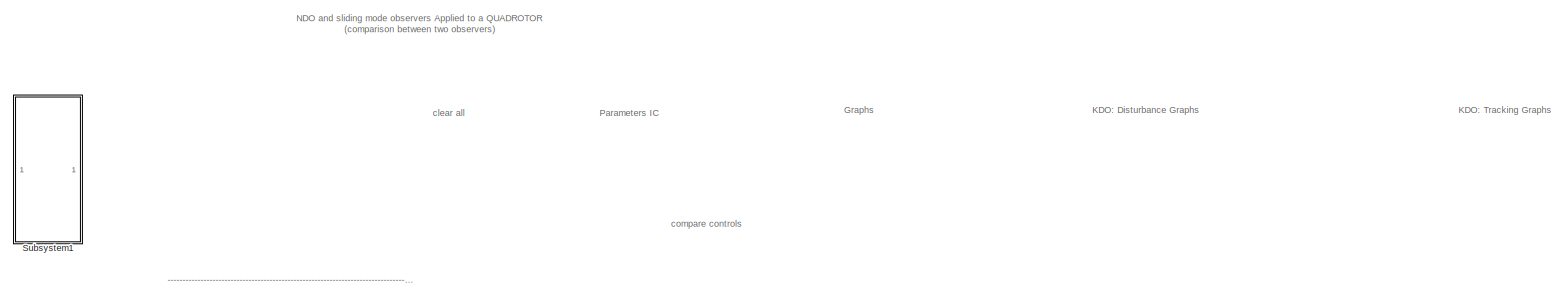
[diagram: root canvas - part 1/8, top center region]
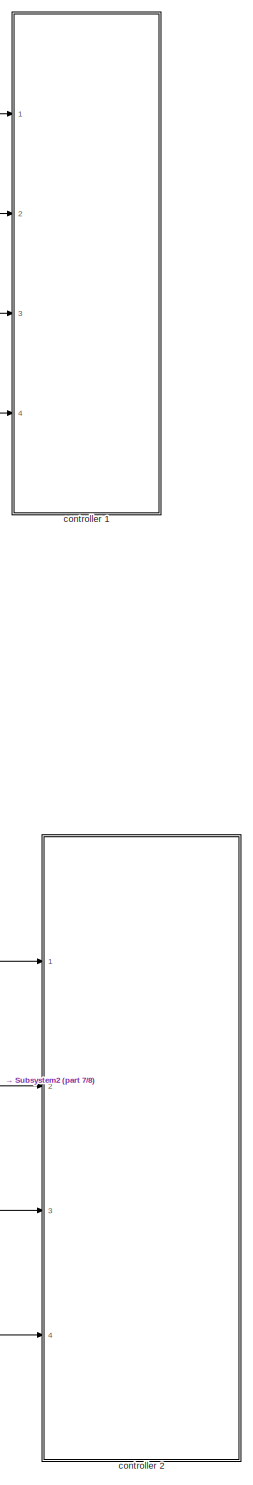
[diagram: root canvas - part 2/8, middle right region]
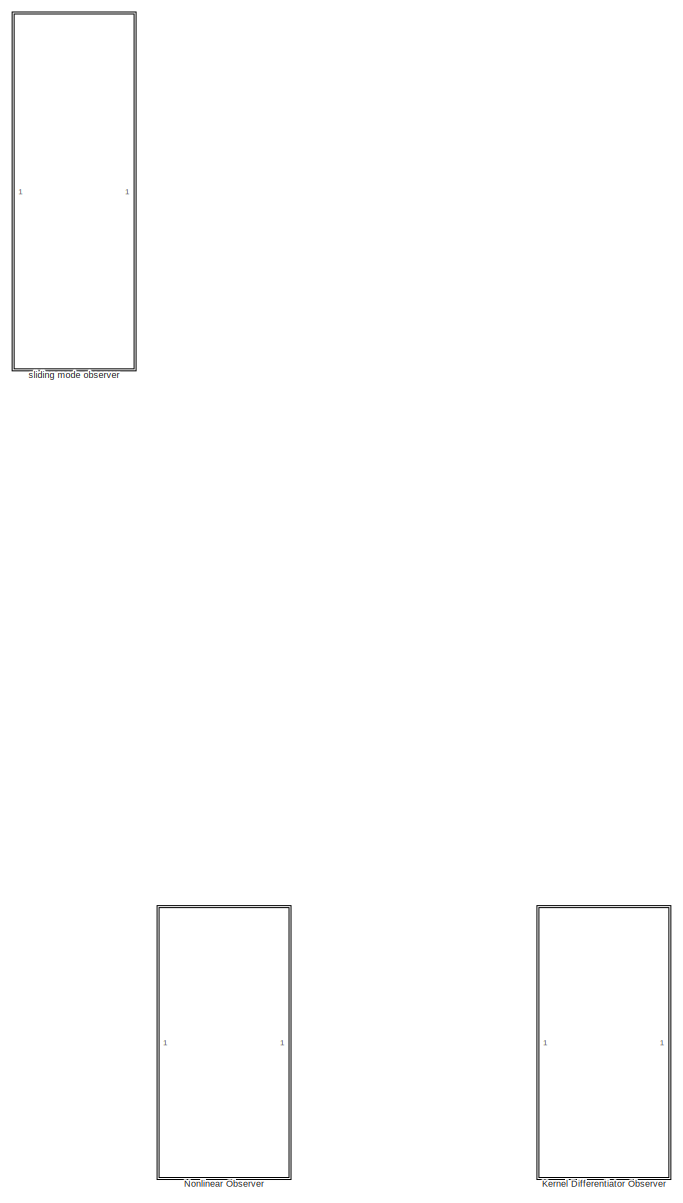
[diagram: root canvas - part 3/8, middle right region]
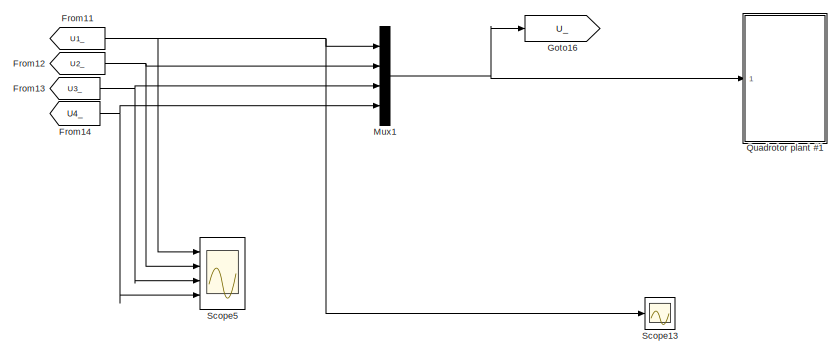
[diagram: root canvas - part 4/8, top center region]
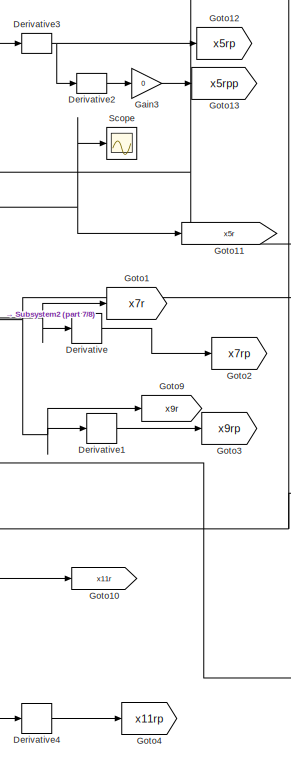
[diagram: root canvas - part 5/8, central region]
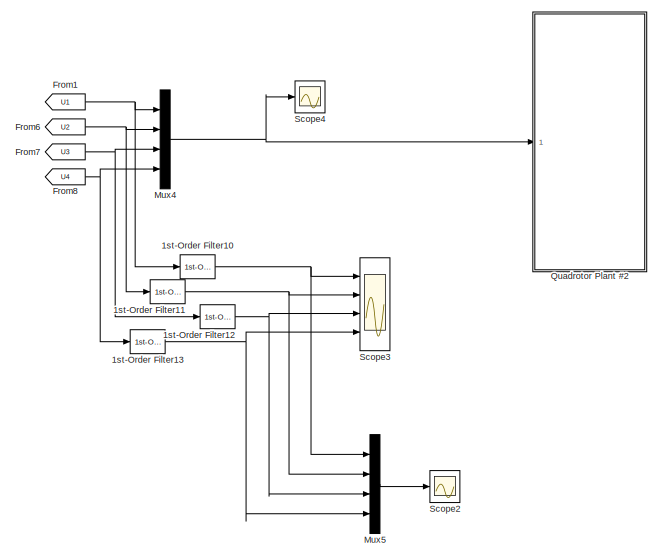
[diagram: root canvas - part 6/8, middle left region]
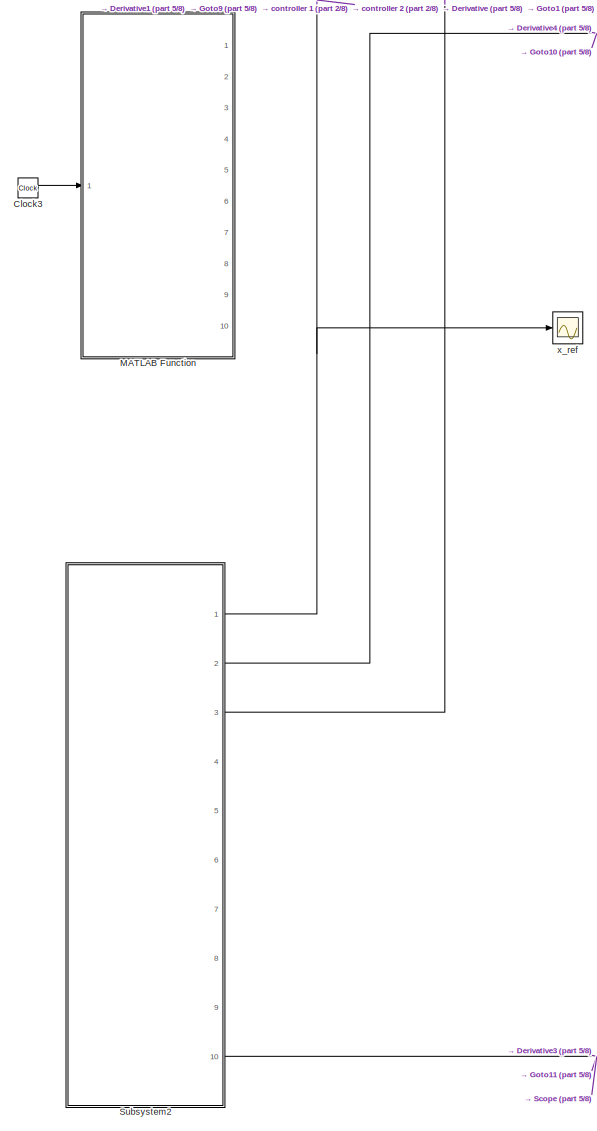
[diagram: root canvas - part 7/8, bottom center region]
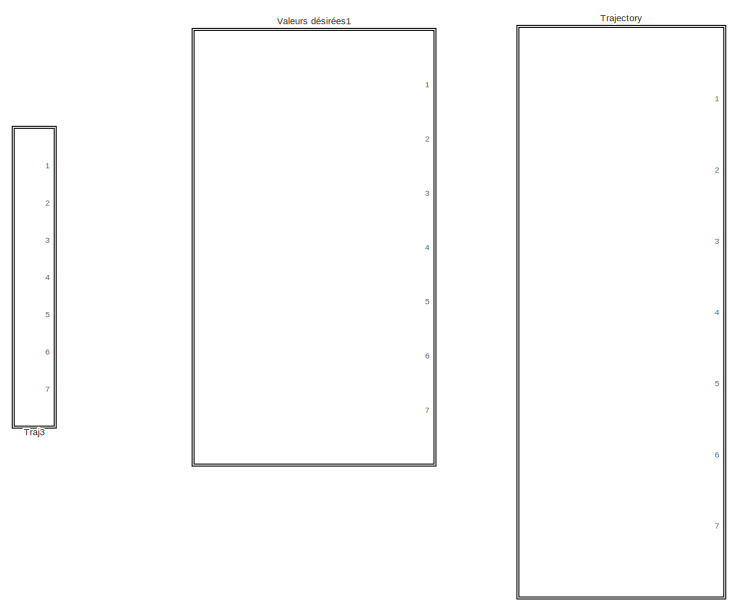
[diagram: root canvas - part 8/8, bottom left region]
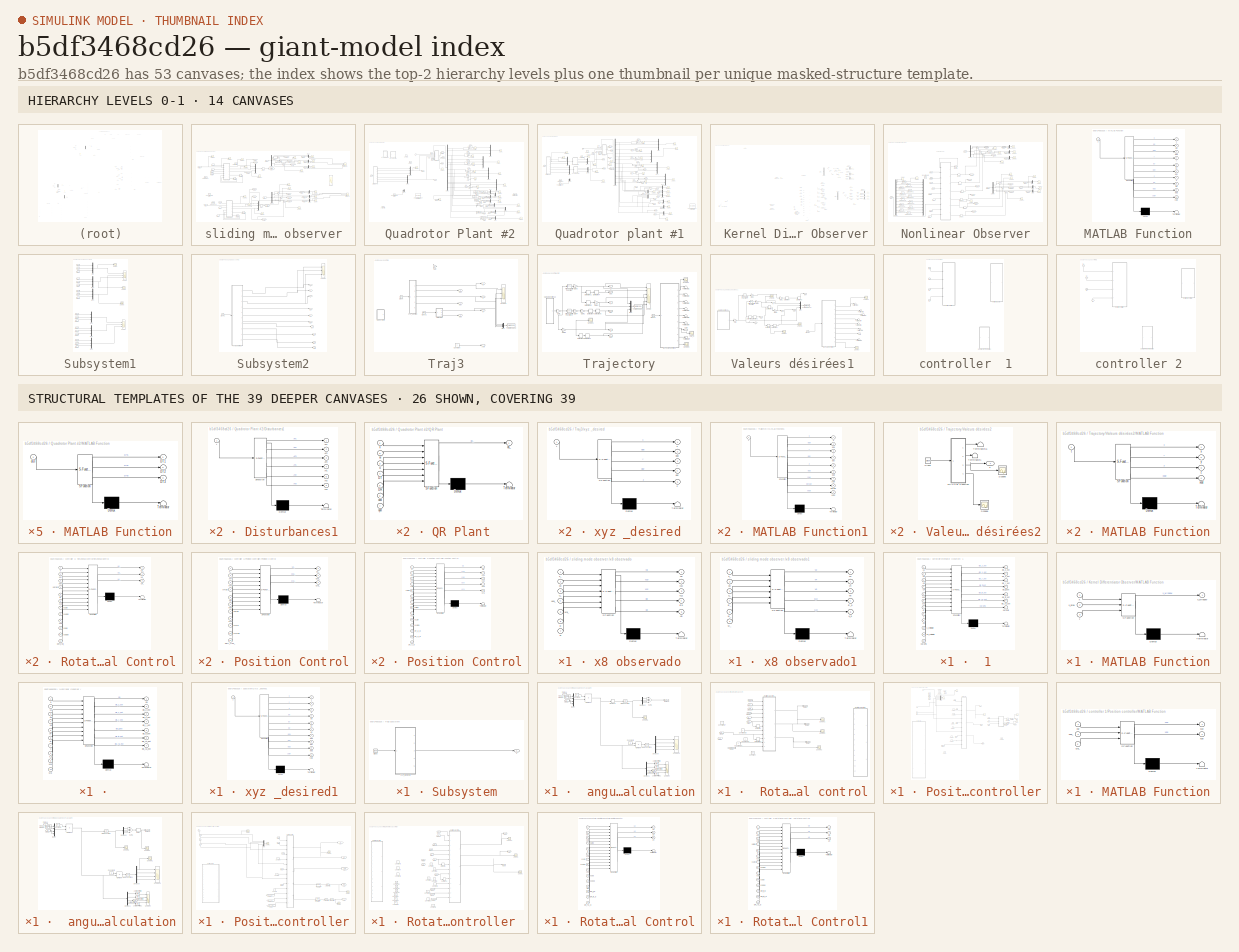
[diagram: thumbnail index - top-2 hierarchy levels (14 canvases) + 26 structural-template representatives of the remaining 39 canvases]
MODEL slx_b5df3468cd26
KIND model
CONFIG AbsTol = auto
CONFIG EnableMultiTasking = off
CONFIG FixedStep = 0.001
CONFIG MaxStep = auto
CONFIG MinStep = auto
CONFIG RelTol = 1e-3
CONFIG SampleTimeConstraint = Unconstrained
CONFIG Solver = FixedStepAuto
CONFIG SolverName = FixedStepAuto
CONFIG StartTime = 0.0
CONFIG StopTime = 100
BLOCK [SubSystem]  Kernel Differentiator Observer
  Ports = []
  RequestExecContextInheritance = off
BLOCK [SubSystem]  Kernel Differentiator Observer/ 1
  ErrorFcn = Stateflow.Translate.translate
  PermitHierarchicalResolution = ExplicitOnly
  Ports = [12, 7]
  RequestExecContextInheritance = off
  SFBlockType = MATLAB Function
  TreatAsAtomicUnit = on
BLOCK [Demux]  Kernel Differentiator Observer/ 1/ Demux 
  Outputs = 1
  Ports = [1, 1]
BLOCK [S-Function]  Kernel Differentiator Observer/ 1/ SFunction 
  EnableBusSupport = on
  FunctionName = sf_sfun
  PortCounts = [12 8]
  Ports = [12, 8]
  SFcnIsStateOwnerBlock = off
  SFunctionDeploymentMode = off
  Tag = Stateflow S-Function NDO_STO_KDO_2 33
BLOCK [Terminator]  Kernel Differentiator Observer/ 1/ Terminator 
BLOCK [Inport]  Kernel Differentiator Observer/ 1/U1
  IconDisplay = Port number
BLOCK [Inport]  Kernel Differentiator Observer/ 1/U2
  IconDisplay = Port number
  Port = 2
BLOCK [Inport]  Kernel Differentiator Observer/ 1/U3
  IconDisplay = Port number
  Port = 3
BLOCK [Inport]  Kernel Differentiator Observer/ 1/U4
  IconDisplay = Port number
  Port = 4
BLOCK [Outport]  Kernel Differentiator Observer/ 1/dis_fi_est
  IconDisplay = Port number
  Port = 4
BLOCK [Outport]  Kernel Differentiator Observer/ 1/dis_th_est
  IconDisplay = Port number
  Port = 5
BLOCK [Outport]  Kernel Differentiator Observer/ 1/dis_x_est
  IconDisplay = Port number
  Port = 2
BLOCK [Outport]  Kernel Differentiator Observer/ 1/dis_y_est
  IconDisplay = Port number
  Port = 3
BLOCK [Outport]  Kernel Differentiator Observer/ 1/dis_ya_est
  IconDisplay = Port number
  Port = 6
BLOCK [Outport]  Kernel Differentiator Observer/ 1/dis_z_est
  IconDisplay = Port number
BLOCK [Outport]  Kernel Differentiator Observer/ 1/params
  IconDisplay = Port number
  Port = 7
BLOCK [Inport]  Kernel Differentiator Observer/ 1/params 
  IconDisplay = Port number
  Port = 12
BLOCK [Inport]  Kernel Differentiator Observer/ 1/uxa
  IconDisplay = Port number
  Port = 5
BLOCK [Inport]  Kernel Differentiator Observer/ 1/uya
  IconDisplay = Port number
  Port = 6
BLOCK [Inport]  Kernel Differentiator Observer/ 1/w
  IconDisplay = Port number
  Port = 7
BLOCK [Inport]  Kernel Differentiator Observer/ 1/x
  IconDisplay = Port number
  Port = 8
BLOCK [Inport]  Kernel Differentiator Observer/ 1/x_estimate
  IconDisplay = Port number
  Port = 10
BLOCK [Inport]  Kernel Differentiator Observer/ 1/xp
  IconDisplay = Port number
  Port = 9
BLOCK [Inport]  Kernel Differentiator Observer/ 1/xp_estimate
  IconDisplay = Port number
  Port = 11
BLOCK [Clock]  Kernel Differentiator Observer/Clock
  Commented = on
BLOCK [Demux]  Kernel Differentiator Observer/Demux3
  DisplayOption = bar
  Outputs = 3
  Ports = [1, 3]
BLOCK [Demux]  Kernel Differentiator Observer/Demux4
  DisplayOption = bar
  Outputs = 3
  Ports = [1, 3]
BLOCK [FromWorkspace]  Kernel Differentiator Observer/From Workspace
  Commented = on
  SampleTime = 0
  VariableName = simin
  ZeroCross = on
BLOCK [FromWorkspace]  Kernel Differentiator Observer/From Workspace1
  VariableName = xp_timeseries
  ZeroCross = on
BLOCK [FromWorkspace]  Kernel Differentiator Observer/From Workspace2
  SampleTime = 0
  VariableName = x_timeseries
  ZeroCross = on
BLOCK [From]  Kernel Differentiator Observer/From1
  CloseFcn = tagdialog Close
  GotoTag = dis_fi_est
  TagVisibility = global
BLOCK [From]  Kernel Differentiator Observer/From2
  CloseFcn = tagdialog Close
  GotoTag = dis_th_est
  TagVisibility = global
BLOCK [From]  Kernel Differentiator Observer/From22
  CloseFcn = tagdialog Close
  GotoTag = U1
  TagVisibility = global
BLOCK [From]  Kernel Differentiator Observer/From23
  CloseFcn = tagdialog Close
  GotoTag = U2
  TagVisibility = global
BLOCK [From]  Kernel Differentiator Observer/From24
  CloseFcn = tagdialog Close
  GotoTag = U3
  TagVisibility = global
BLOCK [From]  Kernel Differentiator Observer/From25
  CloseFcn = tagdialog Close
  GotoTag = U4
  TagVisibility = global
BLOCK [From]  Kernel Differentiator Observer/From3
  CloseFcn = tagdialog Close
  GotoTag = x
  TagVisibility = global
BLOCK [From]  Kernel Differentiator Observer/From4
  CloseFcn = tagdialog Close
  GotoTag = w
  TagVisibility = global
BLOCK [From]  Kernel Differentiator Observer/From43
  CloseFcn = tagdialog Close
  GotoTag = DT
  TagVisibility = global
BLOCK [From]  Kernel Differentiator Observer/From47
  CloseFcn = tagdialog Close
  GotoTag = DR
  TagVisibility = global
BLOCK [From]  Kernel Differentiator Observer/From5
  CloseFcn = tagdialog Close
  GotoTag = dis_ya_est
  TagVisibility = global
BLOCK [From]  Kernel Differentiator Observer/From51
  CloseFcn = tagdialog Close
  GotoTag = dis_x_est
  TagVisibility = global
BLOCK [From]  Kernel Differentiator Observer/From52
  CloseFcn = tagdialog Close
  GotoTag = dis_y_est
  TagVisibility = global
BLOCK [From]  Kernel Differentiator Observer/From53
  CloseFcn = tagdialog Close
  GotoTag = dis_z_est
  TagVisibility = global
BLOCK [From]  Kernel Differentiator Observer/From54
  CloseFcn = tagdialog Close
  GotoTag = uxa
  TagVisibility = global
BLOCK [From]  Kernel Differentiator Observer/From55
  CloseFcn = tagdialog Close
  GotoTag = uya
  TagVisibility = global
BLOCK [From]  Kernel Differentiator Observer/From6
  CloseFcn = tagdialog Close
  GotoTag = xp
  TagVisibility = global
BLOCK [Goto]  Kernel Differentiator Observer/Goto14
  GotoTag = dis_z_est
  TagVisibility = global
BLOCK [Goto]  Kernel Differentiator Observer/Goto15
  GotoTag = dis_ya_est
  TagVisibility = global
BLOCK [Goto]  Kernel Differentiator Observer/Goto16
  GotoTag = dis_x_est
  TagVisibility = global
BLOCK [Goto]  Kernel Differentiator Observer/Goto17
  GotoTag = dis_th_est
  TagVisibility = global
BLOCK [Goto]  Kernel Differentiator Observer/Goto18
  GotoTag = dis_y_est
  TagVisibility = global
BLOCK [Goto]  Kernel Differentiator Observer/Goto20
  GotoTag = dis_fi_est
  TagVisibility = global
BLOCK [Goto]  Kernel Differentiator Observer/Goto23
  GotoTag = DT_Z_O_E
  TagVisibility = global
BLOCK [Goto]  Kernel Differentiator Observer/Goto27
  GotoTag = DT_X_O_E
  TagVisibility = global
BLOCK [Goto]  Kernel Differentiator Observer/Goto28
  GotoTag = DT_Y_O_E
  TagVisibility = global
BLOCK [Goto]  Kernel Differentiator Observer/Goto29
  GotoTag = DR_fi_O_E
  TagVisibility = global
BLOCK [Goto]  Kernel Differentiator Observer/Goto30
  GotoTag = DR_th_O_E
  TagVisibility = global
BLOCK [Goto]  Kernel Differentiator Observer/Goto31
  GotoTag = DR_ya_O_E
  TagVisibility = global
BLOCK [SubSystem]  Kernel Differentiator Observer/MATLAB Function
  Commented = on
  ErrorFcn = Stateflow.Translate.translate
  PermitHierarchicalResolution = ExplicitOnly
  Ports = [3, 1]
  RequestExecContextInheritance = off
  SFBlockType = MATLAB Function
  TreatAsAtomicUnit = on
BLOCK [Demux]  Kernel Differentiator Observer/MATLAB Function/ Demux 
  Outputs = 1
  Ports = [1, 1]
BLOCK [S-Function]  Kernel Differentiator Observer/MATLAB Function/ SFunction 
  EnableBusSupport = on
  FunctionName = sf_sfun
  PortCounts = [3 2]
  Ports = [3, 2]
  SFcnIsStateOwnerBlock = off
  SFunctionDeploymentMode = off
  Tag = Stateflow S-Function NDO_STO_KDO_2 32
BLOCK [Terminator]  Kernel Differentiator Observer/MATLAB Function/ Terminator 
BLOCK [Inport]  Kernel Differentiator Observer/MATLAB Function/t
  IconDisplay = Port number
  Port = 3
BLOCK [Inport]  Kernel Differentiator Observer/MATLAB Function/x
  IconDisplay = Port number
BLOCK [Inport]  Kernel Differentiator Observer/MATLAB Function/x_prev
  IconDisplay = Port number
  Port = 2
BLOCK [Outport]  Kernel Differentiator Observer/MATLAB Function/x_window
  IconDisplay = Port number
BLOCK [Memory]  Kernel Differentiator Observer/Memory
BLOCK [Memory]  Kernel Differentiator Observer/Memory1
BLOCK [Memory]  Kernel Differentiator Observer/Memory12
BLOCK [Memory]  Kernel Differentiator Observer/Memory2
BLOCK [Memory]  Kernel Differentiator Observer/Memory3
  Commented = on
  InitialCondition = zeros(51,7)
BLOCK [Memory]  Kernel Differentiator Observer/Memory4
  InitialCondition = ones(4,6)
BLOCK [Memory]  Kernel Differentiator Observer/Memory5
BLOCK [Memory]  Kernel Differentiator Observer/Memory6
BLOCK [Mux]  Kernel Differentiator Observer/Mux1
  DisplayOption = bar
  Inputs = 2
  Ports = [2, 1]
BLOCK [Mux]  Kernel Differentiator Observer/Mux12
  DisplayOption = bar
  Inputs = 2
  Ports = [2, 1]
BLOCK [Mux]  Kernel Differentiator Observer/Mux15
  DisplayOption = bar
  Inputs = 2
  Ports = [2, 1]
BLOCK [Mux]  Kernel Differentiator Observer/Mux2
  DisplayOption = bar
  Inputs = 2
  Ports = [2, 1]
BLOCK [Mux]  Kernel Differentiator Observer/Mux3
  DisplayOption = bar
  Inputs = 2
  Ports = [2, 1]
BLOCK [Mux]  Kernel Differentiator Observer/Mux8
  DisplayOption = bar
  Inputs = 2
  Ports = [2, 1]
BLOCK [Scope]  Kernel Differentiator Observer/Scope1
  Floating = off
  NumInputPorts = 1
  Ports = [1]
  ScopeSpecificationString = Simulink.scopes.TimeScopeBlockCfg('CurrentConfiguration', extmgr.ConfigurationSet(extmgr.Configuration('Core','General UI',true),extmgr.Configuration('Core','Source UI',true),extmgr.Configuration('Sources','WiredSimulink',true,'DataLoggingVariableName','ScopeData3','DataLoggingSaveFormat','Array','DataLoggingDecimation','1','DataLoggingDecimateData',true,'DataLogging',true),extmgr.Configuration('V...<+1789ch>
BLOCK [Scope]  Kernel Differentiator Observer/Scope10
  Floating = off
  NumInputPorts = 1
  Ports = [1]
  ScopeSpecificationString = Simulink.scopes.TimeScopeBlockCfg('CurrentConfiguration', extmgr.ConfigurationSet(extmgr.Configuration('Core','General UI',true),extmgr.Configuration('Core','Source UI',true),extmgr.Configuration('Sources','WiredSimulink',true,'DataLoggingVariableName','ScopeData3'),extmgr.Configuration('Visuals','Time Domain',true,'SerializedDisplays',{struct('MinYLimReal','-22.5','MaxYLimReal','22.5','YLabelReal...<+1416ch>
BLOCK [Scope]  Kernel Differentiator Observer/Scope14
  Floating = off
  NumInputPorts = 1
  Ports = [1]
  ScopeSpecificationString = Simulink.scopes.TimeScopeBlockCfg('CurrentConfiguration', extmgr.ConfigurationSet(extmgr.Configuration('Core','General UI',true),extmgr.Configuration('Core','Source UI',true),extmgr.Configuration('Sources','WiredSimulink',true,'DataLoggingVariableName','ScopeData4','DataLoggingSaveFormat','Array','DataLoggingDecimation','1','DataLoggingDecimateData',true,'DataLogging',true),extmgr.Configuration('V...<+1755ch>
BLOCK [Scope]  Kernel Differentiator Observer/Scope15
  Floating = off
  NumInputPorts = 1
  Ports = [1]
  ScopeSpecificationString = Simulink.scopes.TimeScopeBlockCfg('CurrentConfiguration', extmgr.ConfigurationSet(extmgr.Configuration('Core','General UI',true),extmgr.Configuration('Core','Source UI',true),extmgr.Configuration('Sources','WiredSimulink',true,'DataLoggingVariableName','ScopeData5','DataLoggingSaveFormat','Array','DataLoggingDecimation','1','DataLoggingDecimateData',true,'DataLogging',true),extmgr.Configuration('V...<+1755ch>
BLOCK [Scope]  Kernel Differentiator Observer/Scope16
  Floating = off
  NumInputPorts = 1
  Ports = [1]
  ScopeSpecificationString = Simulink.scopes.TimeScopeBlockCfg('CurrentConfiguration', extmgr.ConfigurationSet(extmgr.Configuration('Core','General UI',true),extmgr.Configuration('Core','Source UI',true),extmgr.Configuration('Sources','WiredSimulink',true,'DataLoggingVariableName','ScopeData6','DataLoggingSaveFormat','Array','DataLoggingDecimation','1','DataLoggingDecimateData',true,'DataLogging',true),extmgr.Configuration('V...<+1801ch>
BLOCK [Scope]  Kernel Differentiator Observer/Scope17
  Floating = off
  NumInputPorts = 1
  Ports = [1]
  ScopeSpecificationString = Simulink.scopes.TimeScopeBlockCfg('CurrentConfiguration', extmgr.ConfigurationSet(extmgr.Configuration('Core','General UI',true),extmgr.Configuration('Core','Source UI',true),extmgr.Configuration('Sources','WiredSimulink',true,'DataLoggingVariableName','ScopeData7','DataLoggingSaveFormat','Array','DataLoggingDecimation','1','DataLoggingDecimateData',true,'DataLogging',true),extmgr.Configuration('V...<+1739ch>
BLOCK [Scope]  Kernel Differentiator Observer/Scope18
  Floating = off
  NumInputPorts = 1
  Ports = [1]
  ScopeSpecificationString = Simulink.scopes.TimeScopeBlockCfg('CurrentConfiguration', extmgr.ConfigurationSet(extmgr.Configuration('Core','General UI',true),extmgr.Configuration('Core','Source UI',true),extmgr.Configuration('Sources','WiredSimulink',true,'DataLoggingVariableName','ScopeData8','DataLoggingSaveFormat','Array','DataLoggingDecimation','1','DataLoggingDecimateData',true,'DataLogging',true),extmgr.Configuration('V...<+1803ch>
BLOCK [Scope]  Kernel Differentiator Observer/Scope19
  Floating = off
  NumInputPorts = 1
  Ports = [1]
  ScopeSpecificationString = Simulink.scopes.TimeScopeBlockCfg('CurrentConfiguration', extmgr.ConfigurationSet(extmgr.Configuration('Core','General UI',true),extmgr.Configuration('Core','Source UI',true),extmgr.Configuration('Sources','WiredSimulink',true,'DataLoggingVariableName','ScopeData9','DataLoggingSaveFormat','Array','DataLoggingDecimation','1','DataLoggingDecimateData',true,'DataLogging',true),extmgr.Configuration('V...<+1774ch>
BLOCK [Scope]  Kernel Differentiator Observer/Scope2
  Floating = off
  NumInputPorts = 1
  Ports = [1]
  ScopeSpecificationString = Simulink.scopes.TimeScopeBlockCfg('CurrentConfiguration', extmgr.ConfigurationSet(extmgr.Configuration('Core','General UI',true),extmgr.Configuration('Core','Source UI',true),extmgr.Configuration('Sources','WiredSimulink',true,'DataLoggingVariableName','ScopeData10'),extmgr.Configuration('Visuals','Time Domain',true,'SerializedDisplays',{struct('MinYLimReal','-43205.21658','MaxYLimReal','319286.39...<+1478ch>
BLOCK [Scope]  Kernel Differentiator Observer/Scope20
  Floating = off
  NumInputPorts = 1
  Ports = [1]
  ScopeSpecificationString = Simulink.scopes.TimeScopeBlockCfg('CurrentConfiguration', extmgr.ConfigurationSet(extmgr.Configuration('Core','General UI',true),extmgr.Configuration('Core','Source UI',true),extmgr.Configuration('Sources','WiredSimulink',true,'DataLoggingVariableName','ScopeData11','DataLoggingSaveFormat','Array','DataLoggingDecimation','1','DataLoggingDecimateData',true,'DataLogging',true),extmgr.Configuration('...<+1744ch>
BLOCK [Scope]  Kernel Differentiator Observer/Scope21
  Floating = off
  NumInputPorts = 1
  Ports = [1]
  ScopeSpecificationString = Simulink.scopes.TimeScopeBlockCfg('CurrentConfiguration', extmgr.ConfigurationSet(extmgr.Configuration('Core','General UI',true),extmgr.Configuration('Core','Source UI',true),extmgr.Configuration('Sources','WiredSimulink',true,'DataLoggingVariableName','ScopeData12','DataLoggingSaveFormat','Array','DataLoggingDecimation','1','DataLoggingDecimateData',true,'DataLogging',true),extmgr.Configuration('...<+3324ch>
BLOCK [Scope]  Kernel Differentiator Observer/Scope22
  Floating = off
  NumInputPorts = 1
  Ports = [1]
  ScopeSpecificationString = Simulink.scopes.TimeScopeBlockCfg('CurrentConfiguration', extmgr.ConfigurationSet(extmgr.Configuration('Core','General UI',true),extmgr.Configuration('Core','Source UI',true),extmgr.Configuration('Sources','WiredSimulink',true,'DataLoggingVariableName','ScopeData13','DataLoggingSaveFormat','Array','DataLoggingDecimation','1','DataLoggingDecimateData',true,'DataLogging',true),extmgr.Configuration('...<+3348ch>
BLOCK [Scope]  Kernel Differentiator Observer/Scope3
  Floating = off
  NumInputPorts = 1
  Ports = [1]
  ScopeSpecificationString = Simulink.scopes.TimeScopeBlockCfg('CurrentConfiguration', extmgr.ConfigurationSet(extmgr.Configuration('Core','General UI',true),extmgr.Configuration('Core','Source UI',true),extmgr.Configuration('Sources','WiredSimulink',true,'DataLoggingVariableName','ScopeData14','DataLoggingSaveFormat','Array','DataLoggingDecimation','1','DataLoggingDecimateData',true,'DataLogging',true),extmgr.Configuration('...<+1791ch>
BLOCK [Scope]  Kernel Differentiator Observer/Scope4
  Floating = off
  NumInputPorts = 1
  Ports = [1]
  ScopeSpecificationString = Simulink.scopes.TimeScopeBlockCfg('CurrentConfiguration', extmgr.ConfigurationSet(extmgr.Configuration('Core','General UI',true),extmgr.Configuration('Core','Source UI',true),extmgr.Configuration('Sources','WiredSimulink',true,'DataLoggingVariableName','ScopeData15','DataLoggingSaveFormat','Array','DataLoggingDecimation','1','DataLoggingDecimateData',true,'DataLogging',true),extmgr.Configuration('...<+1784ch>
BLOCK [Scope]  Kernel Differentiator Observer/Scope5
  Commented = on
  Floating = off
  NumInputPorts = 1
  Ports = [1]
  ScopeSpecificationString = Simulink.scopes.TimeScopeBlockCfg('CurrentConfiguration', extmgr.ConfigurationSet(extmgr.Configuration('Core','General UI',true),extmgr.Configuration('Core','Source UI',true),extmgr.Configuration('Sources','WiredSimulink',true,'DataLoggingVariableName','ScopeData1','DataLoggingSaveFormat','Array','DataLoggingDecimation','1','DataLoggingDecimateData',true,'DataLogging',true),extmgr.Configuration('V...<+1743ch>
BLOCK [Sum]  Kernel Differentiator Observer/Sum
  IconShape = round
  InputSameDT = off
  Inputs = |+-
  OutDataTypeStr = Inherit: Inherit via internal rule
  Ports = [2, 1]
  SaturateOnIntegerOverflow = off
BLOCK [Sum]  Kernel Differentiator Observer/Sum2
  IconShape = round
  InputSameDT = off
  Inputs = |+-
  OutDataTypeStr = Inherit: Inherit via internal rule
  Ports = [2, 1]
  SaturateOnIntegerOverflow = off
BLOCK [Sum]  Kernel Differentiator Observer/Sum3
  IconShape = round
  InputSameDT = off
  Inputs = |+-
  OutDataTypeStr = Inherit: Inherit via internal rule
  Ports = [2, 1]
  SaturateOnIntegerOverflow = off
BLOCK [Sum]  Kernel Differentiator Observer/Sum4
  IconShape = round
  InputSameDT = off
  Inputs = |+-
  OutDataTypeStr = Inherit: Inherit via internal rule
  Ports = [2, 1]
  SaturateOnIntegerOverflow = off
BLOCK [Sum]  Kernel Differentiator Observer/Sum6
  IconShape = round
  InputSameDT = off
  Inputs = |+-
  OutDataTypeStr = Inherit: Inherit via internal rule
  Ports = [2, 1]
  SaturateOnIntegerOverflow = off
BLOCK [Sum]  Kernel Differentiator Observer/Sum7
  IconShape = round
  InputSameDT = off
  Inputs = |+-
  OutDataTypeStr = Inherit: Inherit via internal rule
  Ports = [2, 1]
  SaturateOnIntegerOverflow = off
BLOCK [ToWorkspace]  Kernel Differentiator Observer/To Workspace
  FixptAsFi = on
  MaxDataPoints = inf
  Ports = [1]
  SampleTime = -1
  Save2DSignal = 3-D array (concatenate along third dimension)
  SaveFormat = Timeseries
  VariableName = dis_z_est
BLOCK [ToWorkspace]  Kernel Differentiator Observer/To Workspace1
  FixptAsFi = on
  MaxDataPoints = inf
  Ports = [1]
  SampleTime = -1
  Save2DSignal = 3-D array (concatenate along third dimension)
  SaveFormat = Timeseries
  VariableName = dis_x_est
BLOCK [ToWorkspace]  Kernel Differentiator Observer/To Workspace10
  FixptAsFi = on
  MaxDataPoints = inf
  Ports = [1]
  SampleTime = -1
  Save2DSignal = 3-D array (concatenate along third dimension)
  SaveFormat = Timeseries
  VariableName = dis_th
BLOCK [ToWorkspace]  Kernel Differentiator Observer/To Workspace11
  FixptAsFi = on
  MaxDataPoints = inf
  Ports = [1]
  SampleTime = -1
  Save2DSignal = 3-D array (concatenate along third dimension)
  SaveFormat = Timeseries
  VariableName = dis_ya
BLOCK [ToWorkspace]  Kernel Differentiator Observer/To Workspace12
  Commented = on
  FixptAsFi = on
  MaxDataPoints = inf
  Ports = [1]
  SampleTime = -1
  Save2DSignal = 3-D array (concatenate along third dimension)
  SaveFormat = Timeseries
  VariableName = xp_timeseries
BLOCK [ToWorkspace]  Kernel Differentiator Observer/To Workspace13
  Commented = on
  FixptAsFi = on
  MaxDataPoints = inf
  Ports = [1]
  SampleTime = -1
  Save2DSignal = 3-D array (concatenate along third dimension)
  SaveFormat = Timeseries
  VariableName = x_timeseries
BLOCK [ToWorkspace]  Kernel Differentiator Observer/To Workspace2
  FixptAsFi = on
  MaxDataPoints = inf
  Ports = [1]
  SampleTime = -1
  Save2DSignal = 3-D array (concatenate along third dimension)
  SaveFormat = Timeseries
  VariableName = dis_y_est
BLOCK [ToWorkspace]  Kernel Differentiator Observer/To Workspace3
  FixptAsFi = on
  MaxDataPoints = inf
  Ports = [1]
  SampleTime = -1
  Save2DSignal = 3-D array (concatenate along third dimension)
  SaveFormat = Timeseries
  VariableName = dis_fi_est
BLOCK [ToWorkspace]  Kernel Differentiator Observer/To Workspace4
  FixptAsFi = on
  MaxDataPoints = inf
  Ports = [1]
  SampleTime = -1
  Save2DSignal = 3-D array (concatenate along third dimension)
  SaveFormat = Timeseries
  VariableName = dis_th_est
BLOCK [ToWorkspace]  Kernel Differentiator Observer/To Workspace5
  FixptAsFi = on
  MaxDataPoints = inf
  Ports = [1]
  SampleTime = -1
  Save2DSignal = 3-D array (concatenate along third dimension)
  SaveFormat = Timeseries
  VariableName = dis_ya_est
BLOCK [ToWorkspace]  Kernel Differentiator Observer/To Workspace6
  FixptAsFi = on
  MaxDataPoints = inf
  Ports = [1]
  SampleTime = -1
  Save2DSignal = 3-D array (concatenate along third dimension)
  SaveFormat = Timeseries
  VariableName = dis_z
BLOCK [ToWorkspace]  Kernel Differentiator Observer/To Workspace7
  FixptAsFi = on
  MaxDataPoints = inf
  Ports = [1]
  SampleTime = -1
  Save2DSignal = 3-D array (concatenate along third dimension)
  SaveFormat = Timeseries
  VariableName = dis_x
BLOCK [ToWorkspace]  Kernel Differentiator Observer/To Workspace8
  FixptAsFi = on
  MaxDataPoints = inf
  Ports = [1]
  SampleTime = -1
  Save2DSignal = 3-D array (concatenate along third dimension)
  SaveFormat = Timeseries
  VariableName = dis_y
BLOCK [ToWorkspace]  Kernel Differentiator Observer/To Workspace9
  FixptAsFi = on
  MaxDataPoints = inf
  Ports = [1]
  SampleTime = -1
  Save2DSignal = 3-D array (concatenate along third dimension)
  SaveFormat = Timeseries
  VariableName = dis_fi
BLOCK [SubSystem]  Nonlinear Observer 
  Commented = on
  Ports = []
  RequestExecContextInheritance = off
BLOCK [SubSystem]  Nonlinear Observer / 
  ErrorFcn = Stateflow.Translate.translate
  PermitHierarchicalResolution = ExplicitOnly
  Ports = [10, 7]
  RequestExecContextInheritance = off
  SFBlockType = MATLAB Function
  TreatAsAtomicUnit = on
BLOCK [Demux]  Nonlinear Observer / / Demux 
  Outputs = 1
  Ports = [1, 1]
BLOCK [S-Function]  Nonlinear Observer / / SFunction 
  EnableBusSupport = on
  FunctionName = sf_sfun
  PortCounts = [10 8]
  Ports = [10, 8]
  SFcnIsStateOwnerBlock = off
  SFunctionDeploymentMode = off
  Tag = Stateflow S-Function NDO_STO_KDO_2 11
BLOCK [Terminator]  Nonlinear Observer / / Terminator 
BLOCK [Inport]  Nonlinear Observer / /U1
  IconDisplay = Port number
  Port = 2
BLOCK [Inport]  Nonlinear Observer / /U2
  IconDisplay = Port number
  Port = 3
BLOCK [Inport]  Nonlinear Observer / /U3
  IconDisplay = Port number
  Port = 4
BLOCK [Inport]  Nonlinear Observer / /U4
  IconDisplay = Port number
  Port = 5
BLOCK [Outport]  Nonlinear Observer / /dis_fi_est
  IconDisplay = Port number
  Port = 5
BLOCK [Outport]  Nonlinear Observer / /dis_th_est
  IconDisplay = Port number
  Port = 6
BLOCK [Outport]  Nonlinear Observer / /dis_x_est
  IconDisplay = Port number
  Port = 3
BLOCK [Outport]  Nonlinear Observer / /dis_y_est
  IconDisplay = Port number
  Port = 4
BLOCK [Outport]  Nonlinear Observer / /dis_ya_est
  IconDisplay = Port number
  Port = 7
BLOCK [Outport]  Nonlinear Observer / /dis_z_est
  IconDisplay = Port number
  Port = 2
BLOCK [Outport]  Nonlinear Observer / /dp
  IconDisplay = Port number
BLOCK [Inport]  Nonlinear Observer / /p
  IconDisplay = Port number
BLOCK [Inport]  Nonlinear Observer / /uxa
  IconDisplay = Port number
  Port = 9
BLOCK [Inport]  Nonlinear Observer / /uya
  IconDisplay = Port number
  Port = 10
BLOCK [Inport]  Nonlinear Observer / /w
  IconDisplay = Port number
  Port = 6
BLOCK [Inport]  Nonlinear Observer / /x
  IconDisplay = Port number
  Port = 7
BLOCK [Inport]  Nonlinear Observer / /x_p
  IconDisplay = Port number
  Port = 8
BLOCK [Reference]  Nonlinear Observer /AWGN Channel  REF=commchan3/AWGN
Channel
  Ports = [1, 1]
  SourceBlock = commchan3/AWGN\nChannel
  SourceProductBaseCode = CM
  SourceProductName = Communications Toolbox
  SourceType = AWGN Channel
  UserDataPersistent = on
BLOCK [Reference]  Nonlinear Observer /AWGN Channel1  REF=commchan3/AWGN
Channel
  Ports = [1, 1]
  SourceBlock = commchan3/AWGN\nChannel
  SourceProductBaseCode = CM
  SourceProductName = Communications Toolbox
  SourceType = AWGN Channel
  UserDataPersistent = on
BLOCK [Reference]  Nonlinear Observer /AWGN Channel10  REF=commchan3/AWGN
Channel
  Ports = [1, 1]
  SourceBlock = commchan3/AWGN\nChannel
  SourceProductBaseCode = CM
  SourceProductName = Communications Toolbox
  SourceType = AWGN Channel
  UserDataPersistent = on
BLOCK [Reference]  Nonlinear Observer /AWGN Channel11  REF=commchan3/AWGN
Channel
  Ports = [1, 1]
  SourceBlock = commchan3/AWGN\nChannel
  SourceProductBaseCode = CM
  SourceProductName = Communications Toolbox
  SourceType = AWGN Channel
  UserDataPersistent = on
BLOCK [Reference]  Nonlinear Observer /AWGN Channel2  REF=commchan3/AWGN
Channel
  Ports = [1, 1]
  SourceBlock = commchan3/AWGN\nChannel
  SourceProductBaseCode = CM
  SourceProductName = Communications Toolbox
  SourceType = AWGN Channel
  UserDataPersistent = on
BLOCK [Reference]  Nonlinear Observer /AWGN Channel3  REF=commchan3/AWGN
Channel
  Ports = [1, 1]
  SourceBlock = commchan3/AWGN\nChannel
  SourceProductBaseCode = CM
  SourceProductName = Communications Toolbox
  SourceType = AWGN Channel
  UserDataPersistent = on
BLOCK [Reference]  Nonlinear Observer /AWGN Channel4  REF=commchan3/AWGN
Channel
  Ports = [1, 1]
  SourceBlock = commchan3/AWGN\nChannel
  SourceProductBaseCode = CM
  SourceProductName = Communications Toolbox
  SourceType = AWGN Channel
  UserDataPersistent = on
BLOCK [Reference]  Nonlinear Observer /AWGN Channel5  REF=commchan3/AWGN
Channel
  Ports = [1, 1]
  SourceBlock = commchan3/AWGN\nChannel
  SourceProductBaseCode = CM
  SourceProductName = Communications Toolbox
  SourceType = AWGN Channel
  UserDataPersistent = on
BLOCK [Reference]  Nonlinear Observer /AWGN Channel6  REF=commchan3/AWGN
Channel
  Ports = [1, 1]
  SourceBlock = commchan3/AWGN\nChannel
  SourceProductBaseCode = CM
  SourceProductName = Communications Toolbox
  SourceType = AWGN Channel
  UserDataPersistent = on
BLOCK [Reference]  Nonlinear Observer /AWGN Channel7  REF=commchan3/AWGN
Channel
  Ports = [1, 1]
  SourceBlock = commchan3/AWGN\nChannel
  SourceProductBaseCode = CM
  SourceProductName = Communications Toolbox
  SourceType = AWGN Channel
  UserDataPersistent = on
BLOCK [Reference]  Nonlinear Observer /AWGN Channel8  REF=commchan3/AWGN
Channel
  Ports = [1, 1]
  SourceBlock = commchan3/AWGN\nChannel
  SourceProductBaseCode = CM
  SourceProductName = Communications Toolbox
  SourceType = AWGN Channel
  UserDataPersistent = on
BLOCK [Reference]  Nonlinear Observer /AWGN Channel9  REF=commchan3/AWGN
Channel
  Ports = [1, 1]
  SourceBlock = commchan3/AWGN\nChannel
  SourceProductBaseCode = CM
  SourceProductName = Communications Toolbox
  SourceType = AWGN Channel
  UserDataPersistent = on
BLOCK [Reference]  Nonlinear Observer /Band-Limited White Noise  REF=simulink/Sources/Band-Limited
White Noise
  Ports = [0, 1]
  SourceBlock = simulink/Sources/Band-Limited\nWhite Noise
  SourceProductBaseCode = SL
  SourceProductName = Simulink
  SourceType = Band-Limited White Noise.
BLOCK [Demux]  Nonlinear Observer /Demux
  DisplayOption = bar
  Outputs = 12
  Ports = [1, 12]
BLOCK [Demux]  Nonlinear Observer /Demux3
  DisplayOption = bar
  Outputs = 3
  Ports = [1, 3]
BLOCK [Demux]  Nonlinear Observer /Demux4
  DisplayOption = bar
  Outputs = 3
  Ports = [1, 3]
BLOCK [From]  Nonlinear Observer /From1
  CloseFcn = tagdialog Close
  GotoTag = dis_fi_est
  TagVisibility = global
BLOCK [From]  Nonlinear Observer /From2
  CloseFcn = tagdialog Close
  GotoTag = dis_th_est
  TagVisibility = global
BLOCK [From]  Nonlinear Observer /From21
  CloseFcn = tagdialog Close
  GotoTag = x
  TagVisibility = global
BLOCK [From]  Nonlinear Observer /From22
  CloseFcn = tagdialog Close
  GotoTag = U1
  TagVisibility = global
BLOCK [From]  Nonlinear Observer /From23
  CloseFcn = tagdialog Close
  GotoTag = U2
  TagVisibility = global
BLOCK [From]  Nonlinear Observer /From24
  CloseFcn = tagdialog Close
  GotoTag = U3
  TagVisibility = global
BLOCK [From]  Nonlinear Observer /From25
  CloseFcn = tagdialog Close
  GotoTag = U4
  TagVisibility = global
BLOCK [From]  Nonlinear Observer /From28
  CloseFcn = tagdialog Close
  GotoTag = w
  TagVisibility = global
BLOCK [From]  Nonlinear Observer /From3
  CloseFcn = tagdialog Close
  GotoTag = dis_ya_est
  TagVisibility = global
BLOCK [From]  Nonlinear Observer /From4
  CloseFcn = tagdialog Close
  GotoTag = xp
  TagVisibility = global
BLOCK [From]  Nonlinear Observer /From43
  CloseFcn = tagdialog Close
  GotoTag = DT
  TagVisibility = global
BLOCK [From]  Nonlinear Observer /From47
  CloseFcn = tagdialog Close
  GotoTag = DR
  TagVisibility = global
BLOCK [From]  Nonlinear Observer /From51
  CloseFcn = tagdialog Close
  GotoTag = dis_x_est
  TagVisibility = global
BLOCK [From]  Nonlinear Observer /From52
  CloseFcn = tagdialog Close
  GotoTag = dis_y_est
  TagVisibility = global
BLOCK [From]  Nonlinear Observer /From53
  CloseFcn = tagdialog Close
  GotoTag = dis_z_est
  TagVisibility = global
BLOCK [From]  Nonlinear Observer /From54
  CloseFcn = tagdialog Close
  GotoTag = uxa
  TagVisibility = global
BLOCK [From]  Nonlinear Observer /From55
  CloseFcn = tagdialog Close
  GotoTag = uya
  TagVisibility = global
BLOCK [Goto]  Nonlinear Observer /Goto14
  GotoTag = dis_z_est
  TagVisibility = global
BLOCK [Goto]  Nonlinear Observer /Goto15
  GotoTag = dis_ya_est
  TagVisibility = global
BLOCK [Goto]  Nonlinear Observer /Goto16
  GotoTag = dis_x_est
  TagVisibility = global
BLOCK [Goto]  Nonlinear Observer /Goto17
  GotoTag = dis_th_est
  TagVisibility = global
BLOCK [Goto]  Nonlinear Observer /Goto18
  GotoTag = dis_y_est
  TagVisibility = global
BLOCK [Goto]  Nonlinear Observer /Goto20
  GotoTag = dis_fi_est
  TagVisibility = global
BLOCK [Goto]  Nonlinear Observer /Goto23
  GotoTag = DT_Z_O_E
  TagVisibility = global
BLOCK [Goto]  Nonlinear Observer /Goto27
  GotoTag = DT_X_O_E
  TagVisibility = global
BLOCK [Goto]  Nonlinear Observer /Goto28
  GotoTag = DT_Y_O_E
  TagVisibility = global
BLOCK [Goto]  Nonlinear Observer /Goto29
  GotoTag = DR_fi_O_E
  TagVisibility = global
BLOCK [Goto]  Nonlinear Observer /Goto30
  GotoTag = DR_th_O_E
  TagVisibility = global
BLOCK [Goto]  Nonlinear Observer /Goto31
  GotoTag = DR_ya_O_E
  TagVisibility = global
BLOCK [Integrator]  Nonlinear Observer /Integrator1
  InitialCondition = [0 0 0 0 0 0];
  Ports = [1, 1]
BLOCK [Memory]  Nonlinear Observer /Memory
BLOCK [Memory]  Nonlinear Observer /Memory1
BLOCK [Memory]  Nonlinear Observer /Memory12
BLOCK [Memory]  Nonlinear Observer /Memory2
BLOCK [Memory]  Nonlinear Observer /Memory5
BLOCK [Memory]  Nonlinear Observer /Memory6
BLOCK [Mux]  Nonlinear Observer /Mux
  DisplayOption = bar
  Inputs = 12
  Ports = [12, 1]
BLOCK [Mux]  Nonlinear Observer /Mux1
  DisplayOption = bar
  Inputs = 2
  Ports = [2, 1]
BLOCK [Mux]  Nonlinear Observer /Mux12
  DisplayOption = bar
  Inputs = 2
  Ports = [2, 1]
BLOCK [Mux]  Nonlinear Observer /Mux15
  DisplayOption = bar
  Inputs = 2
  Ports = [2, 1]
BLOCK [Mux]  Nonlinear Observer /Mux2
  DisplayOption = bar
  Inputs = 2
  Ports = [2, 1]
BLOCK [Mux]  Nonlinear Observer /Mux3
  DisplayOption = bar
  Inputs = 2
  Ports = [2, 1]
BLOCK [Mux]  Nonlinear Observer /Mux8
  DisplayOption = bar
  Inputs = 2
  Ports = [2, 1]
BLOCK [Scope]  Nonlinear Observer /Scope1
  Floating = off
  NumInputPorts = 1
  Ports = [1]
  ScopeSpecificationString = Simulink.scopes.TimeScopeBlockCfg('CurrentConfiguration', extmgr.ConfigurationSet(extmgr.Configuration('Core','General UI',true),extmgr.Configuration('Core','Source UI',true),extmgr.Configuration('Sources','WiredSimulink',true,'DataLoggingVariableName','thn','DataLoggingSaveFormat','Array','DataLoggingDecimation','1','DataLoggingDecimateData',true,'DataLogging',true),extmgr.Configuration('Visuals'...<+1762ch>
BLOCK [Scope]  Nonlinear Observer /Scope14
  Floating = off
  NumInputPorts = 1
  Ports = [1]
  ScopeSpecificationString = Simulink.scopes.TimeScopeBlockCfg('CurrentConfiguration', extmgr.ConfigurationSet(extmgr.Configuration('Core','General UI',true),extmgr.Configuration('Core','Source UI',true),extmgr.Configuration('Sources','WiredSimulink',true,'DataLoggingVariableName','xn','DataLoggingSaveFormat','Array','DataLoggingDecimation','1','DataLoggingDecimateData',true,'DataLogging',true),extmgr.Configuration('Visuals',...<+1747ch>
BLOCK [Scope]  Nonlinear Observer /Scope15
  Floating = off
  NumInputPorts = 1
  Ports = [1]
  ScopeSpecificationString = Simulink.scopes.TimeScopeBlockCfg('CurrentConfiguration', extmgr.ConfigurationSet(extmgr.Configuration('Core','General UI',true),extmgr.Configuration('Core','Source UI',true),extmgr.Configuration('Sources','WiredSimulink',true,'DataLoggingVariableName','yn','DataLoggingSaveFormat','Array','DataLoggingDecimation','1','DataLoggingDecimateData',true,'DataLogging',true),extmgr.Configuration('Visuals',...<+1751ch>
BLOCK [Scope]  Nonlinear Observer /Scope16
  Floating = off
  NumInputPorts = 1
  Ports = [1]
  ScopeSpecificationString = Simulink.scopes.TimeScopeBlockCfg('CurrentConfiguration', extmgr.ConfigurationSet(extmgr.Configuration('Core','General UI',true),extmgr.Configuration('Core','Source UI',true),extmgr.Configuration('Sources','WiredSimulink',true,'DataLoggingVariableName','zn','DataLoggingSaveFormat','Array','DataLoggingDecimation','1','DataLoggingDecimateData',true,'DataLogging',true),extmgr.Configuration('Visuals',...<+1792ch>
BLOCK [Scope]  Nonlinear Observer /Scope17
  Floating = off
  NumInputPorts = 1
  Ports = [1]
  ScopeSpecificationString = Simulink.scopes.TimeScopeBlockCfg('CurrentConfiguration', extmgr.ConfigurationSet(extmgr.Configuration('Core','General UI',true),extmgr.Configuration('Core','Source UI',true),extmgr.Configuration('Sources','WiredSimulink',true,'DataLoggingVariableName','zest','DataLoggingSaveFormat','Array','DataLoggingDecimation','1','DataLoggingDecimateData',true,'DataLogging',true),extmgr.Configuration('Visuals...<+1734ch>
BLOCK [Scope]  Nonlinear Observer /Scope18
  Floating = off
  NumInputPorts = 1
  Ports = [1]
  ScopeSpecificationString = Simulink.scopes.TimeScopeBlockCfg('CurrentConfiguration', extmgr.ConfigurationSet(extmgr.Configuration('Core','General UI',true),extmgr.Configuration('Core','Source UI',true),extmgr.Configuration('Sources','WiredSimulink',true,'DataLoggingVariableName','fiest','DataLoggingSaveFormat','Array','DataLoggingDecimation','1','DataLoggingDecimateData',true,'DataLogging',true),extmgr.Configuration('Visual...<+1737ch>
BLOCK [Scope]  Nonlinear Observer /Scope19
  Floating = off
  NumInputPorts = 1
  Ports = [1]
  ScopeSpecificationString = Simulink.scopes.TimeScopeBlockCfg('CurrentConfiguration', extmgr.ConfigurationSet(extmgr.Configuration('Core','General UI',true),extmgr.Configuration('Core','Source UI',true),extmgr.Configuration('Sources','WiredSimulink',true,'DataLoggingVariableName','thetest','DataLoggingSaveFormat','Array','DataLoggingDecimation','1','DataLoggingDecimateData',true,'DataLogging',true),extmgr.Configuration('Visu...<+1738ch>
BLOCK [Scope]  Nonlinear Observer /Scope2
  Floating = off
  NumInputPorts = 1
  Ports = [1]
  ScopeSpecificationString = Simulink.scopes.TimeScopeBlockCfg('CurrentConfiguration', extmgr.ConfigurationSet(extmgr.Configuration('Core','General UI',true),extmgr.Configuration('Core','Source UI',true),extmgr.Configuration('Sources','WiredSimulink',true,'DataLoggingVariableName','ScopeData1'),extmgr.Configuration('Visuals','Time Domain',true,'SerializedDisplays',{struct('MinYLimReal','-45.34366','MaxYLimReal','50.45231','YL...<+1450ch>
BLOCK [Scope]  Nonlinear Observer /Scope20
  Floating = off
  NumInputPorts = 1
  Ports = [1]
  ScopeSpecificationString = Simulink.scopes.TimeScopeBlockCfg('CurrentConfiguration', extmgr.ConfigurationSet(extmgr.Configuration('Core','General UI',true),extmgr.Configuration('Core','Source UI',true),extmgr.Configuration('Sources','WiredSimulink',true,'DataLoggingVariableName','yaest','DataLoggingSaveFormat','Array','DataLoggingDecimation','1','DataLoggingDecimateData',true,'DataLogging',true),extmgr.Configuration('Visual...<+1742ch>
BLOCK [Scope]  Nonlinear Observer /Scope21
  Floating = off
  NumInputPorts = 1
  Ports = [1]
  ScopeSpecificationString = Simulink.scopes.TimeScopeBlockCfg('CurrentConfiguration', extmgr.ConfigurationSet(extmgr.Configuration('Core','General UI',true),extmgr.Configuration('Core','Source UI',true),extmgr.Configuration('Sources','WiredSimulink',true,'DataLoggingVariableName','xest','DataLoggingSaveFormat','Array','DataLoggingDecimation','1','DataLoggingDecimateData',true,'DataLogging',true),extmgr.Configuration('Visuals...<+1735ch>
BLOCK [Scope]  Nonlinear Observer /Scope22
  Floating = off
  NumInputPorts = 1
  Ports = [1]
  ScopeSpecificationString = Simulink.scopes.TimeScopeBlockCfg('CurrentConfiguration', extmgr.ConfigurationSet(extmgr.Configuration('Core','General UI',true),extmgr.Configuration('Core','Source UI',true),extmgr.Configuration('Sources','WiredSimulink',true,'DataLoggingVariableName','yest','DataLoggingSaveFormat','Array','DataLoggingDecimation','1','DataLoggingDecimateData',true,'DataLogging',true),extmgr.Configuration('Visuals...<+1735ch>
BLOCK [Scope]  Nonlinear Observer /Scope3
  Floating = off
  NumInputPorts = 1
  Ports = [1]
  ScopeSpecificationString = Simulink.scopes.TimeScopeBlockCfg('CurrentConfiguration', extmgr.ConfigurationSet(extmgr.Configuration('Core','General UI',true),extmgr.Configuration('Core','Source UI',true),extmgr.Configuration('Sources','WiredSimulink',true,'DataLoggingVariableName','fin','DataLoggingSaveFormat','Array','DataLoggingDecimation','1','DataLoggingDecimateData',true,'DataLogging',true),extmgr.Configuration('Visuals'...<+1763ch>
BLOCK [Scope]  Nonlinear Observer /Scope4
  Floating = off
  NumInputPorts = 1
  Ports = [1]
  ScopeSpecificationString = Simulink.scopes.TimeScopeBlockCfg('CurrentConfiguration', extmgr.ConfigurationSet(extmgr.Configuration('Core','General UI',true),extmgr.Configuration('Core','Source UI',true),extmgr.Configuration('Sources','WiredSimulink',true,'DataLoggingVariableName','yan','DataLoggingSaveFormat','Array','DataLoggingDecimation','1','DataLoggingDecimateData',true,'DataLogging',true),extmgr.Configuration('Visuals'...<+1762ch>
BLOCK [Scope]  Nonlinear Observer /Scope5
  Floating = off
  NumInputPorts = 1
  Ports = [1]
  ScopeSpecificationString = Simulink.scopes.TimeScopeBlockCfg('CurrentConfiguration', extmgr.ConfigurationSet(extmgr.Configuration('Core','General UI',true),extmgr.Configuration('Core','Source UI',true),extmgr.Configuration('Sources','WiredSimulink',true,'DataLoggingVariableName','ScopeData1'),extmgr.Configuration('Visuals','Time Domain',true,'SerializedDisplays',{struct('MinYLimReal','-1.46306','MaxYLimReal','1.55354','YLab...<+1444ch>
BLOCK [Scope]  Nonlinear Observer /Scope6
  Floating = off
  NumInputPorts = 1
  Ports = [1]
  ScopeSpecificationString = Simulink.scopes.TimeScopeBlockCfg('CurrentConfiguration', extmgr.ConfigurationSet(extmgr.Configuration('Core','General UI',true),extmgr.Configuration('Core','Source UI',true),extmgr.Configuration('Sources','WiredSimulink',true,'DataLoggingVariableName','ScopeData2'),extmgr.Configuration('Visuals','Time Domain',true,'SerializedDisplays',{struct('MinYLimReal','-1.42708','MaxYLimReal','1.44852','YLab...<+1440ch>
BLOCK [Scope]  Nonlinear Observer /Scope7
  Floating = off
  NumInputPorts = 1
  Ports = [1]
  ScopeSpecificationString = Simulink.scopes.TimeScopeBlockCfg('CurrentConfiguration', extmgr.ConfigurationSet(extmgr.Configuration('Core','General UI',true),extmgr.Configuration('Core','Source UI',true),extmgr.Configuration('Sources','WiredSimulink',true,'DataLoggingVariableName','nbnb','DataLoggingSaveFormat','Array','DataLoggingDecimation','1','DataLoggingDecimateData',true,'DataLogging',true),extmgr.Configuration('Visuals...<+1772ch>
BLOCK [Sum]  Nonlinear Observer /Sum
  IconShape = round
  InputSameDT = off
  Inputs = |+-
  OutDataTypeStr = Inherit: Inherit via internal rule
  Ports = [2, 1]
  SaturateOnIntegerOverflow = off
BLOCK [Sum]  Nonlinear Observer /Sum2
  IconShape = round
  InputSameDT = off
  Inputs = |+-
  OutDataTypeStr = Inherit: Inherit via internal rule
  Ports = [2, 1]
  SaturateOnIntegerOverflow = off
BLOCK [Sum]  Nonlinear Observer /Sum3
  IconShape = round
  InputSameDT = off
  Inputs = |+-
  OutDataTypeStr = Inherit: Inherit via internal rule
  Ports = [2, 1]
  SaturateOnIntegerOverflow = off
BLOCK [Sum]  Nonlinear Observer /Sum4
  IconShape = round
  InputSameDT = off
  Inputs = |+-
  OutDataTypeStr = Inherit: Inherit via internal rule
  Ports = [2, 1]
  SaturateOnIntegerOverflow = off
BLOCK [Sum]  Nonlinear Observer /Sum6
  IconShape = round
  InputSameDT = off
  Inputs = |+-
  OutDataTypeStr = Inherit: Inherit via internal rule
  Ports = [2, 1]
  SaturateOnIntegerOverflow = off
BLOCK [Sum]  Nonlinear Observer /Sum7
  IconShape = round
  InputSameDT = off
  Inputs = |+-
  OutDataTypeStr = Inherit: Inherit via internal rule
  Ports = [2, 1]
  SaturateOnIntegerOverflow = off
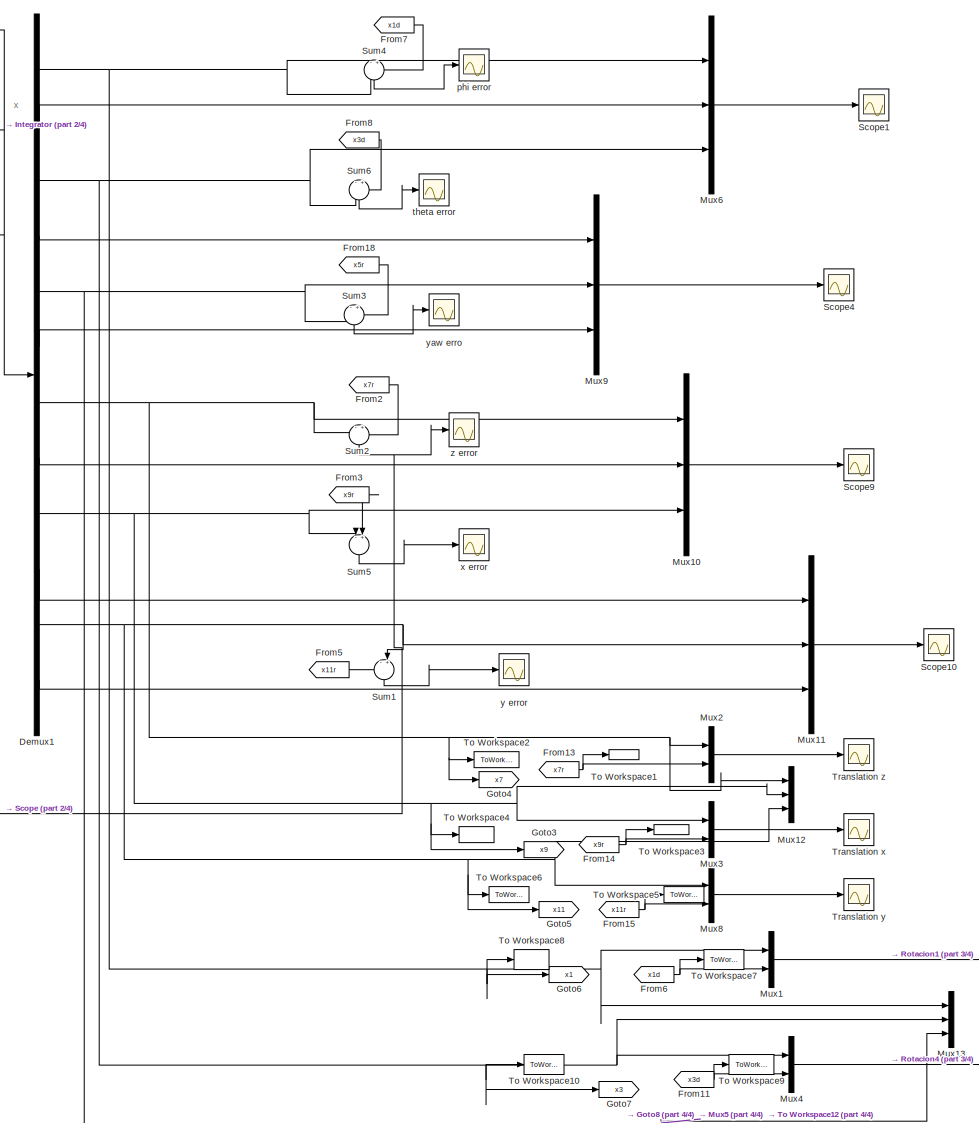
[diagram:  Quadrotor Plant #2 - part 1/4, right side, full height]
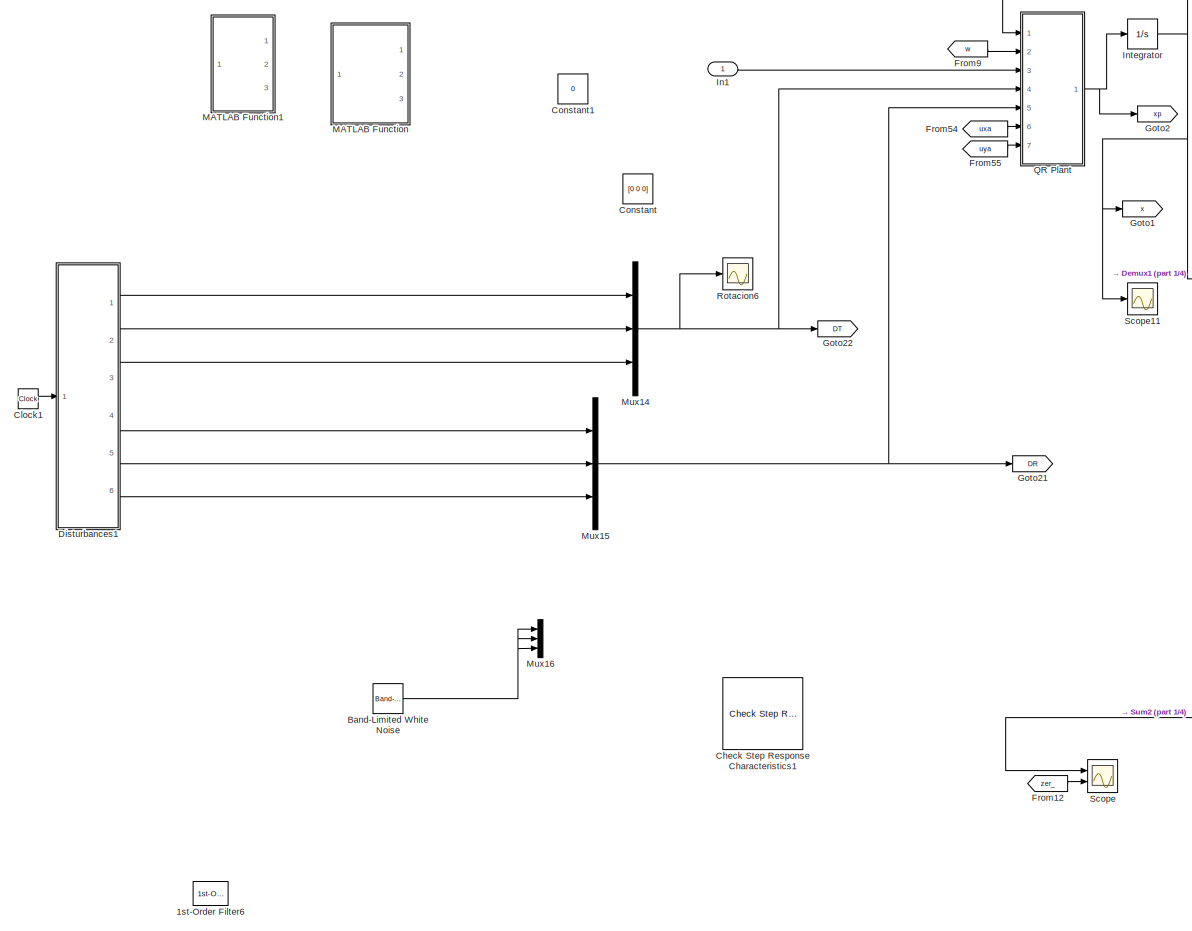
[diagram:  Quadrotor Plant #2 - part 2/4, left side, full height]
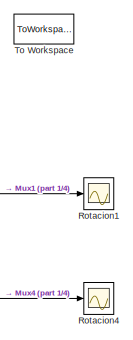
[diagram:  Quadrotor Plant #2 - part 3/4, bottom right region]
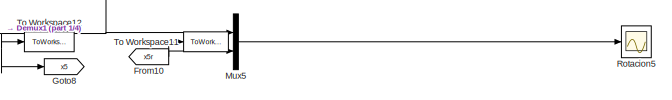
[diagram:  Quadrotor Plant #2 - part 4/4, bottom right region]
BLOCK [SubSystem]  Quadrotor Plant #2
  Ports = [1]
  RequestExecContextInheritance = off
BLOCK [Reference]  Quadrotor Plant #2/1st-Order Filter6  REF=powerlib_extras/Control 
Blocks/1st-Order 
Filter
  Ports = [1, 1]
  SourceBlock = powerlib_extras/Control \nBlocks/1st-Order \nFilter
  SourceType = First-Order Filter
BLOCK [Reference]  Quadrotor Plant #2/Band-Limited White Noise  REF=simulink/Sources/Band-Limited
White Noise
  Ports = [0, 1]
  SourceBlock = simulink/Sources/Band-Limited\nWhite Noise
  SourceProductBaseCode = SL
  SourceProductName = Simulink
  SourceType = Band-Limited White Noise.
BLOCK [Reference]  Quadrotor Plant #2/Check Step Response Characteristics1  REF=checkpacklib/Check Step Response 
Characteristics
  InstantiateOnLoad = on
  Ports = [1]
  SourceBlock = checkpacklib/Check Step Response \nCharacteristics
  SourceType = Checks_StepResponse
BLOCK [Clock]  Quadrotor Plant #2/Clock1
BLOCK [Constant]  Quadrotor Plant #2/Constant
  Value = [0 0 0]
BLOCK [Constant]  Quadrotor Plant #2/Constant1
  Value = 0
BLOCK [Demux]  Quadrotor Plant #2/Demux1
  DisplayOption = bar
  Outputs = 12
  Ports = [1, 12]
BLOCK [SubSystem]  Quadrotor Plant #2/Disturbances1
  ErrorFcn = Stateflow.Translate.translate
  PermitHierarchicalResolution = ExplicitOnly
  Ports = [1, 6]
  RequestExecContextInheritance = off
  SFBlockType = MATLAB Function
  TreatAsAtomicUnit = on
BLOCK [Demux]  Quadrotor Plant #2/Disturbances1/ Demux 
  Outputs = 1
  Ports = [1, 1]
BLOCK [S-Function]  Quadrotor Plant #2/Disturbances1/ SFunction 
  EnableBusSupport = on
  FunctionName = sf_sfun
  PortCounts = [1 7]
  Ports = [1, 7]
  SFcnIsStateOwnerBlock = off
  SFunctionDeploymentMode = off
  Tag = Stateflow S-Function NDO_STO_KDO_2 7
BLOCK [Terminator]  Quadrotor Plant #2/Disturbances1/ Terminator 
BLOCK [Outport]  Quadrotor Plant #2/Disturbances1/AF1
  IconDisplay = Port number
BLOCK [Outport]  Quadrotor Plant #2/Disturbances1/AF2
  IconDisplay = Port number
  Port = 2
BLOCK [Outport]  Quadrotor Plant #2/Disturbances1/AF3
  IconDisplay = Port number
  Port = 3
BLOCK [Outport]  Quadrotor Plant #2/Disturbances1/AT1
  IconDisplay = Port number
  Port = 4
BLOCK [Outport]  Quadrotor Plant #2/Disturbances1/AT2
  IconDisplay = Port number
  Port = 5
BLOCK [Outport]  Quadrotor Plant #2/Disturbances1/AT3
  IconDisplay = Port number
  Port = 6
BLOCK [Inport]  Quadrotor Plant #2/Disturbances1/t
  IconDisplay = Port number
BLOCK [From]  Quadrotor Plant #2/From10
  CloseFcn = tagdialog Close
  GotoTag = x5r
  TagVisibility = global
BLOCK [From]  Quadrotor Plant #2/From11
  CloseFcn = tagdialog Close
  GotoTag = x3d
  TagVisibility = global
BLOCK [From]  Quadrotor Plant #2/From12
  CloseFcn = tagdialog Close
  GotoTag = zer_
  TagVisibility = global
BLOCK [From]  Quadrotor Plant #2/From13
  CloseFcn = tagdialog Close
  GotoTag = x7r
  TagVisibility = global
BLOCK [From]  Quadrotor Plant #2/From14
  CloseFcn = tagdialog Close
  GotoTag = x9r
  TagVisibility = global
BLOCK [From]  Quadrotor Plant #2/From15
  CloseFcn = tagdialog Close
  GotoTag = x11r
  TagVisibility = global
BLOCK [From]  Quadrotor Plant #2/From18
  CloseFcn = tagdialog Close
  GotoTag = x5r
  TagVisibility = global
BLOCK [From]  Quadrotor Plant #2/From2
  CloseFcn = tagdialog Close
  GotoTag = x7r
  TagVisibility = global
BLOCK [From]  Quadrotor Plant #2/From3
  CloseFcn = tagdialog Close
  GotoTag = x9r
  TagVisibility = global
BLOCK [From]  Quadrotor Plant #2/From5
  CloseFcn = tagdialog Close
  GotoTag = x11r
  TagVisibility = global
BLOCK [From]  Quadrotor Plant #2/From54
  CloseFcn = tagdialog Close
  GotoTag = uxa
  TagVisibility = global
BLOCK [From]  Quadrotor Plant #2/From55
  CloseFcn = tagdialog Close
  GotoTag = uya
  TagVisibility = global
BLOCK [From]  Quadrotor Plant #2/From6
  CloseFcn = tagdialog Close
  GotoTag = x1d
  TagVisibility = global
BLOCK [From]  Quadrotor Plant #2/From7
  CloseFcn = tagdialog Close
  GotoTag = x1d
  TagVisibility = global
BLOCK [From]  Quadrotor Plant #2/From8
  CloseFcn = tagdialog Close
  GotoTag = x3d
  TagVisibility = global
BLOCK [From]  Quadrotor Plant #2/From9
  CloseFcn = tagdialog Close
  GotoTag = w
  TagVisibility = global
BLOCK [Goto]  Quadrotor Plant #2/Goto1
  GotoTag = x
  TagVisibility = global
BLOCK [Goto]  Quadrotor Plant #2/Goto2
  GotoTag = xp
  TagVisibility = global
BLOCK [Goto]  Quadrotor Plant #2/Goto21
  GotoTag = DR
  TagVisibility = global
BLOCK [Goto]  Quadrotor Plant #2/Goto22
  GotoTag = DT
  TagVisibility = global
BLOCK [Goto]  Quadrotor Plant #2/Goto3
  GotoTag = x9
  TagVisibility = global
BLOCK [Goto]  Quadrotor Plant #2/Goto4
  GotoTag = x7
  TagVisibility = global
BLOCK [Goto]  Quadrotor Plant #2/Goto5
  GotoTag = x11
  TagVisibility = global
BLOCK [Goto]  Quadrotor Plant #2/Goto6
  GotoTag = x1
  TagVisibility = global
BLOCK [Goto]  Quadrotor Plant #2/Goto7
  GotoTag = x3
  TagVisibility = global
BLOCK [Goto]  Quadrotor Plant #2/Goto8
  GotoTag = x5
  TagVisibility = global
BLOCK [Inport]  Quadrotor Plant #2/In1
  IconDisplay = Port number
BLOCK [Integrator]  Quadrotor Plant #2/Integrator
  InitialCondition = [0 0 0 0 0 0 0 0 0 0 0 0];
  Ports = [1, 1]
BLOCK [SubSystem]  Quadrotor Plant #2/MATLAB Function
  Commented = on
  ErrorFcn = Stateflow.Translate.translate
  PermitHierarchicalResolution = ExplicitOnly
  Ports = [1, 3]
  RequestExecContextInheritance = off
  SFBlockType = MATLAB Function
  TreatAsAtomicUnit = on
BLOCK [Demux]  Quadrotor Plant #2/MATLAB Function/ Demux 
  Outputs = 1
  Ports = [1, 1]
BLOCK [S-Function]  Quadrotor Plant #2/MATLAB Function/ SFunction 
  EnableBusSupport = on
  FunctionName = sf_sfun
  PortCounts = [1 4]
  Ports = [1, 4]
  SFcnIsStateOwnerBlock = off
  SFunctionDeploymentMode = off
  Tag = Stateflow S-Function NDO_STO_KDO_2 10
BLOCK [Terminator]  Quadrotor Plant #2/MATLAB Function/ Terminator 
BLOCK [Outport]  Quadrotor Plant #2/MATLAB Function/DT1
  IconDisplay = Port number
BLOCK [Outport]  Quadrotor Plant #2/MATLAB Function/DT2
  IconDisplay = Port number
  Port = 2
BLOCK [Outport]  Quadrotor Plant #2/MATLAB Function/DT3
  IconDisplay = Port number
  Port = 3
BLOCK [Inport]  Quadrotor Plant #2/MATLAB Function/disT
  IconDisplay = Port number
BLOCK [SubSystem]  Quadrotor Plant #2/MATLAB Function1
  Commented = on
  ErrorFcn = Stateflow.Translate.translate
  PermitHierarchicalResolution = ExplicitOnly
  Ports = [1, 3]
  RequestExecContextInheritance = off
  SFBlockType = MATLAB Function
  TreatAsAtomicUnit = on
BLOCK [Demux]  Quadrotor Plant #2/MATLAB Function1/ Demux 
  Outputs = 1
  Ports = [1, 1]
BLOCK [S-Function]  Quadrotor Plant #2/MATLAB Function1/ SFunction 
  EnableBusSupport = on
  FunctionName = sf_sfun
  PortCounts = [1 4]
  Ports = [1, 4]
  SFcnIsStateOwnerBlock = off
  SFunctionDeploymentMode = off
  Tag = Stateflow S-Function NDO_STO_KDO_2 18
BLOCK [Terminator]  Quadrotor Plant #2/MATLAB Function1/ Terminator 
BLOCK [Outport]  Quadrotor Plant #2/MATLAB Function1/DR1
  IconDisplay = Port number
BLOCK [Outport]  Quadrotor Plant #2/MATLAB Function1/DR2
  IconDisplay = Port number
  Port = 2
BLOCK [Outport]  Quadrotor Plant #2/MATLAB Function1/DR3
  IconDisplay = Port number
  Port = 3
BLOCK [Inport]  Quadrotor Plant #2/MATLAB Function1/disR
  IconDisplay = Port number
BLOCK [Mux]  Quadrotor Plant #2/Mux1
  DisplayOption = bar
  Inputs = 2
  Ports = [2, 1]
BLOCK [Mux]  Quadrotor Plant #2/Mux10
  DisplayOption = bar
  Inputs = 3
  Ports = [3, 1]
BLOCK [Mux]  Quadrotor Plant #2/Mux11
  DisplayOption = bar
  Inputs = 3
  Ports = [3, 1]
BLOCK [Mux]  Quadrotor Plant #2/Mux12
  DisplayOption = bar
  Inputs = 3
  Ports = [3, 1]
BLOCK [Mux]  Quadrotor Plant #2/Mux13
  DisplayOption = bar
  Inputs = 3
  Ports = [3, 1]
BLOCK [Mux]  Quadrotor Plant #2/Mux14
  DisplayOption = bar
  Inputs = 3
  Ports = [3, 1]
BLOCK [Mux]  Quadrotor Plant #2/Mux15
  DisplayOption = bar
  Inputs = 3
  Ports = [3, 1]
BLOCK [Mux]  Quadrotor Plant #2/Mux16
  DisplayOption = bar
  Inputs = 3
  Ports = [3, 1]
BLOCK [Mux]  Quadrotor Plant #2/Mux2
  DisplayOption = bar
  Inputs = 2
  Ports = [2, 1]
BLOCK [Mux]  Quadrotor Plant #2/Mux3
  DisplayOption = bar
  Inputs = 2
  Ports = [2, 1]
BLOCK [Mux]  Quadrotor Plant #2/Mux4
  DisplayOption = bar
  Inputs = 2
  Ports = [2, 1]
BLOCK [Mux]  Quadrotor Plant #2/Mux5
  DisplayOption = bar
  Inputs = 2
  Ports = [2, 1]
BLOCK [Mux]  Quadrotor Plant #2/Mux6
  DisplayOption = bar
  Inputs = 3
  Ports = [3, 1]
BLOCK [Mux]  Quadrotor Plant #2/Mux8
  DisplayOption = bar
  Inputs = 2
  Ports = [2, 1]
BLOCK [Mux]  Quadrotor Plant #2/Mux9
  DisplayOption = bar
  Inputs = 3
  Ports = [3, 1]
BLOCK [SubSystem]  Quadrotor Plant #2/QR Plant 
  ErrorFcn = Stateflow.Translate.translate
  PermitHierarchicalResolution = ExplicitOnly
  Ports = [7, 1]
  RequestExecContextInheritance = off
  SFBlockType = MATLAB Function
  TreatAsAtomicUnit = on
BLOCK [Demux]  Quadrotor Plant #2/QR Plant / Demux 
  Outputs = 1
  Ports = [1, 1]
BLOCK [S-Function]  Quadrotor Plant #2/QR Plant / SFunction 
  EnableBusSupport = on
  FunctionName = sf_sfun
  PortCounts = [7 2]
  Ports = [7, 2]
  SFcnIsStateOwnerBlock = off
  SFunctionDeploymentMode = off
  Tag = Stateflow S-Function NDO_STO_KDO_2 19
BLOCK [Terminator]  Quadrotor Plant #2/QR Plant / Terminator 
BLOCK [Inport]  Quadrotor Plant #2/QR Plant /DR
  IconDisplay = Port number
  Port = 5
BLOCK [Inport]  Quadrotor Plant #2/QR Plant /DT
  IconDisplay = Port number
  Port = 4
BLOCK [Outport]  Quadrotor Plant #2/QR Plant /dx_
  IconDisplay = Port number
BLOCK [Inport]  Quadrotor Plant #2/QR Plant /u
  IconDisplay = Port number
  Port = 3
BLOCK [Inport]  Quadrotor Plant #2/QR Plant /uxa
  IconDisplay = Port number
  Port = 6
BLOCK [Inport]  Quadrotor Plant #2/QR Plant /uya
  IconDisplay = Port number
  Port = 7
BLOCK [Inport]  Quadrotor Plant #2/QR Plant /w
  IconDisplay = Port number
  Port = 2
BLOCK [Inport]  Quadrotor Plant #2/QR Plant /x
  IconDisplay = Port number
BLOCK [Scope]  Quadrotor Plant #2/Rotacion1
  Floating = off
  NumInputPorts = 1
  Ports = [1]
  ScopeSpecificationString = Simulink.scopes.TimeScopeBlockCfg('CurrentConfiguration', extmgr.ConfigurationSet(extmgr.Configuration('Core','General UI',true),extmgr.Configuration('Core','Source UI',true),extmgr.Configuration('Sources','WiredSimulink',true,'DataLoggingVariableName','fi','DataLoggingSaveFormat','Array','DataLoggingDecimation','1','DataLoggingDecimateData',true,'DataLogging',true),extmgr.Configuration('Visuals',...<+1712ch>
BLOCK [Scope]  Quadrotor Plant #2/Rotacion4
  Floating = off
  NumInputPorts = 1
  Ports = [1]
  ScopeSpecificationString = Simulink.scopes.TimeScopeBlockCfg('CurrentConfiguration', extmgr.ConfigurationSet(extmgr.Configuration('Core','General UI',true),extmgr.Configuration('Core','Source UI',true),extmgr.Configuration('Sources','WiredSimulink',true,'DataLoggingVariableName','theta','DataLogging',true,'DataLoggingDecimateData',true,'DataLoggingDecimation','1','DataLoggingSaveFormat','Array'),extmgr.Configuration('Visual...<+1566ch>
BLOCK [Scope]  Quadrotor Plant #2/Rotacion5
  Floating = off
  NumInputPorts = 1
  Ports = [1]
  ScopeSpecificationString = Simulink.scopes.TimeScopeBlockCfg('CurrentConfiguration', extmgr.ConfigurationSet(extmgr.Configuration('Core','General UI',true),extmgr.Configuration('Core','Source UI',true),extmgr.Configuration('Sources','WiredSimulink',true,'DataLoggingVariableName','ScopeData1'),extmgr.Configuration('Visuals','Time Domain',true,'SerializedDisplays',{struct('MinYLimReal','-0.66068','MaxYLimReal','0.94608','YLab...<+1448ch>
BLOCK [Scope]  Quadrotor Plant #2/Rotacion6
  Floating = off
  NumInputPorts = 1
  Ports = [1]
  ScopeSpecificationString = Simulink.scopes.TimeScopeBlockCfg('CurrentConfiguration', extmgr.ConfigurationSet(extmgr.Configuration('Core','General UI',true),extmgr.Configuration('Core','Source UI',true),extmgr.Configuration('Sources','WiredSimulink',true,'DataLoggingVariableName','ScopeData11','DataLoggingSaveFormat','Array','DataLoggingDecimation','1','DataLoggingDecimateData',true),extmgr.Configuration('Visuals','Time Doma...<+1561ch>
BLOCK [Scope]  Quadrotor Plant #2/Scope
  Floating = off
  NumInputPorts = 2
  Ports = [2]
  ScopeSpecificationString = Simulink.scopes.TimeScopeBlockCfg('CurrentConfiguration', extmgr.ConfigurationSet(extmgr.Configuration('Core','General UI',true),extmgr.Configuration('Core','Source UI',true),extmgr.Configuration('Sources','WiredSimulink',true,'DataLoggingVariableName','ScopeData12'),extmgr.Configuration('Visuals','Time Domain',true,'SerializedDisplays',{struct('MinYLimReal','-0.26707','MaxYLimReal','2.38263','YLa...<+1425ch>
BLOCK [Scope]  Quadrotor Plant #2/Scope1
  Floating = off
  NumInputPorts = 1
  Ports = [1]
  ScopeSpecificationString = Simulink.scopes.TimeScopeBlockCfg('CurrentConfiguration', extmgr.ConfigurationSet(extmgr.Configuration('Core','General UI',true),extmgr.Configuration('Core','Source UI',true),extmgr.Configuration('Sources','WiredSimulink',true,'DataLoggingVariableName','ScopeData14','DataLoggingSaveFormat','StructureWithTime','DataLoggingDecimation','1','DataLoggingDecimateData',true),extmgr.Configuration('Visuals...<+1698ch>
BLOCK [Scope]  Quadrotor Plant #2/Scope10
  Floating = off
  NumInputPorts = 1
  Ports = [1]
  ScopeSpecificationString = Simulink.scopes.TimeScopeBlockCfg('CurrentConfiguration', extmgr.ConfigurationSet(extmgr.Configuration('Core','General UI',true),extmgr.Configuration('Core','Source UI',true),extmgr.Configuration('Sources','WiredSimulink',true,'DataLoggingVariableName','ScopeData15','DataLoggingSaveFormat','StructureWithTime','DataLoggingDecimation','1','DataLoggingDecimateData',true),extmgr.Configuration('Visuals...<+1674ch>
BLOCK [Scope]  Quadrotor Plant #2/Scope11
  Floating = off
  NumInputPorts = 1
  Ports = [1]
  ScopeSpecificationString = Simulink.scopes.TimeScopeBlockCfg('CurrentConfiguration', extmgr.ConfigurationSet(extmgr.Configuration('Core','General UI',true),extmgr.Configuration('Core','Source UI',true),extmgr.Configuration('Sources','WiredSimulink',true,'DataLogging',true,'DataLoggingVariableName','XX','DataLoggingSaveFormat','Array','DataLoggingDecimation','1','DataLoggingDecimateData',true),extmgr.Configuration('Visuals',...<+1821ch>
BLOCK [Scope]  Quadrotor Plant #2/Scope4
  Floating = off
  NumInputPorts = 1
  Ports = [1]
  ScopeSpecificationString = Simulink.scopes.TimeScopeBlockCfg('CurrentConfiguration', extmgr.ConfigurationSet(extmgr.Configuration('Core','General UI',true),extmgr.Configuration('Core','Source UI',true),extmgr.Configuration('Sources','WiredSimulink',true,'DataLoggingVariableName','ScopeData16','DataLoggingSaveFormat','StructureWithTime','DataLoggingDecimation','1','DataLoggingDecimateData',true),extmgr.Configuration('Visuals...<+1717ch>
BLOCK [Scope]  Quadrotor Plant #2/Scope9
  Floating = off
  NumInputPorts = 1
  Ports = [1]
  ScopeSpecificationString = Simulink.scopes.TimeScopeBlockCfg('CurrentConfiguration', extmgr.ConfigurationSet(extmgr.Configuration('Core','General UI',true),extmgr.Configuration('Core','Source UI',true),extmgr.Configuration('Sources','WiredSimulink',true,'DataLoggingVariableName','ScopeData18','DataLoggingSaveFormat','StructureWithTime','DataLoggingDecimation','1','DataLoggingDecimateData',true),extmgr.Configuration('Visuals...<+1646ch>
BLOCK [Sum]  Quadrotor Plant #2/Sum1
  IconShape = round
  InputSameDT = off
  Inputs = -+
  OutDataTypeStr = Inherit: Inherit via internal rule
  Ports = [2, 1]
  SaturateOnIntegerOverflow = off
BLOCK [Sum]  Quadrotor Plant #2/Sum2
  IconShape = round
  InputSameDT = off
  Inputs = -+
  OutDataTypeStr = Inherit: Inherit via internal rule
  Ports = [2, 1]
  SaturateOnIntegerOverflow = off
BLOCK [Sum]  Quadrotor Plant #2/Sum3
  IconShape = round
  InputSameDT = off
  Inputs = -+
  OutDataTypeStr = Inherit: Inherit via internal rule
  Ports = [2, 1]
  SaturateOnIntegerOverflow = off
BLOCK [Sum]  Quadrotor Plant #2/Sum4
  IconShape = round
  InputSameDT = off
  Inputs = -+
  OutDataTypeStr = Inherit: Inherit via internal rule
  Ports = [2, 1]
  SaturateOnIntegerOverflow = off
BLOCK [Sum]  Quadrotor Plant #2/Sum5
  IconShape = round
  InputSameDT = off
  Inputs = -+
  OutDataTypeStr = Inherit: Inherit via internal rule
  Ports = [2, 1]
  SaturateOnIntegerOverflow = off
BLOCK [Sum]  Quadrotor Plant #2/Sum6
  IconShape = round
  InputSameDT = off
  Inputs = -+
  OutDataTypeStr = Inherit: Inherit via internal rule
  Ports = [2, 1]
  SaturateOnIntegerOverflow = off
BLOCK [ToWorkspace]  Quadrotor Plant #2/To Workspace
  FixptAsFi = on
  MaxDataPoints = inf
  Ports = [1]
  SampleTime = -1
  Save2DSignal = 3-D array (concatenate along third dimension)
  SaveFormat = Timeseries
  VariableName = trial
BLOCK [ToWorkspace]  Quadrotor Plant #2/To Workspace1
  FixptAsFi = on
  MaxDataPoints = inf
  Ports = [1]
  SampleTime = -1
  Save2DSignal = 3-D array (concatenate along third dimension)
  SaveFormat = Timeseries
  VariableName = z_ref
BLOCK [ToWorkspace]  Quadrotor Plant #2/To Workspace10
  FixptAsFi = on
  MaxDataPoints = inf
  Ports = [1]
  SampleTime = -1
  Save2DSignal = 3-D array (concatenate along third dimension)
  SaveFormat = Timeseries
  VariableName = th_traj
BLOCK [ToWorkspace]  Quadrotor Plant #2/To Workspace11
  FixptAsFi = on
  MaxDataPoints = inf
  Ports = [1]
  SampleTime = -1
  Save2DSignal = 3-D array (concatenate along third dimension)
  SaveFormat = Timeseries
  VariableName = ya_ref
BLOCK [ToWorkspace]  Quadrotor Plant #2/To Workspace12
  FixptAsFi = on
  MaxDataPoints = inf
  Ports = [1]
  SampleTime = -1
  Save2DSignal = 3-D array (concatenate along third dimension)
  SaveFormat = Timeseries
  VariableName = ya_traj
BLOCK [ToWorkspace]  Quadrotor Plant #2/To Workspace2
  FixptAsFi = on
  MaxDataPoints = inf
  Ports = [1]
  SampleTime = -1
  Save2DSignal = 3-D array (concatenate along third dimension)
  SaveFormat = Timeseries
  VariableName = z_traj
BLOCK [ToWorkspace]  Quadrotor Plant #2/To Workspace3
  FixptAsFi = on
  MaxDataPoints = inf
  Ports = [1]
  SampleTime = -1
  Save2DSignal = 3-D array (concatenate along third dimension)
  SaveFormat = Timeseries
  VariableName = x_ref
BLOCK [ToWorkspace]  Quadrotor Plant #2/To Workspace4
  FixptAsFi = on
  MaxDataPoints = inf
  Ports = [1]
  SampleTime = -1
  Save2DSignal = 3-D array (concatenate along third dimension)
  SaveFormat = Timeseries
  VariableName = x_traj
BLOCK [ToWorkspace]  Quadrotor Plant #2/To Workspace5
  FixptAsFi = on
  MaxDataPoints = inf
  Ports = [1]
  SampleTime = -1
  Save2DSignal = 3-D array (concatenate along third dimension)
  SaveFormat = Timeseries
  VariableName = y_ref
BLOCK [ToWorkspace]  Quadrotor Plant #2/To Workspace6
  FixptAsFi = on
  MaxDataPoints = inf
  Ports = [1]
  SampleTime = -1
  Save2DSignal = 3-D array (concatenate along third dimension)
  SaveFormat = Timeseries
  VariableName = y_traj
BLOCK [ToWorkspace]  Quadrotor Plant #2/To Workspace7
  FixptAsFi = on
  MaxDataPoints = inf
  Ports = [1]
  SampleTime = -1
  Save2DSignal = 3-D array (concatenate along third dimension)
  SaveFormat = Timeseries
  VariableName = fi_ref
BLOCK [ToWorkspace]  Quadrotor Plant #2/To Workspace8
  FixptAsFi = on
  MaxDataPoints = inf
  Ports = [1]
  SampleTime = -1
  Save2DSignal = 3-D array (concatenate along third dimension)
  SaveFormat = Timeseries
  VariableName = fi_traj
BLOCK [ToWorkspace]  Quadrotor Plant #2/To Workspace9
  FixptAsFi = on
  MaxDataPoints = inf
  Ports = [1]
  SampleTime = -1
  Save2DSignal = 3-D array (concatenate along third dimension)
  SaveFormat = Timeseries
  VariableName = th_ref
BLOCK [Scope]  Quadrotor Plant #2/Translation x 
  Floating = off
  NumInputPorts = 1
  Ports = [1]
  ScopeSpecificationString = Simulink.scopes.TimeScopeBlockCfg('CurrentConfiguration', extmgr.ConfigurationSet(extmgr.Configuration('Core','General UI',true),extmgr.Configuration('Core','Source UI',true),extmgr.Configuration('Sources','WiredSimulink',true,'DataLoggingVariableName','x','DataLogging',true,'DataLoggingDecimateData',true,'DataLoggingSaveFormat','Array'),extmgr.Configuration('Visuals','Time Domain',true,'Serialize...<+1503ch>
BLOCK [Scope]  Quadrotor Plant #2/Translation y 
  Floating = off
  NumInputPorts = 1
  Ports = [1]
  ScopeSpecificationString = Simulink.scopes.TimeScopeBlockCfg('CurrentConfiguration', extmgr.ConfigurationSet(extmgr.Configuration('Core','General UI',true),extmgr.Configuration('Core','Source UI',true),extmgr.Configuration('Sources','WiredSimulink',true,'DataLoggingVariableName','y','DataLogging',true,'DataLoggingDecimateData',true,'DataLoggingSaveFormat','Array'),extmgr.Configuration('Visuals','Time Domain',true,'Serialize...<+1527ch>
BLOCK [Scope]  Quadrotor Plant #2/Translation z 
  Floating = off
  NumInputPorts = 1
  Ports = [1]
  ScopeSpecificationString = Simulink.scopes.TimeScopeBlockCfg('CurrentConfiguration', extmgr.ConfigurationSet(extmgr.Configuration('Core','General UI',true),extmgr.Configuration('Core','Source UI',true),extmgr.Configuration('Sources','WiredSimulink',true,'DataLoggingVariableName','z','DataLogging',true,'DataLoggingDecimateData',true,'DataLoggingSaveFormat','Array'),extmgr.Configuration('Visuals','Time Domain',true,'Serialize...<+1527ch>
BLOCK [Scope]  Quadrotor Plant #2/phi error
  Floating = off
  NumInputPorts = 1
  Ports = [1]
  ScopeSpecificationString = Simulink.scopes.TimeScopeBlockCfg('CurrentConfiguration', extmgr.ConfigurationSet(extmgr.Configuration('Core','General UI',true),extmgr.Configuration('Core','Source UI',true),extmgr.Configuration('Sources','WiredSimulink',true,'DataLoggingVariableName','fier','DataLogging',true,'DataLoggingSaveFormat','Array'),extmgr.Configuration('Visuals','Time Domain',true,'SerializedDisplays',{struct('MinYLimR...<+1481ch>
BLOCK [Scope]  Quadrotor Plant #2/theta error
  Floating = off
  NumInputPorts = 1
  Ports = [1]
  ScopeSpecificationString = Simulink.scopes.TimeScopeBlockCfg('CurrentConfiguration', extmgr.ConfigurationSet(extmgr.Configuration('Core','General UI',true),extmgr.Configuration('Core','Source UI',true),extmgr.Configuration('Sources','WiredSimulink',true,'DataLoggingVariableName','thetaer','DataLogging',true,'DataLoggingSaveFormat','Array'),extmgr.Configuration('Visuals','Time Domain',true,'SerializedDisplays',{struct('MinYL...<+1465ch>
BLOCK [Scope]  Quadrotor Plant #2/x error
  Floating = off
  NumInputPorts = 1
  Ports = [1]
  ScopeSpecificationString = Simulink.scopes.TimeScopeBlockCfg('CurrentConfiguration', extmgr.ConfigurationSet(extmgr.Configuration('Core','General UI',true),extmgr.Configuration('Core','Source UI',true),extmgr.Configuration('Sources','WiredSimulink',true,'DataLoggingVariableName','xer','DataLogging',true,'DataLoggingSaveFormat','Array'),extmgr.Configuration('Visuals','Time Domain',true,'SerializedDisplays',{struct('MinYLimRe...<+1478ch>
BLOCK [Scope]  Quadrotor Plant #2/y error 
  Floating = off
  NumInputPorts = 1
  Ports = [1]
  ScopeSpecificationString = Simulink.scopes.TimeScopeBlockCfg('CurrentConfiguration', extmgr.ConfigurationSet(extmgr.Configuration('Core','General UI',true),extmgr.Configuration('Core','Source UI',true),extmgr.Configuration('Sources','WiredSimulink',true,'DataLoggingVariableName','yer','DataLogging',true,'DataLoggingSaveFormat','Array'),extmgr.Configuration('Visuals','Time Domain',true,'SerializedDisplays',{struct('MinYLimRe...<+1478ch>
BLOCK [Scope]  Quadrotor Plant #2/yaw erro
  Floating = off
  NumInputPorts = 1
  Ports = [1]
  ScopeSpecificationString = Simulink.scopes.TimeScopeBlockCfg('CurrentConfiguration', extmgr.ConfigurationSet(extmgr.Configuration('Core','General UI',true),extmgr.Configuration('Core','Source UI',true),extmgr.Configuration('Sources','WiredSimulink',true,'DataLoggingVariableName','yawer','DataLogging',true,'DataLoggingSaveFormat','Array'),extmgr.Configuration('Visuals','Time Domain',true,'SerializedDisplays',{struct('MinYLim...<+1463ch>
BLOCK [Scope]  Quadrotor Plant #2/z error
  Floating = off
  NumInputPorts = 1
  Ports = [1]
  ScopeSpecificationString = Simulink.scopes.TimeScopeBlockCfg('CurrentConfiguration', extmgr.ConfigurationSet(extmgr.Configuration('Core','General UI',true),extmgr.Configuration('Core','Source UI',true),extmgr.Configuration('Sources','WiredSimulink',true,'DataLoggingVariableName','zer','DataLogging',true,'DataLoggingSaveFormat','Array'),extmgr.Configuration('Visuals','Time Domain',true,'SerializedDisplays',{struct('MinYLimRe...<+1474ch>
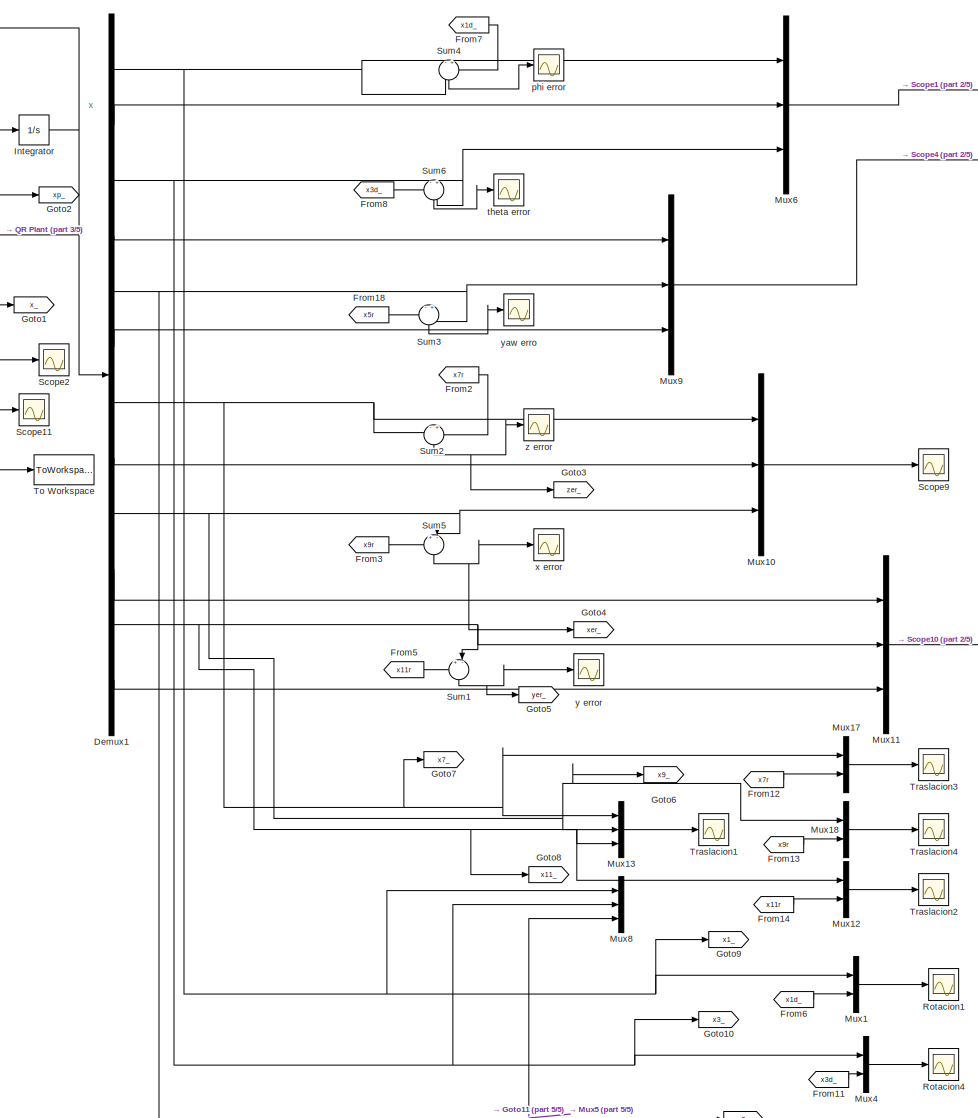
[diagram:  Quadrotor plant #1  - part 1/5, center side, full height]
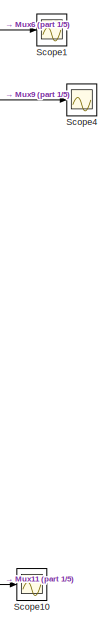
[diagram:  Quadrotor plant #1  - part 2/5, top right region]
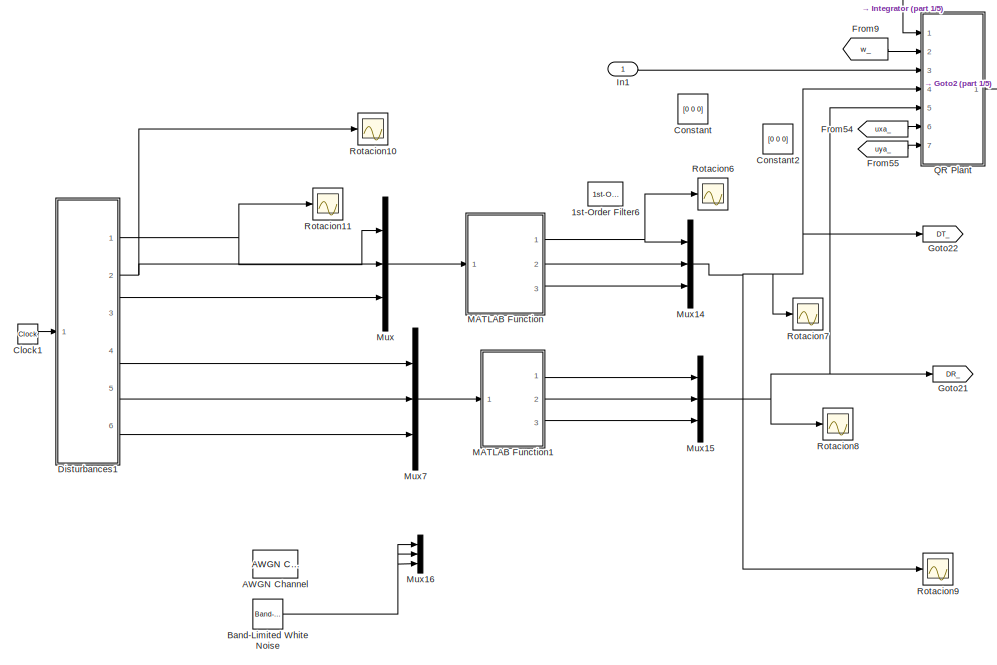
[diagram:  Quadrotor plant #1  - part 3/5, middle left region]
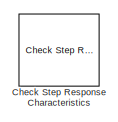
[diagram:  Quadrotor plant #1  - part 4/5, bottom right region]
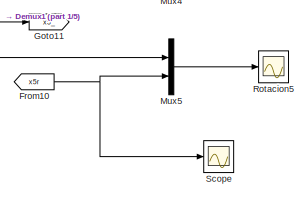
[diagram:  Quadrotor plant #1  - part 5/5, bottom right region]
BLOCK [SubSystem]  Quadrotor plant #1 
  Ports = [1]
  RequestExecContextInheritance = off
BLOCK [Reference]  Quadrotor plant #1 /1st-Order Filter6  REF=powerlib_extras/Control 
Blocks/1st-Order 
Filter
  Ports = [1, 1]
  SourceBlock = powerlib_extras/Control \nBlocks/1st-Order \nFilter
  SourceType = First-Order Filter
BLOCK [Reference]  Quadrotor plant #1 /AWGN Channel  REF=commchan3/AWGN
Channel
  Ports = [1, 1]
  SourceBlock = commchan3/AWGN\nChannel
  SourceProductBaseCode = CM
  SourceProductName = Communications Toolbox
  SourceType = AWGN Channel
  UserDataPersistent = on
BLOCK [Reference]  Quadrotor plant #1 /Band-Limited White Noise  REF=simulink/Sources/Band-Limited
White Noise
  Ports = [0, 1]
  SourceBlock = simulink/Sources/Band-Limited\nWhite Noise
  SourceProductBaseCode = SL
  SourceProductName = Simulink
  SourceType = Band-Limited White Noise.
BLOCK [Reference]  Quadrotor plant #1 /Check Step Response Characteristics  REF=checkpacklib/Check Step Response 
Characteristics
  Commented = on
  InstantiateOnLoad = on
  Ports = [1]
  SourceBlock = checkpacklib/Check Step Response \nCharacteristics
  SourceType = Checks_StepResponse
BLOCK [Clock]  Quadrotor plant #1 /Clock1
BLOCK [Constant]  Quadrotor plant #1 /Constant
  Value = [0 0 0]
BLOCK [Constant]  Quadrotor plant #1 /Constant2
  Value = [0 0 0]
BLOCK [Demux]  Quadrotor plant #1 /Demux1
  DisplayOption = bar
  Outputs = 12
  Ports = [1, 12]
BLOCK [SubSystem]  Quadrotor plant #1 /Disturbances1
  ErrorFcn = Stateflow.Translate.translate
  PermitHierarchicalResolution = ExplicitOnly
  Ports = [1, 6]
  RequestExecContextInheritance = off
  SFBlockType = MATLAB Function
  TreatAsAtomicUnit = on
BLOCK [Demux]  Quadrotor plant #1 /Disturbances1/ Demux 
  Outputs = 1
  Ports = [1, 1]
BLOCK [S-Function]  Quadrotor plant #1 /Disturbances1/ SFunction 
  EnableBusSupport = on
  FunctionName = sf_sfun
  PortCounts = [1 7]
  Ports = [1, 7]
  SFcnIsStateOwnerBlock = off
  SFunctionDeploymentMode = off
  Tag = Stateflow S-Function NDO_STO_KDO_2 5
BLOCK [Terminator]  Quadrotor plant #1 /Disturbances1/ Terminator 
BLOCK [Outport]  Quadrotor plant #1 /Disturbances1/AF1
  IconDisplay = Port number
BLOCK [Outport]  Quadrotor plant #1 /Disturbances1/AF2
  IconDisplay = Port number
  Port = 2
BLOCK [Outport]  Quadrotor plant #1 /Disturbances1/AF3
  IconDisplay = Port number
  Port = 3
BLOCK [Outport]  Quadrotor plant #1 /Disturbances1/AT1
  IconDisplay = Port number
  Port = 4
BLOCK [Outport]  Quadrotor plant #1 /Disturbances1/AT2
  IconDisplay = Port number
  Port = 5
BLOCK [Outport]  Quadrotor plant #1 /Disturbances1/AT3
  IconDisplay = Port number
  Port = 6
BLOCK [Inport]  Quadrotor plant #1 /Disturbances1/t
  IconDisplay = Port number
BLOCK [From]  Quadrotor plant #1 /From10
  CloseFcn = tagdialog Close
  GotoTag = x5r
  TagVisibility = global
BLOCK [From]  Quadrotor plant #1 /From11
  CloseFcn = tagdialog Close
  GotoTag = x3d_
  TagVisibility = global
BLOCK [From]  Quadrotor plant #1 /From12
  CloseFcn = tagdialog Close
  GotoTag = x7r
  TagVisibility = global
BLOCK [From]  Quadrotor plant #1 /From13
  CloseFcn = tagdialog Close
  GotoTag = x9r
  TagVisibility = global
BLOCK [From]  Quadrotor plant #1 /From14
  CloseFcn = tagdialog Close
  GotoTag = x11r
  TagVisibility = global
BLOCK [From]  Quadrotor plant #1 /From18
  CloseFcn = tagdialog Close
  GotoTag = x5r
  TagVisibility = global
BLOCK [From]  Quadrotor plant #1 /From2
  CloseFcn = tagdialog Close
  GotoTag = x7r
  TagVisibility = global
BLOCK [From]  Quadrotor plant #1 /From3
  CloseFcn = tagdialog Close
  GotoTag = x9r
  TagVisibility = global
BLOCK [From]  Quadrotor plant #1 /From5
  CloseFcn = tagdialog Close
  GotoTag = x11r
  TagVisibility = global
BLOCK [From]  Quadrotor plant #1 /From54
  CloseFcn = tagdialog Close
  GotoTag = uxa_
  TagVisibility = global
BLOCK [From]  Quadrotor plant #1 /From55
  CloseFcn = tagdialog Close
  GotoTag = uya_
  TagVisibility = global
BLOCK [From]  Quadrotor plant #1 /From6
  CloseFcn = tagdialog Close
  GotoTag = x1d_
  TagVisibility = global
BLOCK [From]  Quadrotor plant #1 /From7
  CloseFcn = tagdialog Close
  GotoTag = x1d_
  TagVisibility = global
BLOCK [From]  Quadrotor plant #1 /From8
  CloseFcn = tagdialog Close
  GotoTag = x3d_
  TagVisibility = global
BLOCK [From]  Quadrotor plant #1 /From9
  CloseFcn = tagdialog Close
  GotoTag = w_
  TagVisibility = global
BLOCK [Goto]  Quadrotor plant #1 /Goto1
  GotoTag = x_
  TagVisibility = global
BLOCK [Goto]  Quadrotor plant #1 /Goto10
  GotoTag = x3_
  TagVisibility = global
BLOCK [Goto]  Quadrotor plant #1 /Goto11
  GotoTag = x5_
  TagVisibility = global
BLOCK [Goto]  Quadrotor plant #1 /Goto2
  GotoTag = xp_
  TagVisibility = global
BLOCK [Goto]  Quadrotor plant #1 /Goto21
  GotoTag = DR_
  TagVisibility = global
BLOCK [Goto]  Quadrotor plant #1 /Goto22
  GotoTag = DT_
  TagVisibility = global
BLOCK [Goto]  Quadrotor plant #1 /Goto3
  GotoTag = zer_
  TagVisibility = global
BLOCK [Goto]  Quadrotor plant #1 /Goto4
  GotoTag = xer_
  TagVisibility = global
BLOCK [Goto]  Quadrotor plant #1 /Goto5
  GotoTag = yer_
  TagVisibility = global
BLOCK [Goto]  Quadrotor plant #1 /Goto6
  GotoTag = x9_
  TagVisibility = global
BLOCK [Goto]  Quadrotor plant #1 /Goto7
  GotoTag = x7_
  TagVisibility = global
BLOCK [Goto]  Quadrotor plant #1 /Goto8
  GotoTag = x11_
  TagVisibility = global
BLOCK [Goto]  Quadrotor plant #1 /Goto9
  GotoTag = x1_
  TagVisibility = global
BLOCK [Inport]  Quadrotor plant #1 /In1
  IconDisplay = Port number
BLOCK [Integrator]  Quadrotor plant #1 /Integrator
  InitialCondition = [0 0 0 0 0 0 0 0 0 0 0 0];
  Ports = [1, 1]
BLOCK [SubSystem]  Quadrotor plant #1 /MATLAB Function
  ErrorFcn = Stateflow.Translate.translate
  PermitHierarchicalResolution = ExplicitOnly
  Ports = [1, 3]
  RequestExecContextInheritance = off
  SFBlockType = MATLAB Function
  TreatAsAtomicUnit = on
BLOCK [Demux]  Quadrotor plant #1 /MATLAB Function/ Demux 
  Outputs = 1
  Ports = [1, 1]
BLOCK [S-Function]  Quadrotor plant #1 /MATLAB Function/ SFunction 
  EnableBusSupport = on
  FunctionName = sf_sfun
  PortCounts = [1 4]
  Ports = [1, 4]
  SFcnIsStateOwnerBlock = off
  SFunctionDeploymentMode = off
  Tag = Stateflow S-Function NDO_STO_KDO_2 6
BLOCK [Terminator]  Quadrotor plant #1 /MATLAB Function/ Terminator 
BLOCK [Outport]  Quadrotor plant #1 /MATLAB Function/DT1
  IconDisplay = Port number
BLOCK [Outport]  Quadrotor plant #1 /MATLAB Function/DT2
  IconDisplay = Port number
  Port = 2
BLOCK [Outport]  Quadrotor plant #1 /MATLAB Function/DT3
  IconDisplay = Port number
  Port = 3
BLOCK [Inport]  Quadrotor plant #1 /MATLAB Function/disT
  IconDisplay = Port number
BLOCK [SubSystem]  Quadrotor plant #1 /MATLAB Function1
  ErrorFcn = Stateflow.Translate.translate
  PermitHierarchicalResolution = ExplicitOnly
  Ports = [1, 3]
  RequestExecContextInheritance = off
  SFBlockType = MATLAB Function
  TreatAsAtomicUnit = on
BLOCK [Demux]  Quadrotor plant #1 /MATLAB Function1/ Demux 
  Outputs = 1
  Ports = [1, 1]
BLOCK [S-Function]  Quadrotor plant #1 /MATLAB Function1/ SFunction 
  EnableBusSupport = on
  FunctionName = sf_sfun
  PortCounts = [1 4]
  Ports = [1, 4]
  SFcnIsStateOwnerBlock = off
  SFunctionDeploymentMode = off
  Tag = Stateflow S-Function NDO_STO_KDO_2 1
BLOCK [Terminator]  Quadrotor plant #1 /MATLAB Function1/ Terminator 
BLOCK [Outport]  Quadrotor plant #1 /MATLAB Function1/DR1
  IconDisplay = Port number
BLOCK [Outport]  Quadrotor plant #1 /MATLAB Function1/DR2
  IconDisplay = Port number
  Port = 2
BLOCK [Outport]  Quadrotor plant #1 /MATLAB Function1/DR3
  IconDisplay = Port number
  Port = 3
BLOCK [Inport]  Quadrotor plant #1 /MATLAB Function1/disR
  IconDisplay = Port number
BLOCK [Mux]  Quadrotor plant #1 /Mux
  DisplayOption = bar
  Inputs = 3
  Ports = [3, 1]
BLOCK [Mux]  Quadrotor plant #1 /Mux1
  DisplayOption = bar
  Inputs = 2
  Ports = [2, 1]
BLOCK [Mux]  Quadrotor plant #1 /Mux10
  DisplayOption = bar
  Inputs = 3
  Ports = [3, 1]
BLOCK [Mux]  Quadrotor plant #1 /Mux11
  DisplayOption = bar
  Inputs = 3
  Ports = [3, 1]
BLOCK [Mux]  Quadrotor plant #1 /Mux12
  DisplayOption = bar
  Inputs = 2
  Ports = [2, 1]
BLOCK [Mux]  Quadrotor plant #1 /Mux13
  DisplayOption = bar
  Inputs = 3
  Ports = [3, 1]
BLOCK [Mux]  Quadrotor plant #1 /Mux14
  DisplayOption = bar
  Inputs = 3
  Ports = [3, 1]
BLOCK [Mux]  Quadrotor plant #1 /Mux15
  DisplayOption = bar
  Inputs = 3
  Ports = [3, 1]
BLOCK [Mux]  Quadrotor plant #1 /Mux16
  DisplayOption = bar
  Inputs = 3
  Ports = [3, 1]
BLOCK [Mux]  Quadrotor plant #1 /Mux17
  DisplayOption = bar
  Inputs = 2
  Ports = [2, 1]
BLOCK [Mux]  Quadrotor plant #1 /Mux18
  DisplayOption = bar
  Inputs = 2
  Ports = [2, 1]
BLOCK [Mux]  Quadrotor plant #1 /Mux4
  DisplayOption = bar
  Inputs = 2
  Ports = [2, 1]
BLOCK [Mux]  Quadrotor plant #1 /Mux5
  DisplayOption = bar
  Inputs = 2
  Ports = [2, 1]
BLOCK [Mux]  Quadrotor plant #1 /Mux6
  DisplayOption = bar
  Inputs = 3
  Ports = [3, 1]
BLOCK [Mux]  Quadrotor plant #1 /Mux7
  DisplayOption = bar
  Inputs = 3
  Ports = [3, 1]
BLOCK [Mux]  Quadrotor plant #1 /Mux8
  DisplayOption = bar
  Inputs = 3
  Ports = [3, 1]
BLOCK [Mux]  Quadrotor plant #1 /Mux9
  DisplayOption = bar
  Inputs = 3
  Ports = [3, 1]
BLOCK [SubSystem]  Quadrotor plant #1 /QR Plant 
  ErrorFcn = Stateflow.Translate.translate
  PermitHierarchicalResolution = ExplicitOnly
  Ports = [7, 1]
  RequestExecContextInheritance = off
  SFBlockType = MATLAB Function
  TreatAsAtomicUnit = on
BLOCK [Demux]  Quadrotor plant #1 /QR Plant / Demux 
  Outputs = 1
  Ports = [1, 1]
BLOCK [S-Function]  Quadrotor plant #1 /QR Plant / SFunction 
  EnableBusSupport = on
  FunctionName = sf_sfun
  PortCounts = [7 2]
  Ports = [7, 2]
  SFcnIsStateOwnerBlock = off
  SFunctionDeploymentMode = off
  Tag = Stateflow S-Function NDO_STO_KDO_2 2
BLOCK [Terminator]  Quadrotor plant #1 /QR Plant / Terminator 
BLOCK [Inport]  Quadrotor plant #1 /QR Plant /DR
  IconDisplay = Port number
  Port = 5
BLOCK [Inport]  Quadrotor plant #1 /QR Plant /DT
  IconDisplay = Port number
  Port = 4
BLOCK [Outport]  Quadrotor plant #1 /QR Plant /dx
  IconDisplay = Port number
BLOCK [Inport]  Quadrotor plant #1 /QR Plant /u_
  IconDisplay = Port number
  Port = 3
BLOCK [Inport]  Quadrotor plant #1 /QR Plant /uxa_
  IconDisplay = Port number
  Port = 6
BLOCK [Inport]  Quadrotor plant #1 /QR Plant /uya_
  IconDisplay = Port number
  Port = 7
BLOCK [Inport]  Quadrotor plant #1 /QR Plant /w_
  IconDisplay = Port number
  Port = 2
BLOCK [Inport]  Quadrotor plant #1 /QR Plant /x_
  IconDisplay = Port number
BLOCK [Scope]  Quadrotor plant #1 /Rotacion1
  Floating = off
  NumInputPorts = 1
  Ports = [1]
  ScopeSpecificationString = Simulink.scopes.TimeScopeBlockCfg('CurrentConfiguration', extmgr.ConfigurationSet(extmgr.Configuration('Core','General UI',true),extmgr.Configuration('Core','Source UI',true),extmgr.Configuration('Sources','WiredSimulink',true,'DataLoggingVariableName','fi_','DataLoggingSaveFormat','Array','DataLoggingDecimation','1','DataLoggingDecimateData',true,'DataLogging',true),extmgr.Configuration('Visuals'...<+1740ch>
BLOCK [Scope]  Quadrotor plant #1 /Rotacion10
  Floating = off
  NumInputPorts = 1
  Ports = [1]
  ScopeSpecificationString = Simulink.scopes.TimeScopeBlockCfg('CurrentConfiguration', extmgr.ConfigurationSet(extmgr.Configuration('Core','General UI',true),extmgr.Configuration('Core','Source UI',true),extmgr.Configuration('Sources','WiredSimulink',true,'DataLoggingVariableName','ScopeData8'),extmgr.Configuration('Visuals','Time Domain',true,'SerializedDisplays',{struct('MinYLimReal','-0.15966','MaxYLimReal','0.23996','YLab...<+1451ch>
BLOCK [Scope]  Quadrotor plant #1 /Rotacion11
  Floating = off
  NumInputPorts = 1
  Ports = [1]
  ScopeSpecificationString = Simulink.scopes.TimeScopeBlockCfg('CurrentConfiguration', extmgr.ConfigurationSet(extmgr.Configuration('Core','General UI',true),extmgr.Configuration('Core','Source UI',true),extmgr.Configuration('Sources','WiredSimulink',true,'DataLoggingVariableName','ScopeData9'),extmgr.Configuration('Visuals','Time Domain',true,'SerializedDisplays',{struct('MinYLimReal','-0.23852','MaxYLimReal','0.24872','YLab...<+1452ch>
BLOCK [Scope]  Quadrotor plant #1 /Rotacion4
  Floating = off
  NumInputPorts = 1
  Ports = [1]
  ScopeSpecificationString = Simulink.scopes.TimeScopeBlockCfg('CurrentConfiguration', extmgr.ConfigurationSet(extmgr.Configuration('Core','General UI',true),extmgr.Configuration('Core','Source UI',true),extmgr.Configuration('Sources','WiredSimulink',true,'DataLoggingVariableName','theta_','DataLogging',true,'DataLoggingDecimateData',true,'DataLoggingDecimation','1','DataLoggingSaveFormat','Array'),extmgr.Configuration('Visua...<+1594ch>
BLOCK [Scope]  Quadrotor plant #1 /Rotacion5
  Floating = off
  NumInputPorts = 1
  Ports = [1]
  ScopeSpecificationString = Simulink.scopes.TimeScopeBlockCfg('CurrentConfiguration', extmgr.ConfigurationSet(extmgr.Configuration('Core','General UI',true),extmgr.Configuration('Core','Source UI',true),extmgr.Configuration('Sources','WiredSimulink',true,'DataLoggingVariableName','yaw_','DataLogging',true,'DataLoggingSaveFormat','Array'),extmgr.Configuration('Visuals','Time Domain',true,'SerializedDisplays',{struct('MinYLimR...<+1468ch>
BLOCK [Scope]  Quadrotor plant #1 /Rotacion6
  Floating = off
  NumInputPorts = 1
  Ports = [1]
  ScopeSpecificationString = Simulink.scopes.TimeScopeBlockCfg('CurrentConfiguration', extmgr.ConfigurationSet(extmgr.Configuration('Core','General UI',true),extmgr.Configuration('Core','Source UI',true),extmgr.Configuration('Sources','WiredSimulink',true,'DataLoggingVariableName','ScopeData4'),extmgr.Configuration('Visuals','Time Domain',true,'SerializedDisplays',{struct('MinYLimReal','-8.84907','MaxYLimReal','8.84863','YLab...<+1451ch>
BLOCK [Scope]  Quadrotor plant #1 /Rotacion7
  Floating = off
  NumInputPorts = 1
  Ports = [1]
  ScopeSpecificationString = Simulink.scopes.TimeScopeBlockCfg('CurrentConfiguration', extmgr.ConfigurationSet(extmgr.Configuration('Core','General UI',true),extmgr.Configuration('Core','Source UI',true),extmgr.Configuration('Sources','WiredSimulink',true,'DataLoggingVariableName','ScopeData5'),extmgr.Configuration('Visuals','Time Domain',true,'SerializedDisplays',{struct('MinYLimReal','-8.05816','MaxYLimReal','8.40286','YLab...<+1495ch>
BLOCK [Scope]  Quadrotor plant #1 /Rotacion8
  Floating = off
  NumInputPorts = 1
  Ports = [1]
  ScopeSpecificationString = Simulink.scopes.TimeScopeBlockCfg('CurrentConfiguration', extmgr.ConfigurationSet(extmgr.Configuration('Core','General UI',true),extmgr.Configuration('Core','Source UI',true),extmgr.Configuration('Sources','WiredSimulink',true,'DataLoggingVariableName','ScopeData6'),extmgr.Configuration('Visuals','Time Domain',true,'SerializedDisplays',{struct('MinYLimReal','-8.05816','MaxYLimReal','8.40286','YLab...<+1452ch>
BLOCK [Scope]  Quadrotor plant #1 /Rotacion9
  Floating = off
  NumInputPorts = 1
  Ports = [1]
  ScopeSpecificationString = Simulink.scopes.TimeScopeBlockCfg('CurrentConfiguration', extmgr.ConfigurationSet(extmgr.Configuration('Core','General UI',true),extmgr.Configuration('Core','Source UI',true),extmgr.Configuration('Sources','WiredSimulink',true,'DataLoggingVariableName','ScopeData1'),extmgr.Configuration('Visuals','Time Domain',true,'SerializedDisplays',{struct('MinYLimReal','-8.05816','MaxYLimReal','8.40286','YLab...<+1497ch>
BLOCK [Scope]  Quadrotor plant #1 /Scope
  Floating = off
  NumInputPorts = 1
  Ports = [1]
  ScopeSpecificationString = Simulink.scopes.TimeScopeBlockCfg('CurrentConfiguration', extmgr.ConfigurationSet(extmgr.Configuration('Core','General UI',true),extmgr.Configuration('Core','Source UI',true),extmgr.Configuration('Sources','WiredSimulink',true,'DataLoggingVariableName','ScopeData1'),extmgr.Configuration('Visuals','Time Domain',true,'SerializedDisplays',{struct('MinYLimReal','-0.66067','MaxYLimReal','0.94607','YLab...<+1393ch>
BLOCK [Scope]  Quadrotor plant #1 /Scope1
  Floating = off
  NumInputPorts = 1
  Ports = [1]
  ScopeSpecificationString = Simulink.scopes.TimeScopeBlockCfg('CurrentConfiguration', extmgr.ConfigurationSet(extmgr.Configuration('Core','General UI',true),extmgr.Configuration('Core','Source UI',true),extmgr.Configuration('Sources','WiredSimulink',true,'DataLoggingVariableName','ScopeData14','DataLoggingSaveFormat','StructureWithTime','DataLoggingDecimation','1','DataLoggingDecimateData',true),extmgr.Configuration('Visuals...<+1656ch>
BLOCK [Scope]  Quadrotor plant #1 /Scope10
  Floating = off
  NumInputPorts = 1
  Ports = [1]
  ScopeSpecificationString = Simulink.scopes.TimeScopeBlockCfg('CurrentConfiguration', extmgr.ConfigurationSet(extmgr.Configuration('Core','General UI',true),extmgr.Configuration('Core','Source UI',true),extmgr.Configuration('Sources','WiredSimulink',true,'DataLoggingVariableName','ScopeData15','DataLoggingSaveFormat','StructureWithTime','DataLoggingDecimation','1','DataLoggingDecimateData',true),extmgr.Configuration('Visuals...<+1674ch>
BLOCK [Scope]  Quadrotor plant #1 /Scope11
  Floating = off
  NumInputPorts = 1
  Ports = [1]
  ScopeSpecificationString = Simulink.scopes.TimeScopeBlockCfg('CurrentConfiguration', extmgr.ConfigurationSet(extmgr.Configuration('Core','General UI',true),extmgr.Configuration('Core','Source UI',true),extmgr.Configuration('Sources','WiredSimulink',true,'DataLogging',true,'DataLoggingVariableName','XX_','DataLoggingSaveFormat','Array','DataLoggingDecimation','1','DataLoggingDecimateData',true,'SampleTime','1'),extmgr.Config...<+1868ch>
BLOCK [Scope]  Quadrotor plant #1 /Scope2
  Floating = off
  NumInputPorts = 1
  Ports = [1]
  ScopeSpecificationString = Simulink.scopes.TimeScopeBlockCfg('CurrentConfiguration', extmgr.ConfigurationSet(extmgr.Configuration('Core','General UI',true),extmgr.Configuration('Core','Source UI',true),extmgr.Configuration('Sources','WiredSimulink',true,'DataLogging',true,'DataLoggingVariableName','x_s','DataLoggingSaveFormat','StructureWithTime','DataLoggingDecimation','1','DataLoggingDecimateData',true),extmgr.Configurati...<+1863ch>
BLOCK [Scope]  Quadrotor plant #1 /Scope4
  Floating = off
  NumInputPorts = 1
  Ports = [1]
  ScopeSpecificationString = Simulink.scopes.TimeScopeBlockCfg('CurrentConfiguration', extmgr.ConfigurationSet(extmgr.Configuration('Core','General UI',true),extmgr.Configuration('Core','Source UI',true),extmgr.Configuration('Sources','WiredSimulink',true,'DataLoggingVariableName','ScopeData16','DataLoggingSaveFormat','StructureWithTime','DataLoggingDecimation','1','DataLoggingDecimateData',true),extmgr.Configuration('Visuals...<+1667ch>
BLOCK [Scope]  Quadrotor plant #1 /Scope9
  Floating = off
  NumInputPorts = 1
  Ports = [1]
  ScopeSpecificationString = Simulink.scopes.TimeScopeBlockCfg('CurrentConfiguration', extmgr.ConfigurationSet(extmgr.Configuration('Core','General UI',true),extmgr.Configuration('Core','Source UI',true),extmgr.Configuration('Sources','WiredSimulink',true,'DataLoggingVariableName','ScopeData18','DataLoggingSaveFormat','StructureWithTime','DataLoggingDecimation','1','DataLoggingDecimateData',true),extmgr.Configuration('Visuals...<+1646ch>
BLOCK [Sum]  Quadrotor plant #1 /Sum1
  IconShape = round
  InputSameDT = off
  Inputs = +-
  OutDataTypeStr = Inherit: Inherit via internal rule
  Ports = [2, 1]
  SaturateOnIntegerOverflow = off
BLOCK [Sum]  Quadrotor plant #1 /Sum2
  IconShape = round
  InputSameDT = off
  Inputs = -+
  OutDataTypeStr = Inherit: Inherit via internal rule
  Ports = [2, 1]
  SaturateOnIntegerOverflow = off
BLOCK [Sum]  Quadrotor plant #1 /Sum3
  IconShape = round
  InputSameDT = off
  Inputs = -+
  OutDataTypeStr = Inherit: Inherit via internal rule
  Ports = [2, 1]
  SaturateOnIntegerOverflow = off
BLOCK [Sum]  Quadrotor plant #1 /Sum4
  IconShape = round
  InputSameDT = off
  Inputs = -+
  OutDataTypeStr = Inherit: Inherit via internal rule
  Ports = [2, 1]
  SaturateOnIntegerOverflow = off
BLOCK [Sum]  Quadrotor plant #1 /Sum5
  IconShape = round
  InputSameDT = off
  Inputs = +-
  OutDataTypeStr = Inherit: Inherit via internal rule
  Ports = [2, 1]
  SaturateOnIntegerOverflow = off
BLOCK [Sum]  Quadrotor plant #1 /Sum6
  IconShape = round
  InputSameDT = off
  Inputs = -+
  OutDataTypeStr = Inherit: Inherit via internal rule
  Ports = [2, 1]
  SaturateOnIntegerOverflow = off
BLOCK [ToWorkspace]  Quadrotor plant #1 /To Workspace
  FixptAsFi = on
  MaxDataPoints = inf
  Ports = [1]
  SampleTime = -1
  Save2DSignal = 3-D array (concatenate along third dimension)
  SaveFormat = Timeseries
  VariableName = T
BLOCK [Scope]  Quadrotor plant #1 /Traslacion1
  Floating = off
  NumInputPorts = 1
  Ports = [1]
  ScopeSpecificationString = Simulink.scopes.TimeScopeBlockCfg('CurrentConfiguration', extmgr.ConfigurationSet(extmgr.Configuration('Core','General UI',true,'FigureColor',[0 0 0]),extmgr.Configuration('Core','Source UI',true),extmgr.Configuration('Sources','WiredSimulink',true,'DataLoggingVariableName','x1','DataLoggingSaveFormat','Array','DataLoggingDecimation','1','DataLoggingDecimateData',true,'DataLogging',true),extmgr.Co...<+1794ch>
BLOCK [Scope]  Quadrotor plant #1 /Traslacion2
  Floating = off
  NumInputPorts = 1
  Ports = [1]
  ScopeSpecificationString = Simulink.scopes.TimeScopeBlockCfg('CurrentConfiguration', extmgr.ConfigurationSet(extmgr.Configuration('Core','General UI',true,'FigureColor',[0 0 0]),extmgr.Configuration('Core','Source UI',true),extmgr.Configuration('Sources','WiredSimulink',true,'DataLoggingVariableName','ScopeData3','DataLoggingSaveFormat','StructureWithTime','DataLoggingDecimation','1','DataLoggingDecimateData',true),extmgr.C...<+1755ch>
BLOCK [Scope]  Quadrotor plant #1 /Traslacion3
  Floating = off
  NumInputPorts = 1
  Ports = [1]
  ScopeSpecificationString = Simulink.scopes.TimeScopeBlockCfg('CurrentConfiguration', extmgr.ConfigurationSet(extmgr.Configuration('Core','General UI',true),extmgr.Configuration('Core','Source UI',true),extmgr.Configuration('Sources','WiredSimulink',true,'DataLoggingVariableName','z_','DataLogging',true,'DataLoggingSaveFormat','Array'),extmgr.Configuration('Visuals','Time Domain',true,'SerializedDisplays',{struct('MinYLimRea...<+1498ch>
BLOCK [Scope]  Quadrotor plant #1 /Traslacion4
  Floating = off
  NumInputPorts = 1
  Ports = [1]
  ScopeSpecificationString = Simulink.scopes.TimeScopeBlockCfg('CurrentConfiguration', extmgr.ConfigurationSet(extmgr.Configuration('Core','General UI',true),extmgr.Configuration('Core','Source UI',true),extmgr.Configuration('Sources','WiredSimulink',true,'DataLoggingVariableName','ScopeData5'),extmgr.Configuration('Visuals','Time Domain',true,'SerializedDisplays',{struct('MinYLimReal','-0.63441','MaxYLimReal','0.65581','YLab...<+1436ch>
BLOCK [Scope]  Quadrotor plant #1 /phi error
  Floating = off
  NumInputPorts = 1
  Ports = [1]
  ScopeSpecificationString = Simulink.scopes.TimeScopeBlockCfg('CurrentConfiguration', extmgr.ConfigurationSet(extmgr.Configuration('Core','General UI',true),extmgr.Configuration('Core','Source UI',true),extmgr.Configuration('Sources','WiredSimulink',true,'DataLoggingVariableName','fier_','DataLogging',true,'DataLoggingSaveFormat','Array'),extmgr.Configuration('Visuals','Time Domain',true,'SerializedDisplays',{struct('MinYLim...<+1482ch>
BLOCK [Scope]  Quadrotor plant #1 /theta error
  Floating = off
  NumInputPorts = 1
  Ports = [1]
  ScopeSpecificationString = Simulink.scopes.TimeScopeBlockCfg('CurrentConfiguration', extmgr.ConfigurationSet(extmgr.Configuration('Core','General UI',true),extmgr.Configuration('Core','Source UI',true),extmgr.Configuration('Sources','WiredSimulink',true,'DataLoggingVariableName','thetaer_','DataLogging',true,'DataLoggingSaveFormat','Array'),extmgr.Configuration('Visuals','Time Domain',true,'SerializedDisplays',{struct('MinY...<+1466ch>
BLOCK [Scope]  Quadrotor plant #1 /x error
  Floating = off
  NumInputPorts = 1
  Ports = [1]
  ScopeSpecificationString = Simulink.scopes.TimeScopeBlockCfg('CurrentConfiguration', extmgr.ConfigurationSet(extmgr.Configuration('Core','General UI',true),extmgr.Configuration('Core','Source UI',true),extmgr.Configuration('Sources','WiredSimulink',true,'DataLoggingVariableName','xer_','DataLogging',true,'DataLoggingSaveFormat','Array'),extmgr.Configuration('Visuals','Time Domain',true,'SerializedDisplays',{struct('MinYLimR...<+1481ch>
BLOCK [Scope]  Quadrotor plant #1 /y error 
  Floating = off
  NumInputPorts = 1
  Ports = [1]
  ScopeSpecificationString = Simulink.scopes.TimeScopeBlockCfg('CurrentConfiguration', extmgr.ConfigurationSet(extmgr.Configuration('Core','General UI',true),extmgr.Configuration('Core','Source UI',true),extmgr.Configuration('Sources','WiredSimulink',true,'DataLoggingVariableName','yer_','DataLogging',true,'DataLoggingSaveFormat','Array'),extmgr.Configuration('Visuals','Time Domain',true,'SerializedDisplays',{struct('MinYLimR...<+1481ch>
BLOCK [Scope]  Quadrotor plant #1 /yaw erro
  Floating = off
  NumInputPorts = 1
  Ports = [1]
  ScopeSpecificationString = Simulink.scopes.TimeScopeBlockCfg('CurrentConfiguration', extmgr.ConfigurationSet(extmgr.Configuration('Core','General UI',true),extmgr.Configuration('Core','Source UI',true),extmgr.Configuration('Sources','WiredSimulink',true,'DataLoggingVariableName','yawer_','DataLogging',true,'DataLoggingSaveFormat','Array'),extmgr.Configuration('Visuals','Time Domain',true,'SerializedDisplays',{struct('MinYLi...<+1463ch>
BLOCK [Scope]  Quadrotor plant #1 /z error
  Floating = off
  NumInputPorts = 1
  Ports = [1]
  ScopeSpecificationString = Simulink.scopes.TimeScopeBlockCfg('CurrentConfiguration', extmgr.ConfigurationSet(extmgr.Configuration('Core','General UI',true),extmgr.Configuration('Core','Source UI',true),extmgr.Configuration('Sources','WiredSimulink',true,'DataLoggingVariableName','zer_','DataLogging',true,'DataLoggingSaveFormat','Array'),extmgr.Configuration('Visuals','Time Domain',true,'SerializedDisplays',{struct('MinYLimR...<+1477ch>
BLOCK [SubSystem]  sliding mode observer 
  Ports = []
  RequestExecContextInheritance = off
BLOCK [Reference]  sliding mode observer /1st-Order Filter3  REF=powerlib_extras/Control 
Blocks/1st-Order 
Filter
  Ports = [1, 1]
  SourceBlock = powerlib_extras/Control \nBlocks/1st-Order \nFilter
  SourceType = First-Order Filter
BLOCK [Reference]  sliding mode observer /AWGN Channel  REF=commchan3/AWGN
Channel
  Ports = [1, 1]
  SourceBlock = commchan3/AWGN\nChannel
  SourceProductBaseCode = CM
  SourceProductName = Communications Toolbox
  SourceType = AWGN Channel
  UserDataPersistent = on
BLOCK [Reference]  sliding mode observer /AWGN Channel1  REF=commchan3/AWGN
Channel
  Ports = [1, 1]
  SourceBlock = commchan3/AWGN\nChannel
  SourceProductBaseCode = CM
  SourceProductName = Communications Toolbox
  SourceType = AWGN Channel
  UserDataPersistent = on
BLOCK [Reference]  sliding mode observer /Band-Limited White Noise  REF=simulink/Sources/Band-Limited
White Noise
  Ports = [0, 1]
  SourceBlock = simulink/Sources/Band-Limited\nWhite Noise
  SourceProductBaseCode = SL
  SourceProductName = Simulink
  SourceType = Band-Limited White Noise.
BLOCK [Delay]  sliding mode observer /Delay1
  DelayLength = 1
  InitialCondition = 0
  InputPortMap = u0
  Ports = [1, 1]
BLOCK [Delay]  sliding mode observer /Delay3
  DelayLength = 1
  InitialCondition = 0
  InputPortMap = u0
  Ports = [1, 1]
BLOCK [Demux]  sliding mode observer /Demux3
  DisplayOption = bar
  Outputs = 3
  Ports = [1, 3]
BLOCK [Demux]  sliding mode observer /Demux4
  DisplayOption = bar
  Outputs = 3
  Ports = [1, 3]
BLOCK [Scope]  sliding mode observer /Error de est1
  Floating = off
  NumInputPorts = 3
  Ports = [3]
  ScopeSpecificationString = Simulink.scopes.TimeScopeBlockCfg('CurrentConfiguration', extmgr.ConfigurationSet(extmgr.Configuration('Core','General UI',true,'FigureColor',[1 1 1]),extmgr.Configuration('Core','Source UI',true),extmgr.Configuration('Sources','WiredSimulink',true,'DataLoggingVariableName','ScopeData2','DataLoggingSaveFormat','StructureWithTime','DataLoggingDecimation','1','DataLoggingDecimateData',true),extmgr.C...<+3375ch>
BLOCK [Scope]  sliding mode observer /Error de est3
  Floating = off
  NumInputPorts = 3
  Ports = [3]
  ScopeSpecificationString = Simulink.scopes.TimeScopeBlockCfg('CurrentConfiguration', extmgr.ConfigurationSet(extmgr.Configuration('Core','General UI',true),extmgr.Configuration('Core','Source UI',true),extmgr.Configuration('Sources','WiredSimulink',true,'DataLoggingVariableName','ScopeData1','DataLoggingSaveFormat','StructureWithTime','DataLoggingDecimation','1','DataLoggingDecimateData',true),extmgr.Configuration('Visuals'...<+3093ch>
BLOCK [From]  sliding mode observer /From1
  CloseFcn = tagdialog Close
  GotoTag = U_
  TagVisibility = global
BLOCK [From]  sliding mode observer /From2
  CloseFcn = tagdialog Close
  GotoTag = x_
  TagVisibility = global
BLOCK [From]  sliding mode observer /From21
  CloseFcn = tagdialog Close
  GotoTag = U_
  TagVisibility = global
BLOCK [From]  sliding mode observer /From22
  CloseFcn = tagdialog Close
  GotoTag = x_
  TagVisibility = global
BLOCK [From]  sliding mode observer /From23
  CloseFcn = tagdialog Close
  GotoTag = xp_
  TagVisibility = global
BLOCK [From]  sliding mode observer /From3
  CloseFcn = tagdialog Close
  GotoTag = xp_
  TagVisibility = global
BLOCK [From]  sliding mode observer /From4
  CloseFcn = tagdialog Close
  GotoTag = w_
  TagVisibility = global
BLOCK [From]  sliding mode observer /From43
  CloseFcn = tagdialog Close
  GotoTag = DT_
  TagVisibility = global
BLOCK [From]  sliding mode observer /From47
  CloseFcn = tagdialog Close
  GotoTag = DR_
  TagVisibility = global
BLOCK [From]  sliding mode observer /From5
  CloseFcn = tagdialog Close
  GotoTag = dis_fi_est_
  TagVisibility = global
BLOCK [From]  sliding mode observer /From51
  CloseFcn = tagdialog Close
  GotoTag = dis_x_est_
  TagVisibility = global
BLOCK [From]  sliding mode observer /From52
  CloseFcn = tagdialog Close
  GotoTag = dis_y_est_
  TagVisibility = global
BLOCK [From]  sliding mode observer /From53
  CloseFcn = tagdialog Close
  GotoTag = dis_z_est_
  TagVisibility = global
BLOCK [From]  sliding mode observer /From54
  CloseFcn = tagdialog Close
  GotoTag = uxa_
  TagVisibility = global
BLOCK [From]  sliding mode observer /From55
  CloseFcn = tagdialog Close
  GotoTag = uya_
  TagVisibility = global
BLOCK [From]  sliding mode observer /From6
  CloseFcn = tagdialog Close
  GotoTag = dis_th_est_
  TagVisibility = global
BLOCK [From]  sliding mode observer /From7
  CloseFcn = tagdialog Close
  GotoTag = dis_ya_est_
  TagVisibility = global
BLOCK [From]  sliding mode observer /From8
  CloseFcn = tagdialog Close
  GotoTag = dis_x_est_
  TagVisibility = global
BLOCK [From]  sliding mode observer /From9
  CloseFcn = tagdialog Close
  GotoTag = dis_z_est_
  TagVisibility = global
BLOCK [Goto]  sliding mode observer /Goto1
  GotoTag = pert_rot_
  TagVisibility = global
BLOCK [Goto]  sliding mode observer /Goto14
  GotoTag = pert_tras_
  TagVisibility = global
BLOCK [Goto]  sliding mode observer /Goto2
  GotoTag = dis_z_est_
  TagVisibility = global
BLOCK [Goto]  sliding mode observer /Goto20
  GotoTag = dis_fi_est_
  TagVisibility = global
BLOCK [Goto]  sliding mode observer /Goto23
  GotoTag = DT_Z_O_E_
  TagVisibility = global
BLOCK [Goto]  sliding mode observer /Goto27
  GotoTag = DT_X_O_E_
  TagVisibility = global
BLOCK [Goto]  sliding mode observer /Goto28
  GotoTag = DT_Y_O_E_
  TagVisibility = global
BLOCK [Goto]  sliding mode observer /Goto29
  GotoTag = DR_fi_O_E_
  TagVisibility = global
BLOCK [Goto]  sliding mode observer /Goto3
  GotoTag = dis_x_est_
  TagVisibility = global
BLOCK [Goto]  sliding mode observer /Goto30
  GotoTag = DR_th_O_E_
  TagVisibility = global
BLOCK [Goto]  sliding mode observer /Goto31
  GotoTag = DR_ya_O_E_
  TagVisibility = global
BLOCK [Goto]  sliding mode observer /Goto4
  GotoTag = dis_y_est_
  TagVisibility = global
BLOCK [Goto]  sliding mode observer /Goto5
  GotoTag = dis_th_est_
  TagVisibility = global
BLOCK [Goto]  sliding mode observer /Goto6
  GotoTag = dis_ya_est_
  TagVisibility = global
BLOCK [Integrator]  sliding mode observer /Integrator1
  InitialCondition = [0 0 0];
  Ports = [1, 1]
BLOCK [Integrator]  sliding mode observer /Integrator2
  InitialCondition = [0 0 0];
  Ports = [1, 1]
BLOCK [Integrator]  sliding mode observer /Integrator3
  InitialCondition = [0 0 0];
  Ports = [1, 1]
BLOCK [Integrator]  sliding mode observer /Integrator4
  InitialCondition = [0 0 0];
  Ports = [1, 1]
BLOCK [Mux]  sliding mode observer /Mux1
  DisplayOption = bar
  Inputs = 3
  Ports = [3, 1]
BLOCK [Mux]  sliding mode observer /Mux12
  DisplayOption = bar
  Inputs = 2
  Ports = [2, 1]
BLOCK [Mux]  sliding mode observer /Mux15
  DisplayOption = bar
  Inputs = 2
  Ports = [2, 1]
BLOCK [Mux]  sliding mode observer /Mux2
  DisplayOption = bar
  Inputs = 2
  Ports = [2, 1]
BLOCK [Mux]  sliding mode observer /Mux3
  DisplayOption = bar
  Inputs = 2
  Ports = [2, 1]
BLOCK [Mux]  sliding mode observer /Mux4
  DisplayOption = bar
  Inputs = 2
  Ports = [2, 1]
BLOCK [Mux]  sliding mode observer /Mux5
  DisplayOption = bar
  Inputs = 2
  Ports = [2, 1]
BLOCK [Mux]  sliding mode observer /Mux8
  DisplayOption = bar
  Inputs = 3
  Ports = [3, 1]
BLOCK [Scope]  sliding mode observer /Rotacion1
  Floating = off
  NumInputPorts = 1
  Ports = [1]
  ScopeSpecificationString = Simulink.scopes.TimeScopeBlockCfg('CurrentConfiguration', extmgr.ConfigurationSet(extmgr.Configuration('Core','General UI',true),extmgr.Configuration('Core','Source UI',true),extmgr.Configuration('Sources','WiredSimulink',true,'DataLoggingVariableName','ScopeData1','DataLoggingLimitDataPoints',true,'DataLoggingSaveFormat','Array','DataLoggingDecimation','1','DataLoggingDecimateData',true),extmgr.C...<+165ch>
BLOCK [Scope]  sliding mode observer /Rotacion12
  Floating = off
  NumInputPorts = 1
  Ports = [1]
  ScopeSpecificationString = Simulink.scopes.TimeScopeBlockCfg('CurrentConfiguration', extmgr.ConfigurationSet(extmgr.Configuration('Core','General UI',true),extmgr.Configuration('Core','Source UI',true),extmgr.Configuration('Sources','WiredSimulink',true,'DataLoggingVariableName','ScopeData3'),extmgr.Configuration('Visuals','Time Domain',true,'SerializedDisplays',{struct('MinYLimReal','-0.81333','MaxYLimReal','7.21517','YLab...<+1450ch>
BLOCK [Scope]  sliding mode observer /Rotacion3
  Floating = off
  NumInputPorts = 1
  Ports = [1]
  ScopeSpecificationString = Simulink.scopes.TimeScopeBlockCfg('CurrentConfiguration', extmgr.ConfigurationSet(extmgr.Configuration('Core','General UI',true),extmgr.Configuration('Core','Source UI',true),extmgr.Configuration('Sources','WiredSimulink',true,'DataLoggingVariableName','ScopeData3','DataLoggingLimitDataPoints',true,'DataLoggingSaveFormat','Array','DataLoggingDecimation','1','DataLoggingDecimateData',true),extmgr.C...<+165ch>
BLOCK [Scope]  sliding mode observer /Rotacion4
  Floating = off
  NumInputPorts = 1
  Ports = [1]
  ScopeSpecificationString = Simulink.scopes.TimeScopeBlockCfg('CurrentConfiguration', extmgr.ConfigurationSet(extmgr.Configuration('Core','General UI',true),extmgr.Configuration('Core','Source UI',true),extmgr.Configuration('Sources','WiredSimulink',true,'DataLoggingVariableName','ScopeData3'),extmgr.Configuration('Visuals','Time Domain',true,'SerializedDisplays',{struct('MinYLimReal','-38.25456','MaxYLimReal','50.23122','YL...<+1547ch>
BLOCK [Scope]  sliding mode observer /Rotacion5
  Floating = off
  NumInputPorts = 1
  Ports = [1]
  ScopeSpecificationString = Simulink.scopes.TimeScopeBlockCfg('CurrentConfiguration', extmgr.ConfigurationSet(extmgr.Configuration('Core','General UI',true),extmgr.Configuration('Core','Source UI',true),extmgr.Configuration('Sources','WiredSimulink',true,'DataLoggingVariableName','ScopeData2'),extmgr.Configuration('Visuals','Time Domain',true,'SerializedDisplays',{struct('MinYLimReal','-0.88397','MaxYLimReal','7.6062','YLabe...<+1446ch>
BLOCK [Scope]  sliding mode observer /Rotacion6
  Floating = off
  NumInputPorts = 1
  Ports = [1]
  ScopeSpecificationString = Simulink.scopes.TimeScopeBlockCfg('CurrentConfiguration', extmgr.ConfigurationSet(extmgr.Configuration('Core','General UI',true),extmgr.Configuration('Core','Source UI',true),extmgr.Configuration('Sources','WiredSimulink',true,'DataLoggingVariableName','ScopeData4'),extmgr.Configuration('Visuals','Time Domain',true,'SerializedDisplays',{struct('MinYLimReal','-7.19711','MaxYLimReal','14.62024','YLa...<+1546ch>
BLOCK [Scope]  sliding mode observer /Rotacion9
  Floating = off
  NumInputPorts = 1
  Ports = [1]
  ScopeSpecificationString = Simulink.scopes.TimeScopeBlockCfg('CurrentConfiguration', extmgr.ConfigurationSet(extmgr.Configuration('Core','General UI',true),extmgr.Configuration('Core','Source UI',true),extmgr.Configuration('Sources','WiredSimulink',true,'DataLoggingVariableName','ScopeData11'),extmgr.Configuration('Visuals','Time Domain',true,'SerializedDisplays',{struct('MinYLimReal','-5.18903','MaxYLimReal','8.08454','YLa...<+1448ch>
BLOCK [Scope]  sliding mode observer /Scope1
  Floating = off
  NumInputPorts = 1
  Ports = [1]
  ScopeSpecificationString = Simulink.scopes.TimeScopeBlockCfg('CurrentConfiguration', extmgr.ConfigurationSet(extmgr.Configuration('Core','General UI',true),extmgr.Configuration('Core','Source UI',true),extmgr.Configuration('Sources','WiredSimulink',true,'DataLoggingVariableName','ths','DataLoggingSaveFormat','Array','DataLoggingDecimation','1','DataLoggingDecimateData',true,'DataLogging',true),extmgr.Configuration('Visuals'...<+1779ch>
BLOCK [Scope]  sliding mode observer /Scope14
  Floating = off
  NumInputPorts = 1
  Ports = [1]
  ScopeSpecificationString = Simulink.scopes.TimeScopeBlockCfg('CurrentConfiguration', extmgr.ConfigurationSet(extmgr.Configuration('Core','General UI',true),extmgr.Configuration('Core','Source UI',true),extmgr.Configuration('Sources','WiredSimulink',true,'DataLoggingVariableName','xs','DataLoggingSaveFormat','Array','DataLoggingDecimation','1','DataLoggingDecimateData',true,'DataLogging',true),extmgr.Configuration('Visuals',...<+1755ch>
BLOCK [Scope]  sliding mode observer /Scope15
  Floating = off
  NumInputPorts = 1
  Ports = [1]
  ScopeSpecificationString = Simulink.scopes.TimeScopeBlockCfg('CurrentConfiguration', extmgr.ConfigurationSet(extmgr.Configuration('Core','General UI',true),extmgr.Configuration('Core','Source UI',true),extmgr.Configuration('Sources','WiredSimulink',true,'DataLoggingVariableName','ys','DataLoggingSaveFormat','Array','DataLoggingDecimation','1','DataLoggingDecimateData',true,'DataLogging',true),extmgr.Configuration('Visuals',...<+1750ch>
BLOCK [Scope]  sliding mode observer /Scope16
  Floating = off
  NumInputPorts = 1
  Ports = [1]
  ScopeSpecificationString = Simulink.scopes.TimeScopeBlockCfg('CurrentConfiguration', extmgr.ConfigurationSet(extmgr.Configuration('Core','General UI',true),extmgr.Configuration('Core','Source UI',true),extmgr.Configuration('Sources','WiredSimulink',true,'DataLoggingVariableName','zs','DataLoggingSaveFormat','Array','DataLoggingDecimation','1','DataLoggingDecimateData',true,'DataLogging',true),extmgr.Configuration('Visuals',...<+1743ch>
BLOCK [Scope]  sliding mode observer /Scope17
  Floating = off
  NumInputPorts = 1
  Ports = [1]
  ScopeSpecificationString = Simulink.scopes.TimeScopeBlockCfg('CurrentConfiguration', extmgr.ConfigurationSet(extmgr.Configuration('Core','General UI',true),extmgr.Configuration('Core','Source UI',true),extmgr.Configuration('Sources','WiredSimulink',true,'DataLoggingVariableName','ScopeData7','DataLoggingSaveFormat','Array','DataLoggingDecimation','1','DataLoggingDecimateData',true),extmgr.Configuration('Visuals','Time Domai...<+1502ch>
BLOCK [Scope]  sliding mode observer /Scope18
  Floating = off
  NumInputPorts = 1
  Ports = [1]
  ScopeSpecificationString = Simulink.scopes.TimeScopeBlockCfg('CurrentConfiguration', extmgr.ConfigurationSet(extmgr.Configuration('Core','General UI',true),extmgr.Configuration('Core','Source UI',true),extmgr.Configuration('Sources','WiredSimulink',true,'DataLoggingVariableName','ScopeData11','DataLoggingSaveFormat','Array','DataLoggingDecimation','1','DataLoggingDecimateData',true),extmgr.Configuration('Visuals','Time Doma...<+1515ch>
BLOCK [Scope]  sliding mode observer /Scope19
  Floating = off
  NumInputPorts = 1
  Ports = [1]
  ScopeSpecificationString = Simulink.scopes.TimeScopeBlockCfg('CurrentConfiguration', extmgr.ConfigurationSet(extmgr.Configuration('Core','General UI',true),extmgr.Configuration('Core','Source UI',true),extmgr.Configuration('Sources','WiredSimulink',true,'DataLoggingVariableName','ScopeData12','DataLoggingSaveFormat','Array','DataLoggingDecimation','1','DataLoggingDecimateData',true),extmgr.Configuration('Visuals','Time Doma...<+1515ch>
BLOCK [Scope]  sliding mode observer /Scope2
  Floating = off
  NumInputPorts = 3
  Ports = [3]
  ScopeSpecificationString = Simulink.scopes.TimeScopeBlockCfg('CurrentConfiguration', extmgr.ConfigurationSet(extmgr.Configuration('Core','General UI',true),extmgr.Configuration('Core','Source UI',true),extmgr.Configuration('Sources','WiredSimulink',true,'DataLoggingVariableName','dis_sto','DataLoggingDecimation','1','DataLoggingDecimateData',true),extmgr.Configuration('Visuals','Time Domain',true,'SerializedDisplays',{struc...<+1738ch>
BLOCK [Scope]  sliding mode observer /Scope20
  Floating = off
  NumInputPorts = 1
  Ports = [1]
  ScopeSpecificationString = Simulink.scopes.TimeScopeBlockCfg('CurrentConfiguration', extmgr.ConfigurationSet(extmgr.Configuration('Core','General UI',true),extmgr.Configuration('Core','Source UI',true),extmgr.Configuration('Sources','WiredSimulink',true,'DataLoggingVariableName','ScopeData13','DataLoggingLimitDataPoints',true,'DataLoggingSaveFormat','Array','DataLoggingDecimation','1','DataLoggingDecimateData',true),extmgr....<+166ch>
BLOCK [Scope]  sliding mode observer /Scope21
  Floating = off
  NumInputPorts = 1
  Ports = [1]
  ScopeSpecificationString = Simulink.scopes.TimeScopeBlockCfg('CurrentConfiguration', extmgr.ConfigurationSet(extmgr.Configuration('Core','General UI',true),extmgr.Configuration('Core','Source UI',true),extmgr.Configuration('Sources','WiredSimulink',true,'DataLoggingVariableName','ScopeData8','DataLoggingSaveFormat','Array','DataLoggingDecimation','1','DataLoggingDecimateData',true),extmgr.Configuration('Visuals','Time Domai...<+1504ch>
BLOCK [Scope]  sliding mode observer /Scope22
  Floating = off
  NumInputPorts = 1
  Ports = [1]
  ScopeSpecificationString = Simulink.scopes.TimeScopeBlockCfg('CurrentConfiguration', extmgr.ConfigurationSet(extmgr.Configuration('Core','General UI',true),extmgr.Configuration('Core','Source UI',true),extmgr.Configuration('Sources','WiredSimulink',true,'DataLoggingVariableName','ScopeData9','DataLoggingSaveFormat','Array','DataLoggingDecimation','1','DataLoggingDecimateData',true),extmgr.Configuration('Visuals','Time Domai...<+1508ch>
BLOCK [Scope]  sliding mode observer /Scope3
  Floating = off
  NumInputPorts = 1
  Ports = [1]
  ScopeSpecificationString = Simulink.scopes.TimeScopeBlockCfg('CurrentConfiguration', extmgr.ConfigurationSet(extmgr.Configuration('Core','General UI',true),extmgr.Configuration('Core','Source UI',true),extmgr.Configuration('Sources','WiredSimulink',true,'DataLoggingVariableName','fis','DataLoggingSaveFormat','Array','DataLoggingDecimation','1','DataLoggingDecimateData',true,'DataLogging',true),extmgr.Configuration('Visuals'...<+1779ch>
BLOCK [Scope]  sliding mode observer /Scope4
  Floating = off
  NumInputPorts = 1
  Ports = [1]
  ScopeSpecificationString = Simulink.scopes.TimeScopeBlockCfg('CurrentConfiguration', extmgr.ConfigurationSet(extmgr.Configuration('Core','General UI',true),extmgr.Configuration('Core','Source UI',true),extmgr.Configuration('Sources','WiredSimulink',true,'DataLoggingVariableName','yas','DataLoggingSaveFormat','Array','DataLoggingDecimation','1','DataLoggingDecimateData',true,'DataLogging',true),extmgr.Configuration('Visuals'...<+1779ch>
BLOCK [Scope]  sliding mode observer /Scope5
  Floating = off
  NumInputPorts = 1
  Ports = [1]
  ScopeSpecificationString = Simulink.scopes.TimeScopeBlockCfg('CurrentConfiguration', extmgr.ConfigurationSet(extmgr.Configuration('Core','General UI',true),extmgr.Configuration('Core','Source UI',true),extmgr.Configuration('Sources','WiredSimulink',true,'DataLoggingVariableName','ScopeData1','DataLoggingSaveFormat','Array','DataLoggingDecimation','1','DataLoggingDecimateData',true),extmgr.Configuration('Visuals','Time Domai...<+1554ch>
BLOCK [Sum]  sliding mode observer /Sum
  IconShape = round
  InputSameDT = off
  Inputs = |+-
  OutDataTypeStr = Inherit: Inherit via internal rule
  Ports = [2, 1]
  SaturateOnIntegerOverflow = off
BLOCK [Sum]  sliding mode observer /Sum2
  IconShape = round
  InputSameDT = off
  Inputs = |+-
  OutDataTypeStr = Inherit: Inherit via internal rule
  Ports = [2, 1]
  SaturateOnIntegerOverflow = off
BLOCK [Sum]  sliding mode observer /Sum3
  IconShape = round
  InputSameDT = off
  Inputs = |+-
  OutDataTypeStr = Inherit: Inherit via internal rule
  Ports = [2, 1]
  SaturateOnIntegerOverflow = off
BLOCK [Sum]  sliding mode observer /Sum4
  IconShape = round
  InputSameDT = off
  Inputs = |+-
  OutDataTypeStr = Inherit: Inherit via internal rule
  Ports = [2, 1]
  SaturateOnIntegerOverflow = off
BLOCK [Sum]  sliding mode observer /Sum6
  IconShape = round
  InputSameDT = off
  Inputs = |+-
  OutDataTypeStr = Inherit: Inherit via internal rule
  Ports = [2, 1]
  SaturateOnIntegerOverflow = off
BLOCK [Sum]  sliding mode observer /Sum7
  IconShape = round
  InputSameDT = off
  Inputs = |+-
  OutDataTypeStr = Inherit: Inherit via internal rule
  Ports = [2, 1]
  SaturateOnIntegerOverflow = off
BLOCK [SubSystem]  sliding mode observer /x8 observado
  ErrorFcn = Stateflow.Translate.translate
  PermitHierarchicalResolution = ExplicitOnly
  Ports = [7, 5]
  RequestExecContextInheritance = off
  SFBlockType = MATLAB Function
  TreatAsAtomicUnit = on
BLOCK [Demux]  sliding mode observer /x8 observado/ Demux 
  Outputs = 1
  Ports = [1, 1]
BLOCK [S-Function]  sliding mode observer /x8 observado/ SFunction 
  EnableBusSupport = on
  FunctionName = sf_sfun
  PortCounts = [7 6]
  Ports = [7, 6]
  SFcnIsStateOwnerBlock = off
  SFunctionDeploymentMode = off
  Tag = Stateflow S-Function NDO_STO_KDO_2 9
BLOCK [Terminator]  sliding mode observer /x8 observado/ Terminator 
BLOCK [Inport]  sliding mode observer /x8 observado/E
  IconDisplay = Port number
  Port = 6
BLOCK [Outport]  sliding mode observer /x8 observado/Ep
  IconDisplay = Port number
  Port = 4
BLOCK [Inport]  sliding mode observer /x8 observado/u_
  IconDisplay = Port number
  Port = 3
BLOCK [Inport]  sliding mode observer /x8 observado/ui
  IconDisplay = Port number
  Port = 7
BLOCK [Outport]  sliding mode observer /x8 observado/up
  IconDisplay = Port number
  Port = 5
BLOCK [Inport]  sliding mode observer /x8 observado/uxa_
  IconDisplay = Port number
  Port = 4
BLOCK [Inport]  sliding mode observer /x8 observado/uya_
  IconDisplay = Port number
  Port = 5
BLOCK [Outport]  sliding mode observer /x8 observado/v10
  IconDisplay = Port number
  Port = 2
BLOCK [Outport]  sliding mode observer /x8 observado/v12
  IconDisplay = Port number
  Port = 3
BLOCK [Outport]  sliding mode observer /x8 observado/v8
  IconDisplay = Port number
BLOCK [Inport]  sliding mode observer /x8 observado/x_
  IconDisplay = Port number
BLOCK [Inport]  sliding mode observer /x8 observado/xp
  IconDisplay = Port number
  Port = 2
BLOCK [SubSystem]  sliding mode observer /x8 observado1
  ErrorFcn = Stateflow.Translate.translate
  PermitHierarchicalResolution = ExplicitOnly
  Ports = [6, 5]
  RequestExecContextInheritance = off
  SFBlockType = MATLAB Function
  TreatAsAtomicUnit = on
BLOCK [Demux]  sliding mode observer /x8 observado1/ Demux 
  Outputs = 1
  Ports = [1, 1]
BLOCK [S-Function]  sliding mode observer /x8 observado1/ SFunction 
  EnableBusSupport = on
  FunctionName = sf_sfun
  PortCounts = [6 6]
  Ports = [6, 6]
  SFcnIsStateOwnerBlock = off
  SFunctionDeploymentMode = off
  Tag = Stateflow S-Function NDO_STO_KDO_2 20
BLOCK [Terminator]  sliding mode observer /x8 observado1/ Terminator 
BLOCK [Inport]  sliding mode observer /x8 observado1/E_
  IconDisplay = Port number
  Port = 4
BLOCK [Outport]  sliding mode observer /x8 observado1/E_p
  IconDisplay = Port number
  Port = 4
BLOCK [Inport]  sliding mode observer /x8 observado1/u_
  IconDisplay = Port number
  Port = 3
BLOCK [Outport]  sliding mode observer /x8 observado1/u_p
  IconDisplay = Port number
  Port = 5
BLOCK [Inport]  sliding mode observer /x8 observado1/ui_
  IconDisplay = Port number
  Port = 5
BLOCK [Outport]  sliding mode observer /x8 observado1/v2
  IconDisplay = Port number
BLOCK [Outport]  sliding mode observer /x8 observado1/v4
  IconDisplay = Port number
  Port = 2
BLOCK [Outport]  sliding mode observer /x8 observado1/v6
  IconDisplay = Port number
  Port = 3
BLOCK [Inport]  sliding mode observer /x8 observado1/w_
  IconDisplay = Port number
  Port = 6
BLOCK [Inport]  sliding mode observer /x8 observado1/x_
  IconDisplay = Port number
BLOCK [Inport]  sliding mode observer /x8 observado1/xp
  IconDisplay = Port number
  Port = 2
BLOCK [Reference] 1st-Order Filter10  REF=powerlib_extras/Control 
Blocks/1st-Order 
Filter
  Ports = [1, 1]
  SourceBlock = powerlib_extras/Control \nBlocks/1st-Order \nFilter
  SourceType = First-Order Filter
BLOCK [Reference] 1st-Order Filter11  REF=powerlib_extras/Control 
Blocks/1st-Order 
Filter
  Ports = [1, 1]
  SourceBlock = powerlib_extras/Control \nBlocks/1st-Order \nFilter
  SourceType = First-Order Filter
BLOCK [Reference] 1st-Order Filter12  REF=powerlib_extras/Control 
Blocks/1st-Order 
Filter
  Ports = [1, 1]
  SourceBlock = powerlib_extras/Control \nBlocks/1st-Order \nFilter
  SourceType = First-Order Filter
BLOCK [Reference] 1st-Order Filter13  REF=powerlib_extras/Control 
Blocks/1st-Order 
Filter
  Ports = [1, 1]
  SourceBlock = powerlib_extras/Control \nBlocks/1st-Order \nFilter
  SourceType = First-Order Filter
BLOCK [Clock] Clock3
BLOCK [Derivative] Derivative
BLOCK [Derivative] Derivative1
BLOCK [Derivative] Derivative2
BLOCK [Derivative] Derivative3
BLOCK [Derivative] Derivative4
BLOCK [From] From1
  CloseFcn = tagdialog Close
  GotoTag = U1
  TagVisibility = global
BLOCK [From] From11
  CloseFcn = tagdialog Close
  GotoTag = U1_
  TagVisibility = global
BLOCK [From] From12
  CloseFcn = tagdialog Close
  GotoTag = U2_
  TagVisibility = global
BLOCK [From] From13
  CloseFcn = tagdialog Close
  GotoTag = U3_
  TagVisibility = global
BLOCK [From] From14
  CloseFcn = tagdialog Close
  GotoTag = U4_
  TagVisibility = global
BLOCK [From] From6
  CloseFcn = tagdialog Close
  GotoTag = U2
  TagVisibility = global
BLOCK [From] From7
  CloseFcn = tagdialog Close
  GotoTag = U3
  TagVisibility = global
BLOCK [From] From8
  CloseFcn = tagdialog Close
  GotoTag = U4
  TagVisibility = global
BLOCK [Gain] Gain3
  Gain = 0
  OutDataTypeStr = Inherit: Inherit via internal rule
  ParamDataTypeStr = Inherit: Inherit via internal rule
  SaturateOnIntegerOverflow = off
BLOCK [Goto] Goto1
  GotoTag = x7r
  TagVisibility = global
BLOCK [Goto] Goto10
  GotoTag = x11r
  TagVisibility = global
BLOCK [Goto] Goto11
  GotoTag = x5r
  TagVisibility = global
BLOCK [Goto] Goto12
  GotoTag = x5rp
  TagVisibility = global
BLOCK [Goto] Goto13
  GotoTag = x5rpp
  TagVisibility = global
BLOCK [Goto] Goto16
  GotoTag = U_
  TagVisibility = global
BLOCK [Goto] Goto2
  GotoTag = x7rp
  TagVisibility = global
BLOCK [Goto] Goto3
  GotoTag = x9rp
  TagVisibility = global
BLOCK [Goto] Goto4
  GotoTag = x11rp
  TagVisibility = global
BLOCK [Goto] Goto9
  GotoTag = x9r
  TagVisibility = global
BLOCK [SubSystem] MATLAB Function
  ErrorFcn = Stateflow.Translate.translate
  PermitHierarchicalResolution = ExplicitOnly
  Ports = [1, 10]
  RequestExecContextInheritance = off
  SFBlockType = MATLAB Function
  TreatAsAtomicUnit = on
BLOCK [Demux] MATLAB Function/ Demux 
  Outputs = 1
  Ports = [1, 1]
BLOCK [S-Function] MATLAB Function/ SFunction 
  EnableBusSupport = on
  FunctionName = sf_sfun
  PortCounts = [1 11]
  Ports = [1, 11]
  SFcnIsStateOwnerBlock = off
  SFunctionDeploymentMode = off
  Tag = Stateflow S-Function NDO_STO_KDO_2 31
BLOCK [Terminator] MATLAB Function/ Terminator 
BLOCK [Outport] MATLAB Function/ddx
  IconDisplay = Port number
  Port = 3
BLOCK [Outport] MATLAB Function/ddy
  IconDisplay = Port number
  Port = 6
BLOCK [Outport] MATLAB Function/ddz
  IconDisplay = Port number
  Port = 9
BLOCK [Outport] MATLAB Function/dx
  IconDisplay = Port number
  Port = 2
BLOCK [Outport] MATLAB Function/dy
  IconDisplay = Port number
  Port = 5
BLOCK [Outport] MATLAB Function/dz
  IconDisplay = Port number
  Port = 8
BLOCK [Inport] MATLAB Function/t
  IconDisplay = Port number
BLOCK [Outport] MATLAB Function/x
  IconDisplay = Port number
BLOCK [Outport] MATLAB Function/y
  IconDisplay = Port number
  Port = 4
BLOCK [Outport] MATLAB Function/yaw
  IconDisplay = Port number
  Port = 10
BLOCK [Outport] MATLAB Function/z
  IconDisplay = Port number
  Port = 7
BLOCK [Mux] Mux1
  DisplayOption = bar
  Ports = [4, 1]
BLOCK [Mux] Mux4
  DisplayOption = bar
  Ports = [4, 1]
BLOCK [Mux] Mux5
  DisplayOption = bar
  Ports = [4, 1]
BLOCK [Scope] Scope
  Floating = off
  NumInputPorts = 1
  Ports = [1]
  ScopeSpecificationString = Simulink.scopes.TimeScopeBlockCfg('CurrentConfiguration', extmgr.ConfigurationSet(extmgr.Configuration('Core','General UI',true),extmgr.Configuration('Core','Source UI',true),extmgr.Configuration('Sources','WiredSimulink',true,'DataLoggingVariableName','ScopeData2'),extmgr.Configuration('Visuals','Time Domain',true,'SerializedDisplays',{struct('MinYLimReal','-0.88357','MaxYLimReal','0.09817','YLab...<+1401ch>
BLOCK [Scope] Scope13
  Floating = off
  NumInputPorts = 1
  Ports = [1]
  ScopeSpecificationString = Simulink.scopes.TimeScopeBlockCfg('CurrentConfiguration', extmgr.ConfigurationSet(extmgr.Configuration('Core','General UI',true),extmgr.Configuration('Core','Source UI',true),extmgr.Configuration('Sources','WiredSimulink',true,'DataLoggingVariableName','ScopeData7','DataLoggingSaveFormat','StructureWithTime','DataLoggingDecimation','1','DataLoggingDecimateData',true),extmgr.Configuration('Visuals'...<+1738ch>
BLOCK [Scope] Scope2
  Floating = off
  NumInputPorts = 1
  Ports = [1]
  ScopeSpecificationString = Simulink.scopes.TimeScopeBlockCfg('CurrentConfiguration', extmgr.ConfigurationSet(extmgr.Configuration('Core','General UI',true),extmgr.Configuration('Core','Source UI',true),extmgr.Configuration('Sources','WiredSimulink',true,'DataLoggingVariableName','f','DataLogging',true,'DataLoggingSaveFormat','Array'),extmgr.Configuration('Visuals','Time Domain',true,'SerializedDisplays',{struct('MinYLimReal...<+1540ch>
BLOCK [Scope] Scope3
  Floating = off
  NumInputPorts = 4
  Ports = [4]
  ScopeSpecificationString = Simulink.scopes.TimeScopeBlockCfg('CurrentConfiguration', extmgr.ConfigurationSet(extmgr.Configuration('Core','General UI',true),extmgr.Configuration('Core','Source UI',true),extmgr.Configuration('Sources','WiredSimulink',true,'DataLoggingVariableName','ScopeData13'),extmgr.Configuration('Visuals','Time Domain',true,'SerializedDisplays',{struct('MinYLimReal','-0.08068','MaxYLimReal','0.48172','YLa...<+1499ch>
BLOCK [Scope] Scope4
  Floating = off
  NumInputPorts = 1
  Ports = [1]
  ScopeSpecificationString = Simulink.scopes.TimeScopeBlockCfg('CurrentConfiguration', extmgr.ConfigurationSet(extmgr.Configuration('Core','General UI',true),extmgr.Configuration('Core','Source UI',true),extmgr.Configuration('Sources','WiredSimulink',true,'DataLoggingVariableName','ScopeData14'),extmgr.Configuration('Visuals','Time Domain',true,'SerializedDisplays',{struct('MinYLimReal','-155.83733','MaxYLimReal','202.82732',...<+1453ch>
BLOCK [Scope] Scope5
  Floating = off
  NumInputPorts = 4
  Ports = [4]
  ScopeSpecificationString = Simulink.scopes.TimeScopeBlockCfg('CurrentConfiguration', extmgr.ConfigurationSet(extmgr.Configuration('Core','General UI',true),extmgr.Configuration('Core','Source UI',true),extmgr.Configuration('Sources','WiredSimulink',true,'DataLoggingVariableName','ScopeData5','DataLoggingSaveFormat','StructureWithTime','DataLoggingDecimation','1','DataLoggingDecimateData',true),extmgr.Configuration('Visuals'...<+3712ch>
BLOCK [SubSystem] Subsystem1
  Ports = []
  RequestExecContextInheritance = off
BLOCK [From] Subsystem1/From10
  CloseFcn = tagdialog Close
  GotoTag = x7
  TagVisibility = global
BLOCK [From] Subsystem1/From15
  CloseFcn = tagdialog Close
  GotoTag = x11r
  TagVisibility = global
BLOCK [From] Subsystem1/From16
  CloseFcn = tagdialog Close
  GotoTag = x11_
  TagVisibility = global
BLOCK [From] Subsystem1/From17
  CloseFcn = tagdialog Close
  GotoTag = x11
  TagVisibility = global
BLOCK [From] Subsystem1/From18
  CloseFcn = tagdialog Close
  GotoTag = x1
  TagVisibility = global
BLOCK [From] Subsystem1/From19
  CloseFcn = tagdialog Close
  GotoTag = x3d
  TagVisibility = global
BLOCK [From] Subsystem1/From2
  CloseFcn = tagdialog Close
  GotoTag = x9r
  TagVisibility = global
BLOCK [From] Subsystem1/From20
  CloseFcn = tagdialog Close
  GotoTag = x3_
  TagVisibility = global
BLOCK [From] Subsystem1/From21
  CloseFcn = tagdialog Close
  GotoTag = x3
  TagVisibility = global
BLOCK [From] Subsystem1/From22
  CloseFcn = tagdialog Close
  GotoTag = x5r
  TagVisibility = global
BLOCK [From] Subsystem1/From23
  CloseFcn = tagdialog Close
  GotoTag = x5_
  TagVisibility = global
BLOCK [From] Subsystem1/From24
  CloseFcn = tagdialog Close
  GotoTag = x5
  TagVisibility = global
BLOCK [From] Subsystem1/From25
  CloseFcn = tagdialog Close
  GotoTag = x1d
  TagVisibility = global
BLOCK [From] Subsystem1/From26
  CloseFcn = tagdialog Close
  GotoTag = x1_
  TagVisibility = global
BLOCK [From] Subsystem1/From3
  CloseFcn = tagdialog Close
  GotoTag = x9_
  TagVisibility = global
BLOCK [From] Subsystem1/From4
  CloseFcn = tagdialog Close
  GotoTag = x9
  TagVisibility = global
BLOCK [From] Subsystem1/From5
  CloseFcn = tagdialog Close
  GotoTag = x7r
  TagVisibility = global
BLOCK [From] Subsystem1/From9
  CloseFcn = tagdialog Close
  GotoTag = x7_
  TagVisibility = global
BLOCK [Mux] Subsystem1/Mux
  DisplayOption = bar
  Inputs = 3
  Ports = [3, 1]
BLOCK [Mux] Subsystem1/Mux2
  DisplayOption = bar
  Inputs = 3
  Ports = [3, 1]
BLOCK [Mux] Subsystem1/Mux3
  DisplayOption = bar
  Inputs = 3
  Ports = [3, 1]
BLOCK [Mux] Subsystem1/Mux6
  DisplayOption = bar
  Inputs = 3
  Ports = [3, 1]
BLOCK [Mux] Subsystem1/Mux7
  DisplayOption = bar
  Inputs = 3
  Ports = [3, 1]
BLOCK [Mux] Subsystem1/Mux8
  DisplayOption = bar
  Inputs = 3
  Ports = [3, 1]
BLOCK [Scope] Subsystem1/Scope
  Floating = off
  NumInputPorts = 1
  Ports = [1]
  ScopeSpecificationString = Simulink.scopes.TimeScopeBlockCfg('CurrentConfiguration', extmgr.ConfigurationSet(extmgr.Configuration('Core','General UI',true),extmgr.Configuration('Core','Source UI',true),extmgr.Configuration('Sources','WiredSimulink',true,'DataLoggingVariableName','xyz_xyz','DataLogging',true,'DataLoggingSaveFormat','Array'),extmgr.Configuration('Visuals','Time Domain',true,'SerializedDisplays',{struct('MinYL...<+1461ch>
BLOCK [Scope] Subsystem1/Scope1
  Floating = off
  NumInputPorts = 3
  Ports = [3]
  ScopeSpecificationString = Simulink.scopes.TimeScopeBlockCfg('CurrentConfiguration', extmgr.ConfigurationSet(extmgr.Configuration('Core','General UI',true,'FigureColor',[1 1 1]),extmgr.Configuration('Core','Source UI',true),extmgr.Configuration('Sources','WiredSimulink',true,'DataLoggingVariableName','xyz_xyz','DataLoggingDecimateData',true,'DataLoggingDecimation','1'),extmgr.Configuration('Visuals','Time Domain',true,'Seri...<+3933ch>
BLOCK [Scope] Subsystem1/Scope2
  Floating = off
  NumInputPorts = 1
  Ports = [1]
  ScopeSpecificationString = Simulink.scopes.TimeScopeBlockCfg('CurrentConfiguration', extmgr.ConfigurationSet(extmgr.Configuration('Core','General UI',true),extmgr.Configuration('Core','Source UI',true),extmgr.Configuration('Sources','WiredSimulink',true,'DataLoggingVariableName','xyz1_xyz1','DataLogging',true,'DataLoggingSaveFormat','Array'),extmgr.Configuration('Visuals','Time Domain',true,'SerializedDisplays',{struct('Min...<+1438ch>
BLOCK [Scope] Subsystem1/Scope3
  Floating = off
  NumInputPorts = 1
  Ports = [1]
  ScopeSpecificationString = Simulink.scopes.TimeScopeBlockCfg('CurrentConfiguration', extmgr.ConfigurationSet(extmgr.Configuration('Core','General UI',true),extmgr.Configuration('Core','Source UI',true),extmgr.Configuration('Sources','WiredSimulink',true,'DataLoggingVariableName','xyz2_xyz2','DataLogging',true,'DataLoggingSaveFormat','Array'),extmgr.Configuration('Visuals','Time Domain',true,'SerializedDisplays',{struct('Min...<+1438ch>
BLOCK [Scope] Subsystem1/Scope6
  Floating = off
  NumInputPorts = 3
  Ports = [3]
  ScopeSpecificationString = Simulink.scopes.TimeScopeBlockCfg('CurrentConfiguration', extmgr.ConfigurationSet(extmgr.Configuration('Core','General UI',true,'FigureColor',[1 1 1]),extmgr.Configuration('Core','Source UI',true),extmgr.Configuration('Sources','WiredSimulink',true,'DataLoggingVariableName','rpy_rpy','DataLoggingDecimateData',true,'DataLoggingDecimation','1','DataLogging',true),extmgr.Configuration('Visuals','Time...<+3979ch>
BLOCK [SubSystem] Subsystem2
  Ports = [0, 10]
  RequestExecContextInheritance = off
BLOCK [Clock] Subsystem2/Clock1
BLOCK [Scope] Subsystem2/Scope1
  Floating = off
  NumInputPorts = 3
  Ports = [3]
  ScopeSpecificationString = Simulink.scopes.TimeScopeBlockCfg('CurrentConfiguration', extmgr.ConfigurationSet(extmgr.Configuration('Core','General UI',true),extmgr.Configuration('Core','Source UI',true),extmgr.Configuration('Sources','WiredSimulink',true,'DataLoggingVariableName','ScopeData29'),extmgr.Configuration('Visuals','Time Domain',true,'SerializedDisplays',{struct('MinYLimReal','-0.0375','MaxYLimReal','0.3375','YLabe...<+1459ch>
BLOCK [Outport] Subsystem2/ddx
  IconDisplay = Port number
  Port = 7
BLOCK [Outport] Subsystem2/ddy
  IconDisplay = Port number
  Port = 8
BLOCK [Outport] Subsystem2/ddz
  IconDisplay = Port number
  Port = 9
BLOCK [Outport] Subsystem2/dx
  IconDisplay = Port number
  Port = 4
BLOCK [Outport] Subsystem2/dy 
  IconDisplay = Port number
  Port = 5
BLOCK [Outport] Subsystem2/dz
  IconDisplay = Port number
  Port = 6
BLOCK [Outport] Subsystem2/x
  IconDisplay = Port number
BLOCK [SubSystem] Subsystem2/xyz _desired1
  ErrorFcn = Stateflow.Translate.translate
  PermitHierarchicalResolution = ExplicitOnly
  Ports = [1, 10]
  RequestExecContextInheritance = off
  SFBlockType = MATLAB Function
  TreatAsAtomicUnit = on
BLOCK [Demux] Subsystem2/xyz _desired1/ Demux 
  Outputs = 1
  Ports = [1, 1]
BLOCK [S-Function] Subsystem2/xyz _desired1/ SFunction 
  EnableBusSupport = on
  FunctionName = sf_sfun
  PortCounts = [1 11]
  Ports = [1, 11]
  SFcnIsStateOwnerBlock = off
  SFunctionDeploymentMode = off
  Tag = Stateflow S-Function NDO_STO_KDO_2 12
BLOCK [Terminator] Subsystem2/xyz _desired1/ Terminator 
BLOCK [Outport] Subsystem2/xyz _desired1/ddx
  IconDisplay = Port number
  Port = 7
BLOCK [Outport] Subsystem2/xyz _desired1/ddy
  IconDisplay = Port number
  Port = 8
BLOCK [Outport] Subsystem2/xyz _desired1/ddz
  IconDisplay = Port number
  Port = 9
BLOCK [Outport] Subsystem2/xyz _desired1/dx
  IconDisplay = Port number
  Port = 4
BLOCK [Outport] Subsystem2/xyz _desired1/dy
  IconDisplay = Port number
  Port = 5
BLOCK [Outport] Subsystem2/xyz _desired1/dz
  IconDisplay = Port number
  Port = 6
BLOCK [Inport] Subsystem2/xyz _desired1/t
  IconDisplay = Port number
BLOCK [Outport] Subsystem2/xyz _desired1/x
  IconDisplay = Port number
BLOCK [Outport] Subsystem2/xyz _desired1/y
  IconDisplay = Port number
  Port = 2
BLOCK [Outport] Subsystem2/xyz _desired1/yaw
  IconDisplay = Port number
  Port = 10
BLOCK [Outport] Subsystem2/xyz _desired1/z
  IconDisplay = Port number
  Port = 3
BLOCK [Outport] Subsystem2/y
  IconDisplay = Port number
  Port = 2
BLOCK [Outport] Subsystem2/yaw
  IconDisplay = Port number
  Port = 10
BLOCK [Outport] Subsystem2/z
  IconDisplay = Port number
  Port = 3
BLOCK [SubSystem] Traj3
  Commented = on
  Ports = [0, 7]
  RequestExecContextInheritance = off
BLOCK [Clock] Traj3/Clock
BLOCK [Clock] Traj3/Clock1
BLOCK [Constant] Traj3/Constant
  Value = 0
BLOCK [Gain] Traj3/Gain
  Gain = 0.1
  OutDataTypeStr = Inherit: Inherit via internal rule
  ParamDataTypeStr = Inherit: Inherit via internal rule
  SaturateOnIntegerOverflow = off
BLOCK [Mux] Traj3/Mux
  DisplayOption = bar
  Inputs = 3
  Ports = [3, 1]
BLOCK [Scope] Traj3/Scope3
  Floating = off
  NumInputPorts = 3
  Ports = [3]
  ScopeSpecificationString = Simulink.scopes.TimeScopeBlockCfg('CurrentConfiguration', extmgr.ConfigurationSet(extmgr.Configuration('Core','General UI',true),extmgr.Configuration('Core','Source UI',true),extmgr.Configuration('Sources','WiredSimulink',true,'DataLoggingVariableName','ScopeData1'),extmgr.Configuration('Visuals','Time Domain',true,'SerializedDisplays',{struct('MinYLimReal','-1.1875','MaxYLimReal','0.6875','YLabel...<+1449ch>
BLOCK [SubSystem] Traj3/Subsystem
  Ports = [0, 1]
  RequestExecContextInheritance = off
BLOCK [Clock] Traj3/Subsystem/Clock
BLOCK [SubSystem] Traj3/Subsystem/xyz _desired
  ErrorFcn = Stateflow.Translate.translate
  PermitHierarchicalResolution = ExplicitOnly
  Ports = [1, 5]
  RequestExecContextInheritance = off
  SFBlockType = MATLAB Function
  TreatAsAtomicUnit = on
BLOCK [Demux] Traj3/Subsystem/xyz _desired/ Demux 
  Outputs = 1
  Ports = [1, 1]
BLOCK [S-Function] Traj3/Subsystem/xyz _desired/ SFunction 
  EnableBusSupport = on
  FunctionName = sf_sfun
  PortCounts = [1 6]
  Ports = [1, 6]
  SFcnIsStateOwnerBlock = off
  SFunctionDeploymentMode = off
  Tag = Stateflow S-Function NDO_STO_KDO_2 26
BLOCK [Terminator] Traj3/Subsystem/xyz _desired/ Terminator 
BLOCK [Inport] Traj3/Subsystem/xyz _desired/t
  IconDisplay = Port number
BLOCK [Outport] Traj3/Subsystem/xyz _desired/x
  IconDisplay = Port number
BLOCK [Outport] Traj3/Subsystem/xyz _desired/xout
  IconDisplay = Port number
  Port = 5
BLOCK [Outport] Traj3/Subsystem/xyz _desired/y
  IconDisplay = Port number
  Port = 2
BLOCK [Outport] Traj3/Subsystem/xyz _desired/yaw
  IconDisplay = Port number
  Port = 4
BLOCK [Outport] Traj3/Subsystem/xyz _desired/z
  IconDisplay = Port number
  Port = 3
BLOCK [Outport] Traj3/Subsystem/z
  IconDisplay = Port number
BLOCK [ToWorkspace] Traj3/To Workspace
  MaxDataPoints = inf
  Ports = [1]
  SampleTime = -1
  VariableName = xyzd1
BLOCK [SubSystem] Traj3/Trajectory
  ErrorFcn = Stateflow.Translate.translate
  PermitHierarchicalResolution = ExplicitOnly
  Ports = [1, 3]
  RequestExecContextInheritance = off
  SFBlockType = MATLAB Function
  TreatAsAtomicUnit = on
BLOCK [Demux] Traj3/Trajectory/ Demux 
  Outputs = 1
  Ports = [1, 1]
BLOCK [S-Function] Traj3/Trajectory/ SFunction 
  EnableBusSupport = on
  FunctionName = sf_sfun
  PortCounts = [1 4]
  Ports = [1, 4]
  SFcnIsStateOwnerBlock = off
  SFunctionDeploymentMode = off
  Tag = Stateflow S-Function NDO_STO_KDO_2 27
BLOCK [Terminator] Traj3/Trajectory/ Terminator 
BLOCK [Outport] Traj3/Trajectory/qi
  IconDisplay = Port number
BLOCK [Outport] Traj3/Trajectory/qid
  IconDisplay = Port number
  Port = 2
BLOCK [Outport] Traj3/Trajectory/qidd
  IconDisplay = Port number
  Port = 3
BLOCK [Inport] Traj3/Trajectory/t
  IconDisplay = Port number
BLOCK [Outport] Traj3/ddx
  IconDisplay = Port number
  Port = 2
BLOCK [Outport] Traj3/ddy
  IconDisplay = Port number
  Port = 4
BLOCK [Outport] Traj3/ddz
  IconDisplay = Port number
  Port = 6
BLOCK [Outport] Traj3/x
  IconDisplay = Port number
BLOCK [SubSystem] Traj3/xyz _desired
  ErrorFcn = Stateflow.Translate.translate
  PermitHierarchicalResolution = ExplicitOnly
  Ports = [1, 5]
  RequestExecContextInheritance = off
  SFBlockType = MATLAB Function
  TreatAsAtomicUnit = on
BLOCK [Demux] Traj3/xyz _desired/ Demux 
  Outputs = 1
  Ports = [1, 1]
BLOCK [S-Function] Traj3/xyz _desired/ SFunction 
  EnableBusSupport = on
  FunctionName = sf_sfun
  PortCounts = [1 6]
  Ports = [1, 6]
  SFcnIsStateOwnerBlock = off
  SFunctionDeploymentMode = off
  Tag = Stateflow S-Function NDO_STO_KDO_2 28
BLOCK [Terminator] Traj3/xyz _desired/ Terminator 
BLOCK [Outport] Traj3/xyz _desired/ddx
  IconDisplay = Port number
  Port = 2
BLOCK [Outport] Traj3/xyz _desired/ddy
  IconDisplay = Port number
  Port = 4
BLOCK [Inport] Traj3/xyz _desired/t
  IconDisplay = Port number
BLOCK [Outport] Traj3/xyz _desired/x
  IconDisplay = Port number
BLOCK [Outport] Traj3/xyz _desired/y
  IconDisplay = Port number
  Port = 3
BLOCK [Outport] Traj3/xyz _desired/z
  IconDisplay = Port number
  Port = 5
BLOCK [Outport] Traj3/y
  IconDisplay = Port number
  Port = 3
BLOCK [Outport] Traj3/yaw
  IconDisplay = Port number
  Port = 7
BLOCK [Outport] Traj3/z
  IconDisplay = Port number
  Port = 5
BLOCK [SubSystem] Trajectory
  Commented = on
  Ports = [0, 7]
  RequestExecContextInheritance = off
BLOCK [Clock] Trajectory/Clock1
BLOCK [Derivative] Trajectory/Derivative1
BLOCK [Derivative] Trajectory/Derivative2
BLOCK [Derivative] Trajectory/Derivative3
BLOCK [Derivative] Trajectory/Derivative4
BLOCK [Derivative] Trajectory/Derivative5
BLOCK [Derivative] Trajectory/Derivative6
BLOCK [Derivative] Trajectory/Derivative7
BLOCK [Gain] Trajectory/Gain
  Gain = 3
  OutDataTypeStr = Inherit: Inherit via internal rule
  ParamDataTypeStr = Inherit: Inherit via internal rule
  SaturateOnIntegerOverflow = off
BLOCK [Gain] Trajectory/Gain1
  OutDataTypeStr = Inherit: Inherit via internal rule
  ParamDataTypeStr = Inherit: Inherit via internal rule
  SaturateOnIntegerOverflow = off
BLOCK [Gain] Trajectory/Gain2
  Gain = -1
  OutDataTypeStr = Inherit: Inherit via internal rule
  ParamDataTypeStr = Inherit: Inherit via internal rule
  SaturateOnIntegerOverflow = off
BLOCK [Gain] Trajectory/Gain3
  Gain = 0.5
  OutDataTypeStr = Inherit: Inherit via internal rule
  ParamDataTypeStr = Inherit: Inherit via internal rule
  SaturateOnIntegerOverflow = off
BLOCK [Gain] Trajectory/Gain4
  Gain = 0.5
  OutDataTypeStr = Inherit: Inherit via internal rule
  ParamDataTypeStr = Inherit: Inherit via internal rule
  SaturateOnIntegerOverflow = off
BLOCK [Gain] Trajectory/Gain5
  Gain = 0.1
  OutDataTypeStr = Inherit: Inherit via internal rule
  ParamDataTypeStr = Inherit: Inherit via internal rule
  SaturateOnIntegerOverflow = off
BLOCK [SubSystem] Trajectory/MATLAB Function1
  ErrorFcn = Stateflow.Translate.translate
  PermitHierarchicalResolution = ExplicitOnly
  Ports = [1, 9]
  RequestExecContextInheritance = off
  SFBlockType = MATLAB Function
  TreatAsAtomicUnit = on
BLOCK [Demux] Trajectory/MATLAB Function1/ Demux 
  Outputs = 1
  Ports = [1, 1]
BLOCK [S-Function] Trajectory/MATLAB Function1/ SFunction 
  EnableBusSupport = on
  FunctionName = sf_sfun
  PortCounts = [1 10]
  Ports = [1, 10]
  SFcnIsStateOwnerBlock = off
  SFunctionDeploymentMode = off
  Tag = Stateflow S-Function NDO_STO_KDO_2 29
BLOCK [Terminator] Trajectory/MATLAB Function1/ Terminator 
BLOCK [Outport] Trajectory/MATLAB Function1/ddx
  IconDisplay = Port number
  Port = 2
BLOCK [Outport] Trajectory/MATLAB Function1/ddy
  IconDisplay = Port number
  Port = 4
BLOCK [Outport] Trajectory/MATLAB Function1/ddyaw
  IconDisplay = Port number
  Port = 8
BLOCK [Outport] Trajectory/MATLAB Function1/ddz
  IconDisplay = Port number
  Port = 6
BLOCK [Inport] Trajectory/MATLAB Function1/t
  IconDisplay = Port number
BLOCK [Outport] Trajectory/MATLAB Function1/x
  IconDisplay = Port number
BLOCK [Outport] Trajectory/MATLAB Function1/xout
  IconDisplay = Port number
  Port = 9
BLOCK [Outport] Trajectory/MATLAB Function1/y
  IconDisplay = Port number
  Port = 3
BLOCK [Outport] Trajectory/MATLAB Function1/yaw
  IconDisplay = Port number
  Port = 7
BLOCK [Outport] Trajectory/MATLAB Function1/z
  IconDisplay = Port number
  Port = 5
BLOCK [Mux] Trajectory/Mux
  DisplayOption = bar
  Inputs = 3
  Ports = [3, 1]
BLOCK [Scope] Trajectory/Scope
  Floating = off
  NumInputPorts = 6
  Ports = [6]
  ScopeSpecificationString = Simulink.scopes.TimeScopeBlockCfg('CurrentConfiguration', extmgr.ConfigurationSet(extmgr.Configuration('Core','General UI',true),extmgr.Configuration('Core','Source UI',true),extmgr.Configuration('Sources','WiredSimulink',true,'DataLoggingVariableName','ScopeData1'),extmgr.Configuration('Visuals','Time Domain',true,'SerializedDisplays',{struct('MinYLimReal','-0.24768','MaxYLimReal','0.58308','YLab...<+4799ch>
BLOCK [Scope] Trajectory/Scope1
  Floating = off
  NumInputPorts = 1
  Ports = [1]
  ScopeSpecificationString = Simulink.scopes.TimeScopeBlockCfg('CurrentConfiguration', extmgr.ConfigurationSet(extmgr.Configuration('Core','General UI',true),extmgr.Configuration('Core','Source UI',true),extmgr.Configuration('Sources','WiredSimulink',true,'DataLoggingVariableName','ScopeData5','DataLoggingLimitDataPoints',true,'DataLoggingSaveFormat','Array','DataLoggingDecimation','1','DataLoggingDecimateData',true),extmgr.C...<+165ch>
BLOCK [Scope] Trajectory/Scope2
  Floating = off
  NumInputPorts = 1
  Ports = [1]
  ScopeSpecificationString = Simulink.scopes.TimeScopeBlockCfg('CurrentConfiguration', extmgr.ConfigurationSet(extmgr.Configuration('Core','General UI',true),extmgr.Configuration('Core','Source UI',true),extmgr.Configuration('Sources','WiredSimulink',true,'DataLoggingVariableName','ScopeData28','DataLoggingSaveFormat','StructureWithTime','DataLoggingDecimation','1','DataLoggingDecimateData',true),extmgr.Configuration('Visuals...<+1652ch>
BLOCK [Scope] Trajectory/Scope3
  Floating = off
  NumInputPorts = 1
  Ports = [1]
  ScopeSpecificationString = Simulink.scopes.TimeScopeBlockCfg('CurrentConfiguration', extmgr.ConfigurationSet(extmgr.Configuration('Core','General UI',true),extmgr.Configuration('Core','Source UI',true),extmgr.Configuration('Sources','WiredSimulink',true,'DataLoggingVariableName','ScopeData29','DataLoggingSaveFormat','StructureWithTime','DataLoggingDecimation','1','DataLoggingDecimateData',true),extmgr.Configuration('Visuals...<+1703ch>
BLOCK [Terminator] Trajectory/Terminator1
BLOCK [Terminator] Trajectory/Terminator2
BLOCK [Terminator] Trajectory/Terminator3
BLOCK [Terminator] Trajectory/Terminator4
BLOCK [Terminator] Trajectory/Terminator5
BLOCK [Terminator] Trajectory/Terminator6
BLOCK [Terminator] Trajectory/Terminator7
BLOCK [ToWorkspace] Trajectory/To Workspace1
  MaxDataPoints = inf
  Ports = [1]
  SampleTime = -1
  VariableName = xyzde
BLOCK [Trigonometry] Trajectory/Trigonometric Function
  Ports = [1, 1]
BLOCK [Trigonometry] Trajectory/Trigonometric Function1
  Operator = cos
  Ports = [1, 1]
BLOCK [SubSystem] Trajectory/Valeurs désirées2
  Ports = [0, 1]
  RequestExecContextInheritance = off
BLOCK [Clock] Trajectory/Valeurs désirées2/Clock
BLOCK [SubSystem] Trajectory/Valeurs désirées2/MATLAB Function
  ErrorFcn = Stateflow.Translate.translate
  PermitHierarchicalResolution = ExplicitOnly
  Ports = [1, 4]
  RequestExecContextInheritance = off
  SFBlockType = MATLAB Function
  TreatAsAtomicUnit = on
BLOCK [Demux] Trajectory/Valeurs désirées2/MATLAB Function/ Demux 
  Outputs = 1
  Ports = [1, 1]
BLOCK [S-Function] Trajectory/Valeurs désirées2/MATLAB Function/ SFunction 
  EnableBusSupport = on
  FunctionName = sf_sfun
  PortCounts = [1 5]
  Ports = [1, 5]
  SFcnIsStateOwnerBlock = off
  SFunctionDeploymentMode = off
  Tag = Stateflow S-Function NDO_STO_KDO_2 30
BLOCK [Terminator] Trajectory/Valeurs désirées2/MATLAB Function/ Terminator 
BLOCK [Inport] Trajectory/Valeurs désirées2/MATLAB Function/t
  IconDisplay = Port number
BLOCK [Outport] Trajectory/Valeurs désirées2/MATLAB Function/x
  IconDisplay = Port number
BLOCK [Outport] Trajectory/Valeurs désirées2/MATLAB Function/xout
  IconDisplay = Port number
  Port = 4
BLOCK [Outport] Trajectory/Valeurs désirées2/MATLAB Function/y
  IconDisplay = Port number
  Port = 2
BLOCK [Outport] Trajectory/Valeurs désirées2/MATLAB Function/z
  IconDisplay = Port number
  Port = 3
BLOCK [Scope] Trajectory/Valeurs désirées2/Scope6
  Floating = off
  NumInputPorts = 1
  Ports = [1]
  ScopeSpecificationString = Simulink.scopes.TimeScopeBlockCfg('CurrentConfiguration', extmgr.ConfigurationSet(extmgr.Configuration('Core','General UI',true),extmgr.Configuration('Core','Source UI',true),extmgr.Configuration('Sources','WiredSimulink',true,'DataLoggingVariableName','ScopeData12','DataLoggingSaveFormat','StructureWithTime','DataLoggingLimitDataPoints',true,'DataLoggingDecimation','1','DataLoggingDecimateData',t...<+1733ch>
BLOCK [Scope] Trajectory/Valeurs désirées2/Scope8
  Floating = off
  NumInputPorts = 1
  Ports = [1]
  ScopeSpecificationString = Simulink.scopes.TimeScopeBlockCfg('CurrentConfiguration', extmgr.ConfigurationSet(extmgr.Configuration('Core','General UI',true),extmgr.Configuration('Core','Source UI',true),extmgr.Configuration('Sources','WiredSimulink',true,'DataLoggingVariableName','ScopeData23','DataLoggingSaveFormat','StructureWithTime','DataLoggingLimitDataPoints',true,'DataLoggingDecimation','1','DataLoggingDecimateData',t...<+1773ch>
BLOCK [Terminator] Trajectory/Valeurs désirées2/Terminator1
BLOCK [Terminator] Trajectory/Valeurs désirées2/Terminator11
BLOCK [Outport] Trajectory/Valeurs désirées2/z
  IconDisplay = Port number
BLOCK [Outport] Trajectory/ddx
  IconDisplay = Port number
  Port = 5
BLOCK [Outport] Trajectory/ddy
  IconDisplay = Port number
  Port = 6
BLOCK [Outport] Trajectory/ddz
  IconDisplay = Port number
  Port = 7
BLOCK [Outport] Trajectory/x
  IconDisplay = Port number
  Port = 2
BLOCK [Outport] Trajectory/y
  IconDisplay = Port number
  Port = 3
BLOCK [Outport] Trajectory/yaw
  IconDisplay = Port number
BLOCK [Scope] Trajectory/yaw_d
  Floating = off
  NumInputPorts = 1
  Ports = [1]
  ScopeSpecificationString = Simulink.scopes.TimeScopeBlockCfg('CurrentConfiguration', extmgr.ConfigurationSet(extmgr.Configuration('Core','General UI',true),extmgr.Configuration('Core','Source UI',true),extmgr.Configuration('Sources','WiredSimulink',true,'DataLoggingVariableName','ScopeData2','DataLoggingSaveFormat','StructureWithTime','DataLoggingDecimation','1','DataLoggingDecimateData',true),extmgr.Configuration('Visuals'...<+1659ch>
BLOCK [Outport] Trajectory/z
  IconDisplay = Port number
  Port = 4
BLOCK [SubSystem] Valeurs désirées1
  Commented = on
  Ports = [0, 7]
  RequestExecContextInheritance = off
BLOCK [Clock] Valeurs désirées1/Clock1
BLOCK [Derivative] Valeurs désirées1/Derivative1
BLOCK [Derivative] Valeurs désirées1/Derivative2
BLOCK [Derivative] Valeurs désirées1/Derivative3
BLOCK [Derivative] Valeurs désirées1/Derivative4
BLOCK [Derivative] Valeurs désirées1/Derivative5
BLOCK [Derivative] Valeurs désirées1/Derivative6
BLOCK [Derivative] Valeurs désirées1/Derivative7
BLOCK [Gain] Valeurs désirées1/Gain
  Gain = 3
  OutDataTypeStr = Inherit: Inherit via internal rule
  ParamDataTypeStr = Inherit: Inherit via internal rule
  SaturateOnIntegerOverflow = off
BLOCK [Gain] Valeurs désirées1/Gain1
  OutDataTypeStr = Inherit: Inherit via internal rule
  ParamDataTypeStr = Inherit: Inherit via internal rule
  SaturateOnIntegerOverflow = off
BLOCK [Gain] Valeurs désirées1/Gain2
  Gain = -1
  OutDataTypeStr = Inherit: Inherit via internal rule
  ParamDataTypeStr = Inherit: Inherit via internal rule
  SaturateOnIntegerOverflow = off
BLOCK [Gain] Valeurs désirées1/Gain3
  Gain = 0.5
  OutDataTypeStr = Inherit: Inherit via internal rule
  ParamDataTypeStr = Inherit: Inherit via internal rule
  SaturateOnIntegerOverflow = off
BLOCK [Gain] Valeurs désirées1/Gain4
  Gain = 0.5
  OutDataTypeStr = Inherit: Inherit via internal rule
  ParamDataTypeStr = Inherit: Inherit via internal rule
  SaturateOnIntegerOverflow = off
BLOCK [SubSystem] Valeurs désirées1/MATLAB Function1
  ErrorFcn = Stateflow.Translate.translate
  PermitHierarchicalResolution = ExplicitOnly
  Ports = [1, 9]
  RequestExecContextInheritance = off
  SFBlockType = MATLAB Function
  TreatAsAtomicUnit = on
BLOCK [Demux] Valeurs désirées1/MATLAB Function1/ Demux 
  Outputs = 1
  Ports = [1, 1]
BLOCK [S-Function] Valeurs désirées1/MATLAB Function1/ SFunction 
  EnableBusSupport = on
  FunctionName = sf_sfun
  PortCounts = [1 10]
  Ports = [1, 10]
  SFcnIsStateOwnerBlock = off
  SFunctionDeploymentMode = off
  Tag = Stateflow S-Function NDO_STO_KDO_2 15
BLOCK [Terminator] Valeurs désirées1/MATLAB Function1/ Terminator 
BLOCK [Outport] Valeurs désirées1/MATLAB Function1/ddx
  IconDisplay = Port number
  Port = 2
BLOCK [Outport] Valeurs désirées1/MATLAB Function1/ddy
  IconDisplay = Port number
  Port = 4
BLOCK [Outport] Valeurs désirées1/MATLAB Function1/ddyaw
  IconDisplay = Port number
  Port = 8
BLOCK [Outport] Valeurs désirées1/MATLAB Function1/ddz
  IconDisplay = Port number
  Port = 6
BLOCK [Inport] Valeurs désirées1/MATLAB Function1/t
  IconDisplay = Port number
BLOCK [Outport] Valeurs désirées1/MATLAB Function1/x
  IconDisplay = Port number
BLOCK [Outport] Valeurs désirées1/MATLAB Function1/xout
  IconDisplay = Port number
  Port = 9
BLOCK [Outport] Valeurs désirées1/MATLAB Function1/y
  IconDisplay = Port number
  Port = 3
BLOCK [Outport] Valeurs désirées1/MATLAB Function1/yaw
  IconDisplay = Port number
  Port = 7
BLOCK [Outport] Valeurs désirées1/MATLAB Function1/z
  IconDisplay = Port number
  Port = 5
BLOCK [Mux] Valeurs désirées1/Mux
  DisplayOption = bar
  Inputs = 3
  Ports = [3, 1]
BLOCK [Scope] Valeurs désirées1/Scope1
  Floating = off
  NumInputPorts = 1
  Ports = [1]
  ScopeSpecificationString = Simulink.scopes.TimeScopeBlockCfg('CurrentConfiguration', extmgr.ConfigurationSet(extmgr.Configuration('Core','General UI',true),extmgr.Configuration('Core','Source UI',true),extmgr.Configuration('Sources','WiredSimulink',true,'DataLoggingVariableName','ScopeData49','DataLoggingSaveFormat','StructureWithTime','DataLoggingLimitDataPoints',true,'DataLoggingDecimation','1','DataLoggingDecimateData',t...<+912ch>
BLOCK [Scope] Valeurs désirées1/Scope2
  Floating = off
  NumInputPorts = 1
  Ports = [1]
  ScopeSpecificationString = Simulink.scopes.TimeScopeBlockCfg('CurrentConfiguration', extmgr.ConfigurationSet(extmgr.Configuration('Core','General UI',true),extmgr.Configuration('Core','Source UI',true),extmgr.Configuration('Sources','WiredSimulink',true,'DataLoggingVariableName','ScopeData28','DataLoggingSaveFormat','StructureWithTime','DataLoggingDecimation','1','DataLoggingDecimateData',true),extmgr.Configuration('Visuals...<+878ch>
BLOCK [Scope] Valeurs désirées1/Scope3
  Floating = off
  NumInputPorts = 1
  Ports = [1]
  ScopeSpecificationString = Simulink.scopes.TimeScopeBlockCfg('CurrentConfiguration', extmgr.ConfigurationSet(extmgr.Configuration('Core','General UI',true),extmgr.Configuration('Core','Source UI',true),extmgr.Configuration('Sources','WiredSimulink',true,'DataLoggingVariableName','ScopeData29','DataLoggingSaveFormat','StructureWithTime','DataLoggingDecimation','1','DataLoggingDecimateData',true),extmgr.Configuration('Visuals...<+878ch>
BLOCK [Scope] Valeurs désirées1/Scope4
  Floating = off
  NumInputPorts = 1
  Ports = [1]
  ScopeSpecificationString = Simulink.scopes.TimeScopeBlockCfg('CurrentConfiguration', extmgr.ConfigurationSet(extmgr.Configuration('Core','General UI',true),extmgr.Configuration('Core','Source UI',true),extmgr.Configuration('Sources','WiredSimulink',true,'DataLoggingVariableName','ScopeData50','DataLoggingSaveFormat','StructureWithTime','DataLoggingLimitDataPoints',true,'DataLoggingDecimation','1','DataLoggingDecimateData',t...<+912ch>
BLOCK [Scope] Valeurs désirées1/Scope8
  Floating = off
  NumInputPorts = 1
  Ports = [1]
  ScopeSpecificationString = Simulink.scopes.TimeScopeBlockCfg('CurrentConfiguration', extmgr.ConfigurationSet(extmgr.Configuration('Core','General UI',true),extmgr.Configuration('Core','Source UI',true),extmgr.Configuration('Sources','WiredSimulink',true,'DataLoggingVariableName','ScopeData51','DataLoggingSaveFormat','StructureWithTime','DataLoggingLimitDataPoints',true,'DataLoggingDecimation','1','DataLoggingDecimateData',t...<+1702ch>
BLOCK [Terminator] Valeurs désirées1/Terminator1
BLOCK [Terminator] Valeurs désirées1/Terminator2
BLOCK [Terminator] Valeurs désirées1/Terminator3
BLOCK [Terminator] Valeurs désirées1/Terminator4
BLOCK [Terminator] Valeurs désirées1/Terminator5
BLOCK [Terminator] Valeurs désirées1/Terminator6
BLOCK [Terminator] Valeurs désirées1/Terminator7
BLOCK [ToWorkspace] Valeurs désirées1/To Workspace1
  MaxDataPoints = inf
  Ports = [1]
  SampleTime = -1
  VariableName = xyzde
BLOCK [Trigonometry] Valeurs désirées1/Trigonometric Function
  Ports = [1, 1]
BLOCK [Trigonometry] Valeurs désirées1/Trigonometric Function1
  Operator = cos
  Ports = [1, 1]
BLOCK [SubSystem] Valeurs désirées1/Valeurs désirées2
  Ports = [0, 1]
  RequestExecContextInheritance = off
BLOCK [Clock] Valeurs désirées1/Valeurs désirées2/Clock
BLOCK [SubSystem] Valeurs désirées1/Valeurs désirées2/MATLAB Function
  ErrorFcn = Stateflow.Translate.translate
  PermitHierarchicalResolution = ExplicitOnly
  Ports = [1, 4]
  RequestExecContextInheritance = off
  SFBlockType = MATLAB Function
  TreatAsAtomicUnit = on
BLOCK [Demux] Valeurs désirées1/Valeurs désirées2/MATLAB Function/ Demux 
  Outputs = 1
  Ports = [1, 1]
BLOCK [S-Function] Valeurs désirées1/Valeurs désirées2/MATLAB Function/ SFunction 
  EnableBusSupport = on
  FunctionName = sf_sfun
  PortCounts = [1 5]
  Ports = [1, 5]
  SFcnIsStateOwnerBlock = off
  SFunctionDeploymentMode = off
  Tag = Stateflow S-Function NDO_STO_KDO_2 16
BLOCK [Terminator] Valeurs désirées1/Valeurs désirées2/MATLAB Function/ Terminator 
BLOCK [Inport] Valeurs désirées1/Valeurs désirées2/MATLAB Function/t
  IconDisplay = Port number
BLOCK [Outport] Valeurs désirées1/Valeurs désirées2/MATLAB Function/x
  IconDisplay = Port number
BLOCK [Outport] Valeurs désirées1/Valeurs désirées2/MATLAB Function/xout
  IconDisplay = Port number
  Port = 4
BLOCK [Outport] Valeurs désirées1/Valeurs désirées2/MATLAB Function/y
  IconDisplay = Port number
  Port = 2
BLOCK [Outport] Valeurs désirées1/Valeurs désirées2/MATLAB Function/z
  IconDisplay = Port number
  Port = 3
BLOCK [Scope] Valeurs désirées1/Valeurs désirées2/Scope6
  Floating = off
  NumInputPorts = 1
  Ports = [1]
  ScopeSpecificationString = Simulink.scopes.TimeScopeBlockCfg('CurrentConfiguration', extmgr.ConfigurationSet(extmgr.Configuration('Core','General UI',true),extmgr.Configuration('Core','Source UI',true),extmgr.Configuration('Sources','WiredSimulink',true,'DataLoggingVariableName','ScopeData12','DataLoggingSaveFormat','StructureWithTime','DataLoggingDecimation','1','DataLoggingDecimateData',true),extmgr.Configuration('Visuals...<+1629ch>
BLOCK [Scope] Valeurs désirées1/Valeurs désirées2/Scope8
  Floating = off
  NumInputPorts = 1
  Ports = [1]
  ScopeSpecificationString = Simulink.scopes.TimeScopeBlockCfg('CurrentConfiguration', extmgr.ConfigurationSet(extmgr.Configuration('Core','General UI',true),extmgr.Configuration('Core','Source UI',true),extmgr.Configuration('Sources','WiredSimulink',true,'DataLoggingVariableName','ScopeData23','DataLoggingSaveFormat','StructureWithTime','DataLoggingLimitDataPoints',true,'DataLoggingDecimation','1','DataLoggingDecimateData',t...<+912ch>
BLOCK [Terminator] Valeurs désirées1/Valeurs désirées2/Terminator1
BLOCK [Terminator] Valeurs désirées1/Valeurs désirées2/Terminator11
BLOCK [Outport] Valeurs désirées1/Valeurs désirées2/z
  IconDisplay = Port number
BLOCK [Outport] Valeurs désirées1/ddx
  IconDisplay = Port number
  Port = 5
BLOCK [Outport] Valeurs désirées1/ddy
  IconDisplay = Port number
  Port = 6
BLOCK [Outport] Valeurs désirées1/ddz
  IconDisplay = Port number
  Port = 7
BLOCK [Outport] Valeurs désirées1/x
  IconDisplay = Port number
  Port = 2
BLOCK [Outport] Valeurs désirées1/y
  IconDisplay = Port number
  Port = 3
BLOCK [Outport] Valeurs désirées1/yaw
  IconDisplay = Port number
BLOCK [Outport] Valeurs désirées1/z
  IconDisplay = Port number
  Port = 4
BLOCK [SubSystem] controller  1
  Ports = [4]
  RequestExecContextInheritance = off
BLOCK [SubSystem] controller  1/ Rotational control
  Ports = []
  RequestExecContextInheritance = off
BLOCK [Constant] controller  1/ Rotational control/Constant
  Value = [0 0 0]
BLOCK [Constant] controller  1/ Rotational control/Constant15
  Value = 0
BLOCK [Constant] controller  1/ Rotational control/Constant16
  Value = 0
BLOCK [Constant] controller  1/ Rotational control/Constant17
  Value = 0
BLOCK [Constant] controller  1/ Rotational control/Constant18
  Value = 0
BLOCK [Derivative] controller  1/ Rotational control/Derivative
BLOCK [Derivative] controller  1/ Rotational control/Derivative1
BLOCK [From] controller  1/ Rotational control/From1
  CloseFcn = tagdialog Close
  GotoTag = pert_rot_
  TagVisibility = global
BLOCK [From] controller  1/ Rotational control/From18
  CloseFcn = tagdialog Close
  GotoTag = x5r
  TagVisibility = global
BLOCK [From] controller  1/ Rotational control/From19
  CloseFcn = tagdialog Close
  GotoTag = x5rp
  TagVisibility = global
BLOCK [From] controller  1/ Rotational control/From2
  CloseFcn = tagdialog Close
  GotoTag = x3d
  TagVisibility = global
BLOCK [From] controller  1/ Rotational control/From20
  CloseFcn = tagdialog Close
  GotoTag = x5rpp
  TagVisibility = global
BLOCK [From] controller  1/ Rotational control/From3
  CloseFcn = tagdialog Close
  GotoTag = x_
  TagVisibility = global
BLOCK [From] controller  1/ Rotational control/From5
  CloseFcn = tagdialog Close
  GotoTag = w_
  TagVisibility = global
BLOCK [From] controller  1/ Rotational control/From7
  CloseFcn = tagdialog Close
  GotoTag = x1d_
  TagVisibility = global
BLOCK [From] controller  1/ Rotational control/From8
  CloseFcn = tagdialog Close
  GotoTag = x3d_
  TagVisibility = global
BLOCK [Goto] controller  1/ Rotational control/Goto4
  GotoTag = U2_
  TagVisibility = global
BLOCK [Goto] controller  1/ Rotational control/Goto6
  GotoTag = U3_
  TagVisibility = global
BLOCK [Goto] controller  1/ Rotational control/Goto7
  GotoTag = U4_
  TagVisibility = global
BLOCK [SubSystem] controller  1/ Rotational control/Rotational Control
  ErrorFcn = Stateflow.Translate.translate
  PermitHierarchicalResolution = ExplicitOnly
  Ports = [12, 3]
  RequestExecContextInheritance = off
  SFBlockType = MATLAB Function
  TreatAsAtomicUnit = on
BLOCK [Demux] controller  1/ Rotational control/Rotational Control/ Demux 
  Outputs = 1
  Ports = [1, 1]
BLOCK [S-Function] controller  1/ Rotational control/Rotational Control/ SFunction 
  EnableBusSupport = on
  FunctionName = sf_sfun
  PortCounts = [12 4]
  Ports = [12, 4]
  SFcnIsStateOwnerBlock = off
  SFunctionDeploymentMode = off
  Tag = Stateflow S-Function NDO_STO_KDO_2 4
BLOCK [Terminator] controller  1/ Rotational control/Rotational Control/ Terminator 
BLOCK [Outport] controller  1/ Rotational control/Rotational Control/U2_
  IconDisplay = Port number
BLOCK [Outport] controller  1/ Rotational control/Rotational Control/U3_
  IconDisplay = Port number
  Port = 2
BLOCK [Outport] controller  1/ Rotational control/Rotational Control/U4_
  IconDisplay = Port number
  Port = 3
BLOCK [Inport] controller  1/ Rotational control/Rotational Control/pert_rot_
  IconDisplay = Port number
  Port = 12
BLOCK [Inport] controller  1/ Rotational control/Rotational Control/w
  IconDisplay = Port number
  Port = 5
BLOCK [Inport] controller  1/ Rotational control/Rotational Control/x
  IconDisplay = Port number
BLOCK [Inport] controller  1/ Rotational control/Rotational Control/x1d
  IconDisplay = Port number
  Port = 6
BLOCK [Inport] controller  1/ Rotational control/Rotational Control/x1dp
  IconDisplay = Port number
  Port = 7
BLOCK [Inport] controller  1/ Rotational control/Rotational Control/x1dpp
  IconDisplay = Port number
  Port = 8
BLOCK [Inport] controller  1/ Rotational control/Rotational Control/x3d
  IconDisplay = Port number
  Port = 9
BLOCK [Inport] controller  1/ Rotational control/Rotational Control/x3dp
  IconDisplay = Port number
  Port = 10
BLOCK [Inport] controller  1/ Rotational control/Rotational Control/x3dpp
  IconDisplay = Port number
  Port = 11
BLOCK [Inport] controller  1/ Rotational control/Rotational Control/x5r
  IconDisplay = Port number
  Port = 2
BLOCK [Inport] controller  1/ Rotational control/Rotational Control/x5rp
  IconDisplay = Port number
  Port = 3
BLOCK [Inport] controller  1/ Rotational control/Rotational Control/x5rpp
  IconDisplay = Port number
  Port = 4
BLOCK [SubSystem] controller  1/ Rotational control/Rotational Control1
  Commented = on
  ErrorFcn = Stateflow.Translate.translate
  PermitHierarchicalResolution = ExplicitOnly
  Ports = [12, 3]
  RequestExecContextInheritance = off
  SFBlockType = MATLAB Function
  TreatAsAtomicUnit = on
BLOCK [Demux] controller  1/ Rotational control/Rotational Control1/ Demux 
  Outputs = 1
  Ports = [1, 1]
BLOCK [S-Function] controller  1/ Rotational control/Rotational Control1/ SFunction 
  EnableBusSupport = on
  FunctionName = sf_sfun
  PortCounts = [12 4]
  Ports = [12, 4]
  SFcnIsStateOwnerBlock = off
  SFunctionDeploymentMode = off
  Tag = Stateflow S-Function NDO_STO_KDO_2 22
BLOCK [Terminator] controller  1/ Rotational control/Rotational Control1/ Terminator 
BLOCK [Outport] controller  1/ Rotational control/Rotational Control1/U2_
  IconDisplay = Port number
BLOCK [Outport] controller  1/ Rotational control/Rotational Control1/U3_
  IconDisplay = Port number
  Port = 2
BLOCK [Outport] controller  1/ Rotational control/Rotational Control1/U4_
  IconDisplay = Port number
  Port = 3
BLOCK [Inport] controller  1/ Rotational control/Rotational Control1/pert_rot_
  IconDisplay = Port number
  Port = 12
BLOCK [Inport] controller  1/ Rotational control/Rotational Control1/w
  IconDisplay = Port number
  Port = 5
BLOCK [Inport] controller  1/ Rotational control/Rotational Control1/x1d
  IconDisplay = Port number
  Port = 6
BLOCK [Inport] controller  1/ Rotational control/Rotational Control1/x1dp
  IconDisplay = Port number
  Port = 7
BLOCK [Inport] controller  1/ Rotational control/Rotational Control1/x1dpp
  IconDisplay = Port number
  Port = 8
BLOCK [Inport] controller  1/ Rotational control/Rotational Control1/x3d
  IconDisplay = Port number
  Port = 9
BLOCK [Inport] controller  1/ Rotational control/Rotational Control1/x3dp
  IconDisplay = Port number
  Port = 10
BLOCK [Inport] controller  1/ Rotational control/Rotational Control1/x3dpp
  IconDisplay = Port number
  Port = 11
BLOCK [Inport] controller  1/ Rotational control/Rotational Control1/x5r
  IconDisplay = Port number
  Port = 2
BLOCK [Inport] controller  1/ Rotational control/Rotational Control1/x5rp
  IconDisplay = Port number
  Port = 3
BLOCK [Inport] controller  1/ Rotational control/Rotational Control1/x5rpp
  IconDisplay = Port number
  Port = 4
BLOCK [Inport] controller  1/ Rotational control/Rotational Control1/x_
  IconDisplay = Port number
BLOCK [Scope] controller  1/ Rotational control/Scope1
  Floating = off
  NumInputPorts = 1
  Ports = [1]
  ScopeSpecificationString = Simulink.scopes.TimeScopeBlockCfg('CurrentConfiguration', extmgr.ConfigurationSet(extmgr.Configuration('Core','General UI',true),extmgr.Configuration('Core','Source UI',true),extmgr.Configuration('Sources','WiredSimulink',true,'DataLoggingVariableName','ScopeData1'),extmgr.Configuration('Visuals','Time Domain',true,'SerializedDisplays',{struct('MinYLimReal','-65.17503','MaxYLimReal','7.24193','YLa...<+1439ch>
BLOCK [Scope] controller  1/ Rotational control/Scope2
  Floating = off
  NumInputPorts = 1
  Ports = [1]
  ScopeSpecificationString = Simulink.scopes.TimeScopeBlockCfg('CurrentConfiguration', extmgr.ConfigurationSet(extmgr.Configuration('Core','General UI',true),extmgr.Configuration('Core','Source UI',true),extmgr.Configuration('Sources','WiredSimulink',true,'DataLoggingVariableName','ScopeData2'),extmgr.Configuration('Visuals','Time Domain',true,'SerializedDisplays',{struct('MinYLimReal','-172.06743','MaxYLimReal','30.0959','YL...<+1445ch>
BLOCK [Scope] controller  1/ Rotational control/Scope3
  Floating = off
  NumInputPorts = 1
  Ports = [1]
  ScopeSpecificationString = Simulink.scopes.TimeScopeBlockCfg('CurrentConfiguration', extmgr.ConfigurationSet(extmgr.Configuration('Core','General UI',true),extmgr.Configuration('Core','Source UI',true),extmgr.Configuration('Sources','WiredSimulink',true,'DataLoggingVariableName','ScopeData3'),extmgr.Configuration('Visuals','Time Domain',true,'SerializedDisplays',{struct('MinYLimReal','-6.75078','MaxYLimReal','0.75247','YLab...<+1435ch>
BLOCK [SubSystem] controller  1/ angular velocity calculation
  Ports = []
  RequestExecContextInheritance = off
BLOCK [Reference] controller  1/ angular velocity calculation/1st-Order Filter10  REF=powerlib_extras/Control 
Blocks/1st-Order 
Filter
  Ports = [1, 1]
  SourceBlock = powerlib_extras/Control \nBlocks/1st-Order \nFilter
  SourceType = First-Order Filter
BLOCK [Reference] controller  1/ angular velocity calculation/1st-Order Filter11  REF=powerlib_extras/Control 
Blocks/1st-Order 
Filter
  Ports = [1, 1]
  SourceBlock = powerlib_extras/Control \nBlocks/1st-Order \nFilter
  SourceType = First-Order Filter
BLOCK [Reference] controller  1/ angular velocity calculation/1st-Order Filter8  REF=powerlib_extras/Control 
Blocks/1st-Order 
Filter
  Ports = [1, 1]
  SourceBlock = powerlib_extras/Control \nBlocks/1st-Order \nFilter
  SourceType = First-Order Filter
BLOCK [Reference] controller  1/ angular velocity calculation/1st-Order Filter9  REF=powerlib_extras/Control 
Blocks/1st-Order 
Filter
  Ports = [1, 1]
  SourceBlock = powerlib_extras/Control \nBlocks/1st-Order \nFilter
  SourceType = First-Order Filter
BLOCK [Constant] controller  1/ angular velocity calculation/Constant1
  Value = MI
BLOCK [Constant] controller  1/ angular velocity calculation/Constant6
  Value = B
BLOCK [Demux] controller  1/ angular velocity calculation/Demux1
  DisplayOption = bar
  Ports = [1, 4]
BLOCK [Demux] controller  1/ angular velocity calculation/Demux2
  DisplayOption = bar
  Ports = [1, 4]
BLOCK [Demux] controller  1/ angular velocity calculation/Demux9
  DisplayOption = bar
  Ports = [1, 4]
BLOCK [Product] controller  1/ angular velocity calculation/Divide2
  InputSameDT = off
  Inputs = **
  Multiplication = Matrix(*)
  OutDataTypeStr = Inherit: Inherit via internal rule
  Ports = [2, 1]
  RndMeth = Floor
  SaturateOnIntegerOverflow = off
BLOCK [Product] controller  1/ angular velocity calculation/Divide6
  InputSameDT = off
  Inputs = **
  Multiplication = Matrix(*)
  OutDataTypeStr = Inherit: Inherit via internal rule
  Ports = [2, 1]
  RndMeth = Floor
  SaturateOnIntegerOverflow = off
BLOCK [From] controller  1/ angular velocity calculation/From10
  CloseFcn = tagdialog Close
  GotoTag = U1_
  TagVisibility = global
BLOCK [From] controller  1/ angular velocity calculation/From15
  CloseFcn = tagdialog Close
  GotoTag = U2_
  TagVisibility = global
BLOCK [From] controller  1/ angular velocity calculation/From16
  CloseFcn = tagdialog Close
  GotoTag = U3_
  TagVisibility = global
BLOCK [From] controller  1/ angular velocity calculation/From17
  CloseFcn = tagdialog Close
  GotoTag = U4_
  TagVisibility = global
BLOCK [Goto] controller  1/ angular velocity calculation/Goto19
  GotoTag = w_
  TagVisibility = global
BLOCK [Math] controller  1/ angular velocity calculation/Math Function
  Operator = sqrt
  Ports = [1, 1]
BLOCK [Math] controller  1/ angular velocity calculation/Math Function1
  Operator = sqrt
  Ports = [1, 1]
BLOCK [Memory] controller  1/ angular velocity calculation/Memory5
BLOCK [Mux] controller  1/ angular velocity calculation/Mux4
  DisplayOption = bar
  Ports = [4, 1]
BLOCK [Scope] controller  1/ angular velocity calculation/Scope23
  Floating = off
  NumInputPorts = 4
  Ports = [4]
  ScopeSpecificationString = Simulink.scopes.TimeScopeBlockCfg('CurrentConfiguration', extmgr.ConfigurationSet(extmgr.Configuration('Core','General UI',true),extmgr.Configuration('Core','Source UI',true),extmgr.Configuration('Sources','WiredSimulink',true,'DataLoggingVariableName','ScopeData1'),extmgr.Configuration('Visuals','Time Domain',true,'SerializedDisplays',{struct('MinYLimReal','-12452533.04971','MaxYLimReal','8247935...<+1506ch>
BLOCK [Scope] controller  1/ angular velocity calculation/Scope4
  Floating = off
  NumInputPorts = 4
  Ports = [4]
  ScopeSpecificationString = Simulink.scopes.TimeScopeBlockCfg('CurrentConfiguration', extmgr.ConfigurationSet(extmgr.Configuration('Core','General UI',true),extmgr.Configuration('Core','Source UI',true),extmgr.Configuration('Sources','WiredSimulink',true,'DataLoggingVariableName','ScopeData2'),extmgr.Configuration('Visuals','Time Domain',true,'SerializedDisplays',{struct('MinYLimReal','-4190781.89541','MaxYLimReal','4461451....<+1542ch>
BLOCK [Scope] controller  1/ angular velocity calculation/Scope6
  Floating = off
  NumInputPorts = 1
  Ports = [1]
  ScopeSpecificationString = Simulink.scopes.TimeScopeBlockCfg('CurrentConfiguration', extmgr.ConfigurationSet(extmgr.Configuration('Core','General UI',true),extmgr.Configuration('Core','Source UI',true),extmgr.Configuration('Sources','WiredSimulink',true,'DataLoggingVariableName','w_','DataLoggingSaveFormat','Array','DataLoggingDecimation','1','DataLoggingDecimateData',true,'DataLogging',true),extmgr.Configuration('Visuals',...<+1827ch>
BLOCK [Sum] controller  1/ angular velocity calculation/Sum1
  InputSameDT = off
  Inputs = +-+-
  OutDataTypeStr = Inherit: Inherit via internal rule
  Ports = [4, 1]
  SaturateOnIntegerOverflow = off
BLOCK [Inport] controller  1/In1
  IconDisplay = Port number
BLOCK [Inport] controller  1/In2
  IconDisplay = Port number
  Port = 2
BLOCK [Inport] controller  1/In3
  IconDisplay = Port number
  Port = 3
BLOCK [Inport] controller  1/In4
  IconDisplay = Port number
  Port = 4
BLOCK [SubSystem] controller  1/Position controller
  Ports = [4]
  RequestExecContextInheritance = off
BLOCK [Reference] controller  1/Position controller/1st-Order Filter1  REF=powerlib_extras/Control 
Blocks/1st-Order 
Filter
  Ports = [1, 1]
  SourceBlock = powerlib_extras/Control \nBlocks/1st-Order \nFilter
  SourceType = First-Order Filter
BLOCK [Reference] controller  1/Position controller/1st-Order Filter2  REF=powerlib_extras/Control 
Blocks/1st-Order 
Filter
  Ports = [1, 1]
  SourceBlock = powerlib_extras/Control \nBlocks/1st-Order \nFilter
  SourceType = First-Order Filter
BLOCK [Reference] controller  1/Position controller/1st-Order Filter3  REF=powerlib_extras/Control 
Blocks/1st-Order 
Filter
  Ports = [1, 1]
  SourceBlock = powerlib_extras/Control \nBlocks/1st-Order \nFilter
  SourceType = First-Order Filter
BLOCK [Constant] controller  1/Position controller/Constant
  Value = [0 0 0]
BLOCK [Constant] controller  1/Position controller/Constant19
  Value = 0
BLOCK [Constant] controller  1/Position controller/Constant20
  Value = 0
BLOCK [Constant] controller  1/Position controller/Constant21
  Value = 0
BLOCK [Constant] controller  1/Position controller/Constant22
  Value = 0
BLOCK [Constant] controller  1/Position controller/Constant23
  Value = 0
BLOCK [Constant] controller  1/Position controller/Constant24
  Value = 0
BLOCK [Constant] controller  1/Position controller/Constant25
  Value = 0
BLOCK [Constant] controller  1/Position controller/Constant26
  Value = 0
BLOCK [From] controller  1/Position controller/From1
  CloseFcn = tagdialog Close
  GotoTag = uxa_
  TagVisibility = global
BLOCK [From] controller  1/Position controller/From2
  CloseFcn = tagdialog Close
  GotoTag = x7rp
  TagVisibility = global
BLOCK [From] controller  1/Position controller/From24
  CloseFcn = tagdialog Close
  GotoTag = pert_tras_
  TagVisibility = global
BLOCK [From] controller  1/Position controller/From25
  CloseFcn = tagdialog Close
  GotoTag = x5r
  TagVisibility = global
BLOCK [From] controller  1/Position controller/From3
  CloseFcn = tagdialog Close
  GotoTag = x9rp
  TagVisibility = global
BLOCK [From] controller  1/Position controller/From4
  CloseFcn = tagdialog Close
  GotoTag = uya_
  TagVisibility = global
BLOCK [From] controller  1/Position controller/From5
  CloseFcn = tagdialog Close
  GotoTag = x11rp
  TagVisibility = global
BLOCK [From] controller  1/Position controller/From6
  CloseFcn = tagdialog Close
  GotoTag = x_
  TagVisibility = global
BLOCK [Goto] controller  1/Position controller/Goto1
  Commented = on
  GotoTag = x7r
  TagVisibility = global
BLOCK [Goto] controller  1/Position controller/Goto11
  Commented = on
  GotoTag = x5r
  TagVisibility = global
BLOCK [Goto] controller  1/Position controller/Goto12
  Commented = on
  GotoTag = x5rp
  TagVisibility = global
BLOCK [Goto] controller  1/Position controller/Goto13
  Commented = on
  GotoTag = x5rpp
  TagVisibility = global
BLOCK [Goto] controller  1/Position controller/Goto17
  GotoTag = x1d_
  TagVisibility = global
BLOCK [Goto] controller  1/Position controller/Goto18
  GotoTag = x3d_
  TagVisibility = global
BLOCK [Goto] controller  1/Position controller/Goto24
  GotoTag = uxa_
  TagVisibility = global
BLOCK [Goto] controller  1/Position controller/Goto26
  GotoTag = uya_
  TagVisibility = global
BLOCK [Goto] controller  1/Position controller/Goto3
  GotoTag = U1_
  TagVisibility = global
BLOCK [Goto] controller  1/Position controller/Goto8
  Commented = on
  GotoTag = x9r
  TagVisibility = global
BLOCK [Goto] controller  1/Position controller/Goto9
  Commented = on
  GotoTag = x11r
  TagVisibility = global
BLOCK [Inport] controller  1/Position controller/In1
  IconDisplay = Port number
BLOCK [Inport] controller  1/Position controller/In2
  IconDisplay = Port number
  Port = 2
BLOCK [Inport] controller  1/Position controller/In3
  IconDisplay = Port number
  Port = 3
BLOCK [Inport] controller  1/Position controller/In4
  IconDisplay = Port number
  Port = 4
BLOCK [SubSystem] controller  1/Position controller/MATLAB Function
  ErrorFcn = Stateflow.Translate.translate
  PermitHierarchicalResolution = ExplicitOnly
  Ports = [3, 2]
  RequestExecContextInheritance = off
  SFBlockType = MATLAB Function
  TreatAsAtomicUnit = on
BLOCK [Demux] controller  1/Position controller/MATLAB Function/ Demux 
  Outputs = 1
  Ports = [1, 1]
BLOCK [S-Function] controller  1/Position controller/MATLAB Function/ SFunction 
  EnableBusSupport = on
  FunctionName = sf_sfun
  PortCounts = [3 3]
  Ports = [3, 3]
  SFcnIsStateOwnerBlock = off
  SFunctionDeploymentMode = off
  Tag = Stateflow S-Function NDO_STO_KDO_2 8
BLOCK [Terminator] controller  1/Position controller/MATLAB Function/ Terminator 
BLOCK [Inport] controller  1/Position controller/MATLAB Function/uxa_
  IconDisplay = Port number
  Port = 2
BLOCK [Inport] controller  1/Position controller/MATLAB Function/uya_
  IconDisplay = Port number
  Port = 3
BLOCK [Outport] controller  1/Position controller/MATLAB Function/x1d
  IconDisplay = Port number
BLOCK [Outport] controller  1/Position controller/MATLAB Function/x3d
  IconDisplay = Port number
  Port = 2
BLOCK [Inport] controller  1/Position controller/MATLAB Function/x5r
  IconDisplay = Port number
BLOCK [Mux] controller  1/Position controller/Mux5
  DisplayOption = bar
  Ports = [4, 1]
BLOCK [SubSystem] controller  1/Position controller/Position Control
  ErrorFcn = Stateflow.Translate.translate
  PermitHierarchicalResolution = ExplicitOnly
  Ports = [11, 3]
  RequestExecContextInheritance = off
  SFBlockType = MATLAB Function
  TreatAsAtomicUnit = on
BLOCK [Demux] controller  1/Position controller/Position Control/ Demux 
  Outputs = 1
  Ports = [1, 1]
BLOCK [S-Function] controller  1/Position controller/Position Control/ SFunction 
  EnableBusSupport = on
  FunctionName = sf_sfun
  PortCounts = [11 4]
  Ports = [11, 4]
  SFcnIsStateOwnerBlock = off
  SFunctionDeploymentMode = off
  Tag = Stateflow S-Function NDO_STO_KDO_2 3
BLOCK [Terminator] controller  1/Position controller/Position Control/ Terminator 
BLOCK [Outport] controller  1/Position controller/Position Control/U1_
  IconDisplay = Port number
BLOCK [Inport] controller  1/Position controller/Position Control/pert_tras_
  IconDisplay = Port number
  Port = 11
BLOCK [Outport] controller  1/Position controller/Position Control/uxa_
  IconDisplay = Port number
  Port = 2
BLOCK [Outport] controller  1/Position controller/Position Control/uya_
  IconDisplay = Port number
  Port = 3
BLOCK [Inport] controller  1/Position controller/Position Control/x11r
  IconDisplay = Port number
  Port = 8
BLOCK [Inport] controller  1/Position controller/Position Control/x11rp
  IconDisplay = Port number
  Port = 9
BLOCK [Inport] controller  1/Position controller/Position Control/x11rpp
  IconDisplay = Port number
  Port = 10
BLOCK [Inport] controller  1/Position controller/Position Control/x7r
  IconDisplay = Port number
  Port = 2
BLOCK [Inport] controller  1/Position controller/Position Control/x7rp
  IconDisplay = Port number
  Port = 3
BLOCK [Inport] controller  1/Position controller/Position Control/x7rpp
  IconDisplay = Port number
  Port = 4
BLOCK [Inport] controller  1/Position controller/Position Control/x9r
  IconDisplay = Port number
  Port = 5
BLOCK [Inport] controller  1/Position controller/Position Control/x9rp
  IconDisplay = Port number
  Port = 6
BLOCK [Inport] controller  1/Position controller/Position Control/x9rpp
  IconDisplay = Port number
  Port = 7
BLOCK [Inport] controller  1/Position controller/Position Control/x_
  IconDisplay = Port number
BLOCK [SubSystem] controller  1/Position controller/Position Control1
  Commented = on
  ErrorFcn = Stateflow.Translate.translate
  PermitHierarchicalResolution = ExplicitOnly
  Ports = [11, 3]
  RequestExecContextInheritance = off
  SFBlockType = MATLAB Function
  TreatAsAtomicUnit = on
BLOCK [Demux] controller  1/Position controller/Position Control1/ Demux 
  Outputs = 1
  Ports = [1, 1]
BLOCK [S-Function] controller  1/Position controller/Position Control1/ SFunction 
  EnableBusSupport = on
  FunctionName = sf_sfun
  PortCounts = [11 4]
  Ports = [11, 4]
  SFcnIsStateOwnerBlock = off
  SFunctionDeploymentMode = off
  Tag = Stateflow S-Function NDO_STO_KDO_2 21
BLOCK [Terminator] controller  1/Position controller/Position Control1/ Terminator 
BLOCK [Outport] controller  1/Position controller/Position Control1/U1_
  IconDisplay = Port number
BLOCK [Inport] controller  1/Position controller/Position Control1/pert_tras_
  IconDisplay = Port number
  Port = 11
BLOCK [Outport] controller  1/Position controller/Position Control1/uxa_
  IconDisplay = Port number
  Port = 2
BLOCK [Outport] controller  1/Position controller/Position Control1/uya_
  IconDisplay = Port number
  Port = 3
BLOCK [Inport] controller  1/Position controller/Position Control1/x11r
  IconDisplay = Port number
  Port = 8
BLOCK [Inport] controller  1/Position controller/Position Control1/x11rp
  IconDisplay = Port number
  Port = 9
BLOCK [Inport] controller  1/Position controller/Position Control1/x11rpp
  IconDisplay = Port number
  Port = 10
BLOCK [Inport] controller  1/Position controller/Position Control1/x7r
  IconDisplay = Port number
  Port = 2
BLOCK [Inport] controller  1/Position controller/Position Control1/x7rp
  IconDisplay = Port number
  Port = 3
BLOCK [Inport] controller  1/Position controller/Position Control1/x7rpp
  IconDisplay = Port number
  Port = 4
BLOCK [Inport] controller  1/Position controller/Position Control1/x9r
  IconDisplay = Port number
  Port = 5
BLOCK [Inport] controller  1/Position controller/Position Control1/x9rp
  IconDisplay = Port number
  Port = 6
BLOCK [Inport] controller  1/Position controller/Position Control1/x9rpp
  IconDisplay = Port number
  Port = 7
BLOCK [Inport] controller  1/Position controller/Position Control1/x_
  IconDisplay = Port number
BLOCK [Scope] controller  1/Position controller/Scope
  Floating = off
  NumInputPorts = 1
  Ports = [1]
  ScopeSpecificationString = Simulink.scopes.TimeScopeBlockCfg('CurrentConfiguration', extmgr.ConfigurationSet(extmgr.Configuration('Core','General UI',true),extmgr.Configuration('Core','Source UI',true),extmgr.Configuration('Sources','WiredSimulink',true,'DataLoggingVariableName','ScopeData4'),extmgr.Configuration('Visuals','Time Domain',true,'SerializedDisplays',{struct('MinYLimReal','-0.66067','MaxYLimReal','0.94607','YLab...<+1362ch>
BLOCK [Scope] controller  1/Position controller/Scope1
  Floating = off
  NumInputPorts = 1
  Ports = [1]
  ScopeSpecificationString = Simulink.scopes.TimeScopeBlockCfg('CurrentConfiguration', extmgr.ConfigurationSet(extmgr.Configuration('Core','General UI',true),extmgr.Configuration('Core','Source UI',true),extmgr.Configuration('Sources','WiredSimulink',true,'DataLoggingVariableName','ScopeData1'),extmgr.Configuration('Visuals','Time Domain',true,'SerializedDisplays',{struct('MinYLimReal','-1679245.21188','MaxYLimReal','316911.4...<+1477ch>
BLOCK [Scope] controller  1/Position controller/Scope10
  Floating = off
  NumInputPorts = 1
  Ports = [1]
  ScopeSpecificationString = Simulink.scopes.TimeScopeBlockCfg('CurrentConfiguration', extmgr.ConfigurationSet(extmgr.Configuration('Core','General UI',true),extmgr.Configuration('Core','Source UI',true),extmgr.Configuration('Sources','WiredSimulink',true,'DataLoggingVariableName','ScopeData1','DataLoggingSaveFormat','Array','DataLoggingDecimation','1','DataLoggingDecimateData',true),extmgr.Configuration('Visuals','Time Domai...<+1514ch>
BLOCK [Scope] controller  1/Position controller/Scope8
  Floating = off
  NumInputPorts = 1
  Ports = [1]
  ScopeSpecificationString = Simulink.scopes.TimeScopeBlockCfg('CurrentConfiguration', extmgr.ConfigurationSet(extmgr.Configuration('Core','General UI',true),extmgr.Configuration('Core','Source UI',true),extmgr.Configuration('Sources','WiredSimulink',true,'DataLoggingVariableName','REF','DataLoggingSaveFormat','Array','DataLoggingDecimation','1','DataLoggingDecimateData',true,'DataLogging',true),extmgr.Configuration('Visuals'...<+1668ch>
BLOCK [Scope] controller  1/Position controller/Scope9
  Floating = off
  NumInputPorts = 1
  Ports = [1]
  ScopeSpecificationString = Simulink.scopes.TimeScopeBlockCfg('CurrentConfiguration', extmgr.ConfigurationSet(extmgr.Configuration('Core','General UI',true),extmgr.Configuration('Core','Source UI',true),extmgr.Configuration('Sources','WiredSimulink',true,'DataLoggingVariableName','ScopeData2','DataLoggingSaveFormat','Array','DataLoggingDecimation','1','DataLoggingDecimateData',true),extmgr.Configuration('Visuals','Time Domai...<+1522ch>
BLOCK [Trigonometry] controller  1/Position controller/Trigonometric Function
  Operator = asin
  Ports = [1, 1]
BLOCK [Trigonometry] controller  1/Position controller/Trigonometric Function1
  Operator = asin
  Ports = [1, 1]
BLOCK [SubSystem] controller 2
  Ports = [4]
  RequestExecContextInheritance = off
BLOCK [SubSystem] controller 2/ angular velocity calculation
  Ports = []
  RequestExecContextInheritance = off
BLOCK [Reference] controller 2/ angular velocity calculation/1st-Order Filter10  REF=powerlib_extras/Control 
Blocks/1st-Order 
Filter
  Ports = [1, 1]
  SourceBlock = powerlib_extras/Control \nBlocks/1st-Order \nFilter
  SourceType = First-Order Filter
BLOCK [Reference] controller 2/ angular velocity calculation/1st-Order Filter11  REF=powerlib_extras/Control 
Blocks/1st-Order 
Filter
  Ports = [1, 1]
  SourceBlock = powerlib_extras/Control \nBlocks/1st-Order \nFilter
  SourceType = First-Order Filter
BLOCK [Reference] controller 2/ angular velocity calculation/1st-Order Filter8  REF=powerlib_extras/Control 
Blocks/1st-Order 
Filter
  Ports = [1, 1]
  SourceBlock = powerlib_extras/Control \nBlocks/1st-Order \nFilter
  SourceType = First-Order Filter
BLOCK [Reference] controller 2/ angular velocity calculation/1st-Order Filter9  REF=powerlib_extras/Control 
Blocks/1st-Order 
Filter
  Ports = [1, 1]
  SourceBlock = powerlib_extras/Control \nBlocks/1st-Order \nFilter
  SourceType = First-Order Filter
BLOCK [Constant] controller 2/ angular velocity calculation/Constant1
  Value = MI
BLOCK [Constant] controller 2/ angular velocity calculation/Constant6
  Value = B
BLOCK [Delay] controller 2/ angular velocity calculation/Delay
  DelayLength = 1
  InitialCondition = 0
  InputPortMap = u0
  Ports = [1, 1]
BLOCK [Demux] controller 2/ angular velocity calculation/Demux1
  DisplayOption = bar
  Ports = [1, 4]
BLOCK [Demux] controller 2/ angular velocity calculation/Demux2
  DisplayOption = bar
  Ports = [1, 4]
BLOCK [Demux] controller 2/ angular velocity calculation/Demux9
  DisplayOption = bar
  Ports = [1, 4]
BLOCK [Product] controller 2/ angular velocity calculation/Divide2
  InputSameDT = off
  Inputs = **
  Multiplication = Matrix(*)
  OutDataTypeStr = Inherit: Inherit via internal rule
  Ports = [2, 1]
  RndMeth = Floor
  SaturateOnIntegerOverflow = off
BLOCK [Product] controller 2/ angular velocity calculation/Divide6
  InputSameDT = off
  Inputs = **
  Multiplication = Matrix(*)
  OutDataTypeStr = Inherit: Inherit via internal rule
  Ports = [2, 1]
  RndMeth = Floor
  SaturateOnIntegerOverflow = off
BLOCK [From] controller 2/ angular velocity calculation/From10
  CloseFcn = tagdialog Close
  GotoTag = U1
  TagVisibility = global
BLOCK [From] controller 2/ angular velocity calculation/From15
  CloseFcn = tagdialog Close
  GotoTag = U2
  TagVisibility = global
BLOCK [From] controller 2/ angular velocity calculation/From16
  CloseFcn = tagdialog Close
  GotoTag = U3
  TagVisibility = global
BLOCK [From] controller 2/ angular velocity calculation/From17
  CloseFcn = tagdialog Close
  GotoTag = U4
  TagVisibility = global
BLOCK [Goto] controller 2/ angular velocity calculation/Goto19
  GotoTag = w
  TagVisibility = global
BLOCK [Math] controller 2/ angular velocity calculation/Math Function
  Operator = sqrt
  Ports = [1, 1]
BLOCK [Math] controller 2/ angular velocity calculation/Math Function1
  Operator = sqrt
  Ports = [1, 1]
BLOCK [Mux] controller 2/ angular velocity calculation/Mux4
  DisplayOption = bar
  Ports = [4, 1]
BLOCK [Scope] controller 2/ angular velocity calculation/Scope1
  Floating = off
  NumInputPorts = 1
  Ports = [1]
  ScopeSpecificationString = Simulink.scopes.TimeScopeBlockCfg('CurrentConfiguration', extmgr.ConfigurationSet(extmgr.Configuration('Core','General UI',true),extmgr.Configuration('Core','Source UI',true),extmgr.Configuration('Sources','WiredSimulink',true,'DataLoggingVariableName','ScopeData1','DataLoggingSaveFormat','Array','DataLoggingDecimation','1','DataLoggingDecimateData',true,'DataLogging',true),extmgr.Configuration('V...<+1774ch>
BLOCK [Scope] controller 2/ angular velocity calculation/Scope2
  Floating = off
  NumInputPorts = 1
  Ports = [1]
  ScopeSpecificationString = Simulink.scopes.TimeScopeBlockCfg('CurrentConfiguration', extmgr.ConfigurationSet(extmgr.Configuration('Core','General UI',true),extmgr.Configuration('Core','Source UI',true),extmgr.Configuration('Sources','WiredSimulink',true,'DataLoggingVariableName','btgder','DataLoggingSaveFormat','Array','DataLoggingDecimation','1','DataLoggingDecimateData',true,'DataLogging',true),extmgr.Configuration('Visua...<+1748ch>
BLOCK [Scope] controller 2/ angular velocity calculation/Scope23
  Floating = off
  NumInputPorts = 4
  Ports = [4]
  ScopeSpecificationString = Simulink.scopes.TimeScopeBlockCfg('CurrentConfiguration', extmgr.ConfigurationSet(extmgr.Configuration('Core','General UI',true),extmgr.Configuration('Core','Source UI',true),extmgr.Configuration('Sources','WiredSimulink',true,'DataLoggingVariableName','ScopeData1'),extmgr.Configuration('Visuals','Time Domain',true,'SerializedDisplays',{struct('MinYLimReal','-366836.90701','MaxYLimReal','393308.53...<+1492ch>
BLOCK [Scope] controller 2/ angular velocity calculation/Scope4
  Floating = off
  NumInputPorts = 4
  Ports = [4]
  ScopeSpecificationString = Simulink.scopes.TimeScopeBlockCfg('CurrentConfiguration', extmgr.ConfigurationSet(extmgr.Configuration('Core','General UI',true),extmgr.Configuration('Core','Source UI',true),extmgr.Configuration('Sources','WiredSimulink',true,'DataLoggingVariableName','ScopeData2'),extmgr.Configuration('Visuals','Time Domain',true,'SerializedDisplays',{struct('MinYLimReal','-719.08368','MaxYLimReal','6471.75311',...<+1514ch>
BLOCK [Scope] controller 2/ angular velocity calculation/Scope6
  Floating = off
  NumInputPorts = 1
  Ports = [1]
  ScopeSpecificationString = Simulink.scopes.TimeScopeBlockCfg('CurrentConfiguration', extmgr.ConfigurationSet(extmgr.Configuration('Core','General UI',true),extmgr.Configuration('Core','Source UI',true),extmgr.Configuration('Sources','WiredSimulink',true,'DataLoggingVariableName','w','DataLoggingSaveFormat','Array','DataLoggingDecimation','1','DataLoggingDecimateData',true,'DataLogging',true),extmgr.Configuration('Visuals','...<+1806ch>
BLOCK [Sum] controller 2/ angular velocity calculation/Sum1
  InputSameDT = off
  Inputs = ++--
  OutDataTypeStr = Inherit: Inherit via internal rule
  Ports = [4, 1]
  SaturateOnIntegerOverflow = off
BLOCK [Inport] controller 2/In1
  IconDisplay = Port number
BLOCK [Inport] controller 2/In2
  IconDisplay = Port number
  Port = 2
BLOCK [Inport] controller 2/In3
  IconDisplay = Port number
  Port = 3
BLOCK [Inport] controller 2/In4
  IconDisplay = Port number
  Port = 4
BLOCK [SubSystem] controller 2/Position controller
  Ports = [4]
  RequestExecContextInheritance = off
BLOCK [Reference] controller 2/Position controller/1st-Order Filter1  REF=powerlib_extras/Control 
Blocks/1st-Order 
Filter
  Ports = [1, 1]
  SourceBlock = powerlib_extras/Control \nBlocks/1st-Order \nFilter
  SourceType = First-Order Filter
BLOCK [Reference] controller 2/Position controller/1st-Order Filter2  REF=powerlib_extras/Control 
Blocks/1st-Order 
Filter
  Ports = [1, 1]
  SourceBlock = powerlib_extras/Control \nBlocks/1st-Order \nFilter
  SourceType = First-Order Filter
BLOCK [Reference] controller 2/Position controller/1st-Order Filter3  REF=powerlib_extras/Control 
Blocks/1st-Order 
Filter
  Ports = [1, 1]
  SourceBlock = powerlib_extras/Control \nBlocks/1st-Order \nFilter
  SourceType = First-Order Filter
BLOCK [Constant] controller 2/Position controller/Constant1
  Value = 0
BLOCK [Constant] controller 2/Position controller/Constant3
  Value = 0
BLOCK [Constant] controller 2/Position controller/Constant5
  Value = 0
BLOCK [From] controller 2/Position controller/From1
  CloseFcn = tagdialog Close
  GotoTag = x5r
  TagVisibility = global
BLOCK [From] controller 2/Position controller/From2
  CloseFcn = tagdialog Close
  GotoTag = x7rp
  TagVisibility = global
BLOCK [From] controller 2/Position controller/From26
  CloseFcn = tagdialog Close
  GotoTag = dis_z_est
  TagVisibility = global
BLOCK [From] controller 2/Position controller/From27
  CloseFcn = tagdialog Close
  GotoTag = dis_x_est
  TagVisibility = global
BLOCK [From] controller 2/Position controller/From29
  CloseFcn = tagdialog Close
  GotoTag = dis_y_est
  TagVisibility = global
BLOCK [From] controller 2/Position controller/From3
  CloseFcn = tagdialog Close
  GotoTag = x9rp
  TagVisibility = global
BLOCK [From] controller 2/Position controller/From5
  CloseFcn = tagdialog Close
  GotoTag = x11rp
  TagVisibility = global
BLOCK [From] controller 2/Position controller/From8
  CloseFcn = tagdialog Close
  GotoTag = x
  TagVisibility = global
BLOCK [Goto] controller 2/Position controller/Goto24
  GotoTag = uxa
  TagVisibility = global
BLOCK [Goto] controller 2/Position controller/Goto26
  GotoTag = uya
  TagVisibility = global
BLOCK [Goto] controller 2/Position controller/Goto3
  GotoTag = x1d
  TagVisibility = global
BLOCK [Goto] controller 2/Position controller/Goto4
  GotoTag = U1
  TagVisibility = global
BLOCK [Goto] controller 2/Position controller/Goto6
  GotoTag = x3d
  TagVisibility = global
BLOCK [Inport] controller 2/Position controller/In1
  IconDisplay = Port number
BLOCK [Inport] controller 2/Position controller/In2
  IconDisplay = Port number
  Port = 2
BLOCK [Inport] controller 2/Position controller/In3
  IconDisplay = Port number
  Port = 3
BLOCK [Inport] controller 2/Position controller/In4
  IconDisplay = Port number
  Port = 4
BLOCK [Mux] controller 2/Position controller/Mux5
  DisplayOption = bar
  Ports = [4, 1]
BLOCK [SubSystem] controller 2/Position controller/Position Control
  Commented = on
  ErrorFcn = Stateflow.Translate.translate
  PermitHierarchicalResolution = ExplicitOnly
  Ports = [14, 5]
  RequestExecContextInheritance = off
  SFBlockType = MATLAB Function
  TreatAsAtomicUnit = on
BLOCK [Demux] controller 2/Position controller/Position Control/ Demux 
  Outputs = 1
  Ports = [1, 1]
BLOCK [S-Function] controller 2/Position controller/Position Control/ SFunction 
  EnableBusSupport = on
  FunctionName = sf_sfun
  PortCounts = [14 6]
  Ports = [14, 6]
  SFcnIsStateOwnerBlock = off
  SFunctionDeploymentMode = off
  Tag = Stateflow S-Function NDO_STO_KDO_2 13
BLOCK [Terminator] controller 2/Position controller/Position Control/ Terminator 
BLOCK [Inport] controller 2/Position controller/Position Control/DT_X_O
  IconDisplay = Port number
  Port = 13
BLOCK [Inport] controller 2/Position controller/Position Control/DT_Y_O
  IconDisplay = Port number
  Port = 14
BLOCK [Inport] controller 2/Position controller/Position Control/DT_Z_O
  IconDisplay = Port number
  Port = 12
BLOCK [Outport] controller 2/Position controller/Position Control/U1
  IconDisplay = Port number
BLOCK [Outport] controller 2/Position controller/Position Control/uxa
  IconDisplay = Port number
  Port = 4
BLOCK [Outport] controller 2/Position controller/Position Control/uya
  IconDisplay = Port number
  Port = 5
BLOCK [Inport] controller 2/Position controller/Position Control/x
  IconDisplay = Port number
BLOCK [Inport] controller 2/Position controller/Position Control/x11r
  IconDisplay = Port number
  Port = 9
BLOCK [Inport] controller 2/Position controller/Position Control/x11rp
  IconDisplay = Port number
  Port = 10
BLOCK [Inport] controller 2/Position controller/Position Control/x11rpp
  IconDisplay = Port number
  Port = 11
BLOCK [Outport] controller 2/Position controller/Position Control/x1d
  IconDisplay = Port number
  Port = 2
BLOCK [Outport] controller 2/Position controller/Position Control/x3d
  IconDisplay = Port number
  Port = 3
BLOCK [Inport] controller 2/Position controller/Position Control/x5r
  IconDisplay = Port number
  Port = 2
BLOCK [Inport] controller 2/Position controller/Position Control/x7r
  IconDisplay = Port number
  Port = 3
BLOCK [Inport] controller 2/Position controller/Position Control/x7rp
  IconDisplay = Port number
  Port = 4
BLOCK [Inport] controller 2/Position controller/Position Control/x7rpp
  IconDisplay = Port number
  Port = 5
BLOCK [Inport] controller 2/Position controller/Position Control/x9r
  IconDisplay = Port number
  Port = 6
BLOCK [Inport] controller 2/Position controller/Position Control/x9rp
  IconDisplay = Port number
  Port = 7
BLOCK [Inport] controller 2/Position controller/Position Control/x9rpp
  IconDisplay = Port number
  Port = 8
BLOCK [SubSystem] controller 2/Position controller/Position Control1
  ErrorFcn = Stateflow.Translate.translate
  PermitHierarchicalResolution = ExplicitOnly
  Ports = [14, 5]
  RequestExecContextInheritance = off
  SFBlockType = MATLAB Function
  TreatAsAtomicUnit = on
BLOCK [Demux] controller 2/Position controller/Position Control1/ Demux 
  Outputs = 1
  Ports = [1, 1]
BLOCK [S-Function] controller 2/Position controller/Position Control1/ SFunction 
  EnableBusSupport = on
  FunctionName = sf_sfun
  PortCounts = [14 6]
  Ports = [14, 6]
  SFcnIsStateOwnerBlock = off
  SFunctionDeploymentMode = off
  Tag = Stateflow S-Function NDO_STO_KDO_2 24
BLOCK [Terminator] controller 2/Position controller/Position Control1/ Terminator 
BLOCK [Inport] controller 2/Position controller/Position Control1/DT_X_O
  IconDisplay = Port number
  Port = 13
BLOCK [Inport] controller 2/Position controller/Position Control1/DT_Y_O
  IconDisplay = Port number
  Port = 14
BLOCK [Inport] controller 2/Position controller/Position Control1/DT_Z_O
  IconDisplay = Port number
  Port = 12
BLOCK [Outport] controller 2/Position controller/Position Control1/U1
  IconDisplay = Port number
BLOCK [Outport] controller 2/Position controller/Position Control1/uxa
  IconDisplay = Port number
  Port = 2
BLOCK [Outport] controller 2/Position controller/Position Control1/uya
  IconDisplay = Port number
  Port = 3
BLOCK [Inport] controller 2/Position controller/Position Control1/x
  IconDisplay = Port number
BLOCK [Inport] controller 2/Position controller/Position Control1/x11r
  IconDisplay = Port number
  Port = 9
BLOCK [Inport] controller 2/Position controller/Position Control1/x11rp
  IconDisplay = Port number
  Port = 10
BLOCK [Inport] controller 2/Position controller/Position Control1/x11rpp
  IconDisplay = Port number
  Port = 11
BLOCK [Outport] controller 2/Position controller/Position Control1/x1d
  IconDisplay = Port number
  Port = 4
BLOCK [Outport] controller 2/Position controller/Position Control1/x3d
  IconDisplay = Port number
  Port = 5
BLOCK [Inport] controller 2/Position controller/Position Control1/x5r
  IconDisplay = Port number
  Port = 2
BLOCK [Inport] controller 2/Position controller/Position Control1/x7r
  IconDisplay = Port number
  Port = 3
BLOCK [Inport] controller 2/Position controller/Position Control1/x7rp
  IconDisplay = Port number
  Port = 4
BLOCK [Inport] controller 2/Position controller/Position Control1/x7rpp
  IconDisplay = Port number
  Port = 5
BLOCK [Inport] controller 2/Position controller/Position Control1/x9r
  IconDisplay = Port number
  Port = 6
BLOCK [Inport] controller 2/Position controller/Position Control1/x9rp
  IconDisplay = Port number
  Port = 7
BLOCK [Inport] controller 2/Position controller/Position Control1/x9rpp
  IconDisplay = Port number
  Port = 8
BLOCK [Scope] controller 2/Position controller/Scope
  Floating = off
  NumInputPorts = 1
  Ports = [1]
  ScopeSpecificationString = Simulink.scopes.TimeScopeBlockCfg('CurrentConfiguration', extmgr.ConfigurationSet(extmgr.Configuration('Core','General UI',true),extmgr.Configuration('Core','Source UI',true),extmgr.Configuration('Sources','WiredSimulink',true,'DataLoggingVariableName','ScopeData3'),extmgr.Configuration('Visuals','Time Domain',true,'SerializedDisplays',{struct('MinYLimReal','-0.66067','MaxYLimReal','0.94607','YLab...<+1391ch>
BLOCK [Scope] controller 2/Position controller/Scope1
  Floating = off
  NumInputPorts = 1
  Ports = [1]
  ScopeSpecificationString = Simulink.scopes.TimeScopeBlockCfg('CurrentConfiguration', extmgr.ConfigurationSet(extmgr.Configuration('Core','General UI',true),extmgr.Configuration('Core','Source UI',true),extmgr.Configuration('Sources','WiredSimulink',true,'DataLoggingVariableName','ScopeData1','DataLoggingSaveFormat','StructureWithTime','DataLoggingDecimation','1','DataLoggingDecimateData',true),extmgr.Configuration('Visuals'...<+1748ch>
BLOCK [Scope] controller 2/Position controller/Scope10
  Floating = off
  NumInputPorts = 1
  Ports = [1]
  ScopeSpecificationString = Simulink.scopes.TimeScopeBlockCfg('CurrentConfiguration', extmgr.ConfigurationSet(extmgr.Configuration('Core','General UI',true),extmgr.Configuration('Core','Source UI',true),extmgr.Configuration('Sources','WiredSimulink',true,'DataLoggingVariableName','ScopeData4'),extmgr.Configuration('Visuals','Time Domain',true,'SerializedDisplays',{struct('MinYLimReal','-22.5','MaxYLimReal','22.5','YLabelReal...<+1416ch>
BLOCK [Scope] controller 2/Position controller/Scope16
  Floating = off
  NumInputPorts = 1
  Ports = [1]
  ScopeSpecificationString = Simulink.scopes.TimeScopeBlockCfg('CurrentConfiguration', extmgr.ConfigurationSet(extmgr.Configuration('Core','General UI',true),extmgr.Configuration('Core','Source UI',true),extmgr.Configuration('Sources','WiredSimulink',true,'DataLoggingVariableName','ScopeData1','DataLoggingSaveFormat','StructureWithTime','DataLoggingDecimation','1','DataLoggingDecimateData',true),extmgr.Configuration('Visuals'...<+1767ch>
BLOCK [Scope] controller 2/Position controller/Scope2
  Floating = off
  NumInputPorts = 1
  Ports = [1]
  ScopeSpecificationString = Simulink.scopes.TimeScopeBlockCfg('CurrentConfiguration', extmgr.ConfigurationSet(extmgr.Configuration('Core','General UI',true),extmgr.Configuration('Core','Source UI',true),extmgr.Configuration('Sources','WiredSimulink',true,'DataLoggingVariableName','ScopeData2','DataLoggingSaveFormat','StructureWithTime','DataLoggingDecimation','1','DataLoggingDecimateData',true),extmgr.Configuration('Visuals'...<+1748ch>
BLOCK [Trigonometry] controller 2/Position controller/Trigonometric Function
  Operator = asin
  Ports = [1, 1]
BLOCK [Trigonometry] controller 2/Position controller/Trigonometric Function1
  Operator = asin
  Ports = [1, 1]
BLOCK [SubSystem] controller 2/Rotational controller 
  Ports = []
  RequestExecContextInheritance = off
BLOCK [Constant] controller 2/Rotational controller /Constant
  Value = 0
BLOCK [Constant] controller 2/Rotational controller /Constant1
  Value = 0
BLOCK [Constant] controller 2/Rotational controller /Constant10
  Commented = on
  Value = k5
BLOCK [Constant] controller 2/Rotational controller /Constant11
  Commented = on
  Value = k4
BLOCK [Constant] controller 2/Rotational controller /Constant12
  Commented = on
  Value = k3
BLOCK [Constant] controller 2/Rotational controller /Constant13
  Commented = on
  Value = k1
BLOCK [Constant] controller 2/Rotational controller /Constant14
  Commented = on
  Value = k2
BLOCK [Constant] controller 2/Rotational controller /Constant15
  Value = 0
BLOCK [Constant] controller 2/Rotational controller /Constant16
  Value = 0
BLOCK [Constant] controller 2/Rotational controller /Constant2
  Value = 0
BLOCK [Constant] controller 2/Rotational controller /Constant3
  Value = 0
BLOCK [Constant] controller 2/Rotational controller /Constant4
  Value = 0
BLOCK [Constant] controller 2/Rotational controller /Constant5
  Value = 0
BLOCK [Constant] controller 2/Rotational controller /Constant6
  Commented = on
BLOCK [Constant] controller 2/Rotational controller /Constant7
  Commented = on
BLOCK [Constant] controller 2/Rotational controller /Constant8
  Commented = on
BLOCK [Constant] controller 2/Rotational controller /Constant9
  Commented = on
  Value = k6
BLOCK [Derivative] controller 2/Rotational controller /Derivative
BLOCK [Derivative] controller 2/Rotational controller /Derivative1
BLOCK [From] controller 2/Rotational controller /From1
  CloseFcn = tagdialog Close
  GotoTag = x1d
  TagVisibility = global
BLOCK [From] controller 2/Rotational controller /From18
  CloseFcn = tagdialog Close
  GotoTag = x5r
  TagVisibility = global
BLOCK [From] controller 2/Rotational controller /From19
  CloseFcn = tagdialog Close
  GotoTag = x5rp
  TagVisibility = global
BLOCK [From] controller 2/Rotational controller /From2
  CloseFcn = tagdialog Close
  GotoTag = x3d
  TagVisibility = global
BLOCK [From] controller 2/Rotational controller /From20
  CloseFcn = tagdialog Close
  GotoTag = x5rpp
  TagVisibility = global
BLOCK [From] controller 2/Rotational controller /From3
  CloseFcn = tagdialog Close
  GotoTag = x3d
  TagVisibility = global
BLOCK [From] controller 2/Rotational controller /From32
  CloseFcn = tagdialog Close
  GotoTag = dis_fi_est
  TagVisibility = global
BLOCK [From] controller 2/Rotational controller /From35
  CloseFcn = tagdialog Close
  GotoTag = dis_th_est
  TagVisibility = global
BLOCK [From] controller 2/Rotational controller /From36
  CloseFcn = tagdialog Close
  GotoTag = dis_ya_est
  TagVisibility = global
BLOCK [From] controller 2/Rotational controller /From6
  CloseFcn = tagdialog Close
  GotoTag = x
  TagVisibility = global
BLOCK [From] controller 2/Rotational controller /From7
  CloseFcn = tagdialog Close
  GotoTag = w
  TagVisibility = global
BLOCK [From] controller 2/Rotational controller /From9
  CloseFcn = tagdialog Close
  GotoTag = x1d
  TagVisibility = global
BLOCK [Goto] controller 2/Rotational controller /Goto5
  GotoTag = U2
  TagVisibility = global
BLOCK [Goto] controller 2/Rotational controller /Goto7
  GotoTag = U3
  TagVisibility = global
BLOCK [Goto] controller 2/Rotational controller /Goto8
  GotoTag = U4
  TagVisibility = global
BLOCK [SubSystem] controller 2/Rotational controller /Rotational Control
  Commented = on
  ErrorFcn = Stateflow.Translate.translate
  PermitHierarchicalResolution = ExplicitOnly
  Ports = [15, 3]
  RequestExecContextInheritance = off
  SFBlockType = MATLAB Function
  TreatAsAtomicUnit = on
BLOCK [Demux] controller 2/Rotational controller /Rotational Control/ Demux 
  Outputs = 1
  Ports = [1, 1]
BLOCK [S-Function] controller 2/Rotational controller /Rotational Control/ SFunction 
  EnableBusSupport = on
  FunctionName = sf_sfun
  PortCounts = [15 4]
  Ports = [15, 4]
  SFcnIsStateOwnerBlock = off
  SFunctionDeploymentMode = off
  Tag = Stateflow S-Function NDO_STO_KDO_2 14
BLOCK [Terminator] controller 2/Rotational controller /Rotational Control/ Terminator 
BLOCK [Inport] controller 2/Rotational controller /Rotational Control/DR
  IconDisplay = Port number
  Port = 12
BLOCK [Inport] controller 2/Rotational controller /Rotational Control/DR_fi_O
  IconDisplay = Port number
  Port = 13
BLOCK [Inport] controller 2/Rotational controller /Rotational Control/DR_th_O
  IconDisplay = Port number
  Port = 14
BLOCK [Inport] controller 2/Rotational controller /Rotational Control/DR_ya_O
  IconDisplay = Port number
  Port = 15
BLOCK [Outport] controller 2/Rotational controller /Rotational Control/U2
  IconDisplay = Port number
BLOCK [Outport] controller 2/Rotational controller /Rotational Control/U3
  IconDisplay = Port number
  Port = 2
BLOCK [Outport] controller 2/Rotational controller /Rotational Control/U4
  IconDisplay = Port number
  Port = 3
BLOCK [Inport] controller 2/Rotational controller /Rotational Control/w
  IconDisplay = Port number
  Port = 5
BLOCK [Inport] controller 2/Rotational controller /Rotational Control/x
  IconDisplay = Port number
BLOCK [Inport] controller 2/Rotational controller /Rotational Control/x1d
  IconDisplay = Port number
  Port = 6
BLOCK [Inport] controller 2/Rotational controller /Rotational Control/x1dp
  IconDisplay = Port number
  Port = 7
BLOCK [Inport] controller 2/Rotational controller /Rotational Control/x1dpp
  IconDisplay = Port number
  Port = 8
BLOCK [Inport] controller 2/Rotational controller /Rotational Control/x3d
  IconDisplay = Port number
  Port = 9
BLOCK [Inport] controller 2/Rotational controller /Rotational Control/x3dp
  IconDisplay = Port number
  Port = 10
BLOCK [Inport] controller 2/Rotational controller /Rotational Control/x3dpp
  IconDisplay = Port number
  Port = 11
BLOCK [Inport] controller 2/Rotational controller /Rotational Control/x5r
  IconDisplay = Port number
  Port = 2
BLOCK [Inport] controller 2/Rotational controller /Rotational Control/x5rp
  IconDisplay = Port number
  Port = 3
BLOCK [Inport] controller 2/Rotational controller /Rotational Control/x5rpp
  IconDisplay = Port number
  Port = 4
BLOCK [SubSystem] controller 2/Rotational controller /Rotational Control1
  ErrorFcn = Stateflow.Translate.translate
  PermitHierarchicalResolution = ExplicitOnly
  Ports = [14, 3]
  RequestExecContextInheritance = off
  SFBlockType = MATLAB Function
  TreatAsAtomicUnit = on
BLOCK [Demux] controller 2/Rotational controller /Rotational Control1/ Demux 
  Outputs = 1
  Ports = [1, 1]
BLOCK [S-Function] controller 2/Rotational controller /Rotational Control1/ SFunction 
  EnableBusSupport = on
  FunctionName = sf_sfun
  PortCounts = [14 4]
  Ports = [14, 4]
  SFcnIsStateOwnerBlock = off
  SFunctionDeploymentMode = off
  Tag = Stateflow S-Function NDO_STO_KDO_2 23
BLOCK [Terminator] controller 2/Rotational controller /Rotational Control1/ Terminator 
BLOCK [Inport] controller 2/Rotational controller /Rotational Control1/DR_fi_O
  IconDisplay = Port number
  Port = 12
BLOCK [Inport] controller 2/Rotational controller /Rotational Control1/DR_th_O
  IconDisplay = Port number
  Port = 13
BLOCK [Inport] controller 2/Rotational controller /Rotational Control1/DR_ya_O
  IconDisplay = Port number
  Port = 14
BLOCK [Outport] controller 2/Rotational controller /Rotational Control1/U2
  IconDisplay = Port number
BLOCK [Outport] controller 2/Rotational controller /Rotational Control1/U3
  IconDisplay = Port number
  Port = 2
BLOCK [Outport] controller 2/Rotational controller /Rotational Control1/U4
  IconDisplay = Port number
  Port = 3
BLOCK [Inport] controller 2/Rotational controller /Rotational Control1/w
  IconDisplay = Port number
  Port = 5
BLOCK [Inport] controller 2/Rotational controller /Rotational Control1/x
  IconDisplay = Port number
BLOCK [Inport] controller 2/Rotational controller /Rotational Control1/x1d
  IconDisplay = Port number
  Port = 6
BLOCK [Inport] controller 2/Rotational controller /Rotational Control1/x1dp
  IconDisplay = Port number
  Port = 7
BLOCK [Inport] controller 2/Rotational controller /Rotational Control1/x1dpp
  IconDisplay = Port number
  Port = 8
BLOCK [Inport] controller 2/Rotational controller /Rotational Control1/x3d
  IconDisplay = Port number
  Port = 9
BLOCK [Inport] controller 2/Rotational controller /Rotational Control1/x3dp
  IconDisplay = Port number
  Port = 10
BLOCK [Inport] controller 2/Rotational controller /Rotational Control1/x3dpp
  IconDisplay = Port number
  Port = 11
BLOCK [Inport] controller 2/Rotational controller /Rotational Control1/x5r
  IconDisplay = Port number
  Port = 2
BLOCK [Inport] controller 2/Rotational controller /Rotational Control1/x5rp
  IconDisplay = Port number
  Port = 3
BLOCK [Inport] controller 2/Rotational controller /Rotational Control1/x5rpp
  IconDisplay = Port number
  Port = 4
BLOCK [Scope] controller 2/Rotational controller /Scope1
  Floating = off
  NumInputPorts = 1
  Ports = [1]
  ScopeSpecificationString = Simulink.scopes.TimeScopeBlockCfg('CurrentConfiguration', extmgr.ConfigurationSet(extmgr.Configuration('Core','General UI',true),extmgr.Configuration('Core','Source UI',true),extmgr.Configuration('Sources','WiredSimulink',true,'DataLoggingVariableName','ScopeData3','DataLoggingSaveFormat','StructureWithTime','DataLoggingDecimation','1','DataLoggingDecimateData',true),extmgr.Configuration('Visuals'...<+1751ch>
BLOCK [Scope] controller 2/Rotational controller /Scope16
  Floating = off
  NumInputPorts = 1
  Ports = [1]
  ScopeSpecificationString = Simulink.scopes.TimeScopeBlockCfg('CurrentConfiguration', extmgr.ConfigurationSet(extmgr.Configuration('Core','General UI',true),extmgr.Configuration('Core','Source UI',true),extmgr.Configuration('Sources','WiredSimulink',true,'DataLoggingVariableName','ScopeData2','DataLoggingSaveFormat','StructureWithTime','DataLoggingDecimation','1','DataLoggingDecimateData',true),extmgr.Configuration('Visuals'...<+1754ch>
BLOCK [Scope] controller 2/Rotational controller /Scope2
  Floating = off
  NumInputPorts = 1
  Ports = [1]
  ScopeSpecificationString = Simulink.scopes.TimeScopeBlockCfg('CurrentConfiguration', extmgr.ConfigurationSet(extmgr.Configuration('Core','General UI',true),extmgr.Configuration('Core','Source UI',true),extmgr.Configuration('Sources','WiredSimulink',true,'DataLoggingVariableName','ScopeData4','DataLoggingSaveFormat','StructureWithTime','DataLoggingDecimation','1','DataLoggingDecimateData',true),extmgr.Configuration('Visuals'...<+1751ch>
BLOCK [Scope] x_ref 
  Floating = off
  NumInputPorts = 1
  Ports = [1]
  ScopeSpecificationString = Simulink.scopes.TimeScopeBlockCfg('CurrentConfiguration', extmgr.ConfigurationSet(extmgr.Configuration('Core','General UI',true),extmgr.Configuration('Core','Source UI',true),extmgr.Configuration('Sources','WiredSimulink',true,'DataLoggingVariableName','ScopeData1'),extmgr.Configuration('Visuals','Time Domain',true,'SerializedDisplays',{struct('MinYLimReal','-0.625','MaxYLimReal','0.625','YLabelRe...<+1359ch>
ANNOTATION (root): -----------------------------------------------------------------------------------------------------------------------
ANNOTATION (root): NDO and sliding mode observers Applied to a QUADROTOR (comparison between two observers)
ANNOTATION (root): Graphs
ANNOTATION (root): KDO: Disturbance Graphs
ANNOTATION (root): KDO: Tracking Graphs
ANNOTATION (root): Parameters IC
ANNOTATION (root): clear all
ANNOTATION (root): compare controls
ANNOTATION  Kernel Differentiator Observer: Kernel Differentiator Observer
ANNOTATION  Nonlinear Observer : Nonlinear Observer
ANNOTATION  Quadrotor Plant #2: x
ANNOTATION  Quadrotor plant #1 : x
LINE  Kernel Differentiator Observer/ 1:1 ->  Kernel Differentiator Observer/Memory:1
LINE  Kernel Differentiator Observer/ 1:2 ->  Kernel Differentiator Observer/Memory1:1
LINE  Kernel Differentiator Observer/ 1:3 ->  Kernel Differentiator Observer/Memory2:1
LINE  Kernel Differentiator Observer/ 1:4 ->  Kernel Differentiator Observer/Memory12:1
NET  Kernel Differentiator Observer/ 1:5 ->  Kernel Differentiator Observer/Memory6:1,  Kernel Differentiator Observer/Scope2:1
LINE  Kernel Differentiator Observer/ 1:6 ->  Kernel Differentiator Observer/Memory5:1
LINE  Kernel Differentiator Observer/ 1:7 ->  Kernel Differentiator Observer/Memory4:1
LINE  Kernel Differentiator Observer/Clock:1 ->  Kernel Differentiator Observer/MATLAB Function:3
NET  Kernel Differentiator Observer/Demux3:1 ->  Kernel Differentiator Observer/Mux15:1,  Kernel Differentiator Observer/Sum:1,  Kernel Differentiator Observer/To Workspace6:1
NET  Kernel Differentiator Observer/Demux3:2 ->  Kernel Differentiator Observer/Mux8:1,  Kernel Differentiator Observer/Sum2:1,  Kernel Differentiator Observer/To Workspace7:1
NET  Kernel Differentiator Observer/Demux3:3 ->  Kernel Differentiator Observer/Mux12:1,  Kernel Differentiator Observer/Sum3:1,  Kernel Differentiator Observer/To Workspace8:1
NET  Kernel Differentiator Observer/Demux4:1 ->  Kernel Differentiator Observer/Mux1:1,  Kernel Differentiator Observer/Sum4:1,  Kernel Differentiator Observer/To Workspace9:1
NET  Kernel Differentiator Observer/Demux4:2 ->  Kernel Differentiator Observer/Mux2:1,  Kernel Differentiator Observer/Sum6:1,  Kernel Differentiator Observer/To Workspace10:1
NET  Kernel Differentiator Observer/Demux4:3 ->  Kernel Differentiator Observer/Mux3:1,  Kernel Differentiator Observer/Sum7:1,  Kernel Differentiator Observer/To Workspace11:1
LINE  Kernel Differentiator Observer/From Workspace1:1 ->  Kernel Differentiator Observer/ 1:11
LINE  Kernel Differentiator Observer/From Workspace2:1 ->  Kernel Differentiator Observer/ 1:10
LINE  Kernel Differentiator Observer/From Workspace:1 ->  Kernel Differentiator Observer/Scope5:1
LINE  Kernel Differentiator Observer/From1:1 ->  Kernel Differentiator Observer/Mux1:2
LINE  Kernel Differentiator Observer/From22:1 ->  Kernel Differentiator Observer/ 1:1
LINE  Kernel Differentiator Observer/From23:1 ->  Kernel Differentiator Observer/ 1:2
LINE  Kernel Differentiator Observer/From24:1 ->  Kernel Differentiator Observer/ 1:3
LINE  Kernel Differentiator Observer/From25:1 ->  Kernel Differentiator Observer/ 1:4
LINE  Kernel Differentiator Observer/From2:1 ->  Kernel Differentiator Observer/Mux2:2
LINE  Kernel Differentiator Observer/From3:1 ->  Kernel Differentiator Observer/ 1:8
LINE  Kernel Differentiator Observer/From43:1 ->  Kernel Differentiator Observer/Demux3:1
LINE  Kernel Differentiator Observer/From47:1 ->  Kernel Differentiator Observer/Demux4:1
LINE  Kernel Differentiator Observer/From4:1 ->  Kernel Differentiator Observer/ 1:7
LINE  Kernel Differentiator Observer/From51:1 ->  Kernel Differentiator Observer/Mux8:2
LINE  Kernel Differentiator Observer/From52:1 ->  Kernel Differentiator Observer/Mux12:2
LINE  Kernel Differentiator Observer/From53:1 ->  Kernel Differentiator Observer/Mux15:2
LINE  Kernel Differentiator Observer/From54:1 ->  Kernel Differentiator Observer/ 1:5
LINE  Kernel Differentiator Observer/From55:1 ->  Kernel Differentiator Observer/ 1:6
LINE  Kernel Differentiator Observer/From5:1 ->  Kernel Differentiator Observer/Mux3:2
LINE  Kernel Differentiator Observer/From6:1 ->  Kernel Differentiator Observer/ 1:9
LINE  Kernel Differentiator Observer/MATLAB Function:1 ->  Kernel Differentiator Observer/Memory3:1
NET  Kernel Differentiator Observer/Memory12:1 ->  Kernel Differentiator Observer/Goto20:1,  Kernel Differentiator Observer/Sum4:2,  Kernel Differentiator Observer/To Workspace3:1
NET  Kernel Differentiator Observer/Memory1:1 ->  Kernel Differentiator Observer/Goto16:1,  Kernel Differentiator Observer/Sum2:2,  Kernel Differentiator Observer/To Workspace1:1
NET  Kernel Differentiator Observer/Memory2:1 ->  Kernel Differentiator Observer/Goto18:1,  Kernel Differentiator Observer/Sum3:2,  Kernel Differentiator Observer/To Workspace2:1
LINE  Kernel Differentiator Observer/Memory3:1 ->  Kernel Differentiator Observer/MATLAB Function:2
LINE  Kernel Differentiator Observer/Memory4:1 ->  Kernel Differentiator Observer/ 1:12
NET  Kernel Differentiator Observer/Memory5:1 ->  Kernel Differentiator Observer/Goto15:1,  Kernel Differentiator Observer/Sum7:2,  Kernel Differentiator Observer/To Workspace5:1
NET  Kernel Differentiator Observer/Memory6:1 ->  Kernel Differentiator Observer/Goto17:1,  Kernel Differentiator Observer/Sum6:2,  Kernel Differentiator Observer/To Workspace4:1
NET  Kernel Differentiator Observer/Memory:1 ->  Kernel Differentiator Observer/Goto14:1,  Kernel Differentiator Observer/Sum:2,  Kernel Differentiator Observer/To Workspace:1
LINE  Kernel Differentiator Observer/Mux12:1 ->  Kernel Differentiator Observer/Scope15:1
LINE  Kernel Differentiator Observer/Mux15:1 ->  Kernel Differentiator Observer/Scope16:1
LINE  Kernel Differentiator Observer/Mux1:1 ->  Kernel Differentiator Observer/Scope3:1
LINE  Kernel Differentiator Observer/Mux2:1 ->  Kernel Differentiator Observer/Scope1:1
LINE  Kernel Differentiator Observer/Mux3:1 ->  Kernel Differentiator Observer/Scope4:1
LINE  Kernel Differentiator Observer/Mux8:1 ->  Kernel Differentiator Observer/Scope14:1
NET  Kernel Differentiator Observer/Sum2:1 ->  Kernel Differentiator Observer/Goto27:1,  Kernel Differentiator Observer/Scope21:1
NET  Kernel Differentiator Observer/Sum3:1 ->  Kernel Differentiator Observer/Goto28:1,  Kernel Differentiator Observer/Scope22:1
NET  Kernel Differentiator Observer/Sum4:1 ->  Kernel Differentiator Observer/Goto29:1,  Kernel Differentiator Observer/Scope18:1
NET  Kernel Differentiator Observer/Sum6:1 ->  Kernel Differentiator Observer/Goto30:1,  Kernel Differentiator Observer/Scope19:1
NET  Kernel Differentiator Observer/Sum7:1 ->  Kernel Differentiator Observer/Goto31:1,  Kernel Differentiator Observer/Scope20:1
NET  Kernel Differentiator Observer/Sum:1 ->  Kernel Differentiator Observer/Goto23:1,  Kernel Differentiator Observer/Scope17:1
LINE  Nonlinear Observer / :1 ->  Nonlinear Observer /Integrator1:1
LINE  Nonlinear Observer / :2 ->  Nonlinear Observer /Memory:1
LINE  Nonlinear Observer / :3 ->  Nonlinear Observer /Memory1:1
LINE  Nonlinear Observer / :4 ->  Nonlinear Observer /Memory2:1
LINE  Nonlinear Observer / :5 ->  Nonlinear Observer /Memory12:1
NET  Nonlinear Observer / :6 ->  Nonlinear Observer /Memory6:1,  Nonlinear Observer /Scope2:1
LINE  Nonlinear Observer / :7 ->  Nonlinear Observer /Memory5:1
LINE  Nonlinear Observer /AWGN Channel10:1 ->  Nonlinear Observer /Mux:11
LINE  Nonlinear Observer /AWGN Channel11:1 ->  Nonlinear Observer /Mux:12
LINE  Nonlinear Observer /AWGN Channel1:1 ->  Nonlinear Observer /Mux:2
LINE  Nonlinear Observer /AWGN Channel2:1 ->  Nonlinear Observer /Mux:3
LINE  Nonlinear Observer /AWGN Channel3:1 ->  Nonlinear Observer /Mux:4
LINE  Nonlinear Observer /AWGN Channel4:1 ->  Nonlinear Observer /Mux:5
LINE  Nonlinear Observer /AWGN Channel5:1 ->  Nonlinear Observer /Mux:6
LINE  Nonlinear Observer /AWGN Channel6:1 ->  Nonlinear Observer /Mux:7
LINE  Nonlinear Observer /AWGN Channel7:1 ->  Nonlinear Observer /Mux:8
LINE  Nonlinear Observer /AWGN Channel8:1 ->  Nonlinear Observer /Mux:9
LINE  Nonlinear Observer /AWGN Channel9:1 ->  Nonlinear Observer /Mux:10
NET  Nonlinear Observer /AWGN Channel:1 ->  Nonlinear Observer /Mux:1,  Nonlinear Observer /Scope5:1
NET  Nonlinear Observer /Demux3:1 ->  Nonlinear Observer /Mux15:1,  Nonlinear Observer /Sum:1
NET  Nonlinear Observer /Demux3:2 ->  Nonlinear Observer /Mux8:1,  Nonlinear Observer /Sum2:1
NET  Nonlinear Observer /Demux3:3 ->  Nonlinear Observer /Mux12:1,  Nonlinear Observer /Sum3:1
NET  Nonlinear Observer /Demux4:1 ->  Nonlinear Observer /Mux1:1,  Nonlinear Observer /Sum4:1
NET  Nonlinear Observer /Demux4:2 ->  Nonlinear Observer /Mux2:1,  Nonlinear Observer /Sum6:1
NET  Nonlinear Observer /Demux4:3 ->  Nonlinear Observer /Mux3:1,  Nonlinear Observer /Sum7:1
NET  Nonlinear Observer /Demux:1 ->  Nonlinear Observer /AWGN Channel:1,  Nonlinear Observer /Scope6:1
LINE  Nonlinear Observer /Demux:10 ->  Nonlinear Observer /AWGN Channel9:1
LINE  Nonlinear Observer /Demux:11 ->  Nonlinear Observer /AWGN Channel10:1
LINE  Nonlinear Observer /Demux:12 ->  Nonlinear Observer /AWGN Channel11:1
LINE  Nonlinear Observer /Demux:2 ->  Nonlinear Observer /AWGN Channel1:1
LINE  Nonlinear Observer /Demux:3 ->  Nonlinear Observer /AWGN Channel2:1
LINE  Nonlinear Observer /Demux:4 ->  Nonlinear Observer /AWGN Channel3:1
LINE  Nonlinear Observer /Demux:5 ->  Nonlinear Observer /AWGN Channel4:1
LINE  Nonlinear Observer /Demux:6 ->  Nonlinear Observer /AWGN Channel5:1
LINE  Nonlinear Observer /Demux:7 ->  Nonlinear Observer /AWGN Channel6:1
LINE  Nonlinear Observer /Demux:8 ->  Nonlinear Observer /AWGN Channel7:1
LINE  Nonlinear Observer /Demux:9 ->  Nonlinear Observer /AWGN Channel8:1
LINE  Nonlinear Observer /From1:1 ->  Nonlinear Observer /Mux1:2
LINE  Nonlinear Observer /From21:1 ->  Nonlinear Observer / :7
LINE  Nonlinear Observer /From22:1 ->  Nonlinear Observer / :2
LINE  Nonlinear Observer /From23:1 ->  Nonlinear Observer / :3
LINE  Nonlinear Observer /From24:1 ->  Nonlinear Observer / :4
LINE  Nonlinear Observer /From25:1 ->  Nonlinear Observer / :5
LINE  Nonlinear Observer /From28:1 ->  Nonlinear Observer / :6
NET  Nonlinear Observer /From2:1 ->  Nonlinear Observer /Mux2:2,  Nonlinear Observer /Scope7:1
LINE  Nonlinear Observer /From3:1 ->  Nonlinear Observer /Mux3:2
LINE  Nonlinear Observer /From43:1 ->  Nonlinear Observer /Demux3:1
LINE  Nonlinear Observer /From47:1 ->  Nonlinear Observer /Demux4:1
LINE  Nonlinear Observer /From4:1 ->  Nonlinear Observer / :8
LINE  Nonlinear Observer /From51:1 ->  Nonlinear Observer /Mux8:2
LINE  Nonlinear Observer /From52:1 ->  Nonlinear Observer /Mux12:2
LINE  Nonlinear Observer /From53:1 ->  Nonlinear Observer /Mux15:2
LINE  Nonlinear Observer /From54:1 ->  Nonlinear Observer / :9
LINE  Nonlinear Observer /From55:1 ->  Nonlinear Observer / :10
LINE  Nonlinear Observer /Integrator1:1 ->  Nonlinear Observer / :1
NET  Nonlinear Observer /Memory12:1 ->  Nonlinear Observer /Goto20:1,  Nonlinear Observer /Sum4:2
NET  Nonlinear Observer /Memory1:1 ->  Nonlinear Observer /Goto16:1,  Nonlinear Observer /Sum2:2
NET  Nonlinear Observer /Memory2:1 ->  Nonlinear Observer /Goto18:1,  Nonlinear Observer /Sum3:2
NET  Nonlinear Observer /Memory5:1 ->  Nonlinear Observer /Goto15:1,  Nonlinear Observer /Sum7:2
NET  Nonlinear Observer /Memory6:1 ->  Nonlinear Observer /Goto17:1,  Nonlinear Observer /Sum6:2
NET  Nonlinear Observer /Memory:1 ->  Nonlinear Observer /Goto14:1,  Nonlinear Observer /Sum:2
LINE  Nonlinear Observer /Mux12:1 ->  Nonlinear Observer /Scope15:1
LINE  Nonlinear Observer /Mux15:1 ->  Nonlinear Observer /Scope16:1
LINE  Nonlinear Observer /Mux1:1 ->  Nonlinear Observer /Scope3:1
LINE  Nonlinear Observer /Mux2:1 ->  Nonlinear Observer /Scope1:1
LINE  Nonlinear Observer /Mux3:1 ->  Nonlinear Observer /Scope4:1
LINE  Nonlinear Observer /Mux8:1 ->  Nonlinear Observer /Scope14:1
NET  Nonlinear Observer /Sum2:1 ->  Nonlinear Observer /Goto27:1,  Nonlinear Observer /Scope21:1
NET  Nonlinear Observer /Sum3:1 ->  Nonlinear Observer /Goto28:1,  Nonlinear Observer /Scope22:1
NET  Nonlinear Observer /Sum4:1 ->  Nonlinear Observer /Goto29:1,  Nonlinear Observer /Scope18:1
NET  Nonlinear Observer /Sum6:1 ->  Nonlinear Observer /Goto30:1,  Nonlinear Observer /Scope19:1
NET  Nonlinear Observer /Sum7:1 ->  Nonlinear Observer /Goto31:1,  Nonlinear Observer /Scope20:1
NET  Nonlinear Observer /Sum:1 ->  Nonlinear Observer /Goto23:1,  Nonlinear Observer /Scope17:1
NET  Quadrotor Plant #2/Band-Limited White Noise:1 ->  Quadrotor Plant #2/Mux16:1,  Quadrotor Plant #2/Mux16:2,  Quadrotor Plant #2/Mux16:3
LINE  Quadrotor Plant #2/Clock1:1 ->  Quadrotor Plant #2/Disturbances1:1
NET  Quadrotor Plant #2/Demux1:1 ->  Quadrotor Plant #2/Goto6:1,  Quadrotor Plant #2/Mux13:1,  Quadrotor Plant #2/Mux1:1,  Quadrotor Plant #2/Mux6:1,  Quadrotor Plant #2/Sum4:1,  Quadrotor Plant #2/To Workspace8:1
LINE  Quadrotor Plant #2/Demux1:10 ->  Quadrotor Plant #2/Mux11:1
NET  Quadrotor Plant #2/Demux1:11 ->  Quadrotor Plant #2/Goto5:1,  Quadrotor Plant #2/Mux11:2,  Quadrotor Plant #2/Mux12:3,  Quadrotor Plant #2/Mux8:1,  Quadrotor Plant #2/Sum1:2,  Quadrotor Plant #2/To Workspace6:1
LINE  Quadrotor Plant #2/Demux1:12 ->  Quadrotor Plant #2/Mux11:3
LINE  Quadrotor Plant #2/Demux1:2 ->  Quadrotor Plant #2/Mux6:2
NET  Quadrotor Plant #2/Demux1:3 ->  Quadrotor Plant #2/Goto7:1,  Quadrotor Plant #2/Mux13:2,  Quadrotor Plant #2/Mux4:1,  Quadrotor Plant #2/Mux6:3,  Quadrotor Plant #2/Sum6:1,  Quadrotor Plant #2/To Workspace10:1
LINE  Quadrotor Plant #2/Demux1:4 ->  Quadrotor Plant #2/Mux9:1
NET  Quadrotor Plant #2/Demux1:5 ->  Quadrotor Plant #2/Goto8:1,  Quadrotor Plant #2/Mux13:3,  Quadrotor Plant #2/Mux5:1,  Quadrotor Plant #2/Mux9:2,  Quadrotor Plant #2/Sum3:1,  Quadrotor Plant #2/To Workspace12:1
LINE  Quadrotor Plant #2/Demux1:6 ->  Quadrotor Plant #2/Mux9:3
NET  Quadrotor Plant #2/Demux1:7 ->  Quadrotor Plant #2/Goto4:1,  Quadrotor Plant #2/Mux10:1,  Quadrotor Plant #2/Mux12:1,  Quadrotor Plant #2/Mux2:1,  Quadrotor Plant #2/Sum2:1,  Quadrotor Plant #2/To Workspace2:1
LINE  Quadrotor Plant #2/Demux1:8 ->  Quadrotor Plant #2/Mux10:2
NET  Quadrotor Plant #2/Demux1:9 ->  Quadrotor Plant #2/Goto3:1,  Quadrotor Plant #2/Mux10:3,  Quadrotor Plant #2/Mux12:2,  Quadrotor Plant #2/Mux3:1,  Quadrotor Plant #2/Sum5:1,  Quadrotor Plant #2/To Workspace4:1
LINE  Quadrotor Plant #2/Disturbances1:1 ->  Quadrotor Plant #2/Mux14:1
LINE  Quadrotor Plant #2/Disturbances1:2 ->  Quadrotor Plant #2/Mux14:2
LINE  Quadrotor Plant #2/Disturbances1:3 ->  Quadrotor Plant #2/Mux14:3
LINE  Quadrotor Plant #2/Disturbances1:4 ->  Quadrotor Plant #2/Mux15:1
LINE  Quadrotor Plant #2/Disturbances1:5 ->  Quadrotor Plant #2/Mux15:2
LINE  Quadrotor Plant #2/Disturbances1:6 ->  Quadrotor Plant #2/Mux15:3
NET  Quadrotor Plant #2/From10:1 ->  Quadrotor Plant #2/Mux5:2,  Quadrotor Plant #2/To Workspace11:1
NET  Quadrotor Plant #2/From11:1 ->  Quadrotor Plant #2/Mux4:2,  Quadrotor Plant #2/To Workspace9:1
LINE  Quadrotor Plant #2/From12:1 ->  Quadrotor Plant #2/Scope:2
NET  Quadrotor Plant #2/From13:1 ->  Quadrotor Plant #2/Mux2:2,  Quadrotor Plant #2/To Workspace1:1
NET  Quadrotor Plant #2/From14:1 ->  Quadrotor Plant #2/Mux3:2,  Quadrotor Plant #2/To Workspace3:1
NET  Quadrotor Plant #2/From15:1 ->  Quadrotor Plant #2/Mux8:2,  Quadrotor Plant #2/To Workspace5:1
LINE  Quadrotor Plant #2/From18:1 ->  Quadrotor Plant #2/Sum3:2
LINE  Quadrotor Plant #2/From2:1 ->  Quadrotor Plant #2/Sum2:2
LINE  Quadrotor Plant #2/From3:1 ->  Quadrotor Plant #2/Sum5:2
LINE  Quadrotor Plant #2/From54:1 ->  Quadrotor Plant #2/QR Plant :6
LINE  Quadrotor Plant #2/From55:1 ->  Quadrotor Plant #2/QR Plant :7
LINE  Quadrotor Plant #2/From5:1 ->  Quadrotor Plant #2/Sum1:1
NET  Quadrotor Plant #2/From6:1 ->  Quadrotor Plant #2/Mux1:2,  Quadrotor Plant #2/To Workspace7:1
LINE  Quadrotor Plant #2/From7:1 ->  Quadrotor Plant #2/Sum4:2
LINE  Quadrotor Plant #2/From8:1 ->  Quadrotor Plant #2/Sum6:2
LINE  Quadrotor Plant #2/From9:1 ->  Quadrotor Plant #2/QR Plant :2
LINE  Quadrotor Plant #2/In1:1 ->  Quadrotor Plant #2/QR Plant :3
NET  Quadrotor Plant #2/Integrator:1 ->  Quadrotor Plant #2/Demux1:1,  Quadrotor Plant #2/Goto1:1,  Quadrotor Plant #2/QR Plant :1,  Quadrotor Plant #2/Scope11:1
LINE  Quadrotor Plant #2/Mux10:1 ->  Quadrotor Plant #2/Scope9:1
LINE  Quadrotor Plant #2/Mux11:1 ->  Quadrotor Plant #2/Scope10:1
NET  Quadrotor Plant #2/Mux14:1 ->  Quadrotor Plant #2/Goto22:1,  Quadrotor Plant #2/QR Plant :4,  Quadrotor Plant #2/Rotacion6:1
NET  Quadrotor Plant #2/Mux15:1 ->  Quadrotor Plant #2/Goto21:1,  Quadrotor Plant #2/QR Plant :5
LINE  Quadrotor Plant #2/Mux1:1 ->  Quadrotor Plant #2/Rotacion1:1
LINE  Quadrotor Plant #2/Mux2:1 ->  Quadrotor Plant #2/Translation z :1
LINE  Quadrotor Plant #2/Mux3:1 ->  Quadrotor Plant #2/Translation x :1
LINE  Quadrotor Plant #2/Mux4:1 ->  Quadrotor Plant #2/Rotacion4:1
LINE  Quadrotor Plant #2/Mux5:1 ->  Quadrotor Plant #2/Rotacion5:1
LINE  Quadrotor Plant #2/Mux6:1 ->  Quadrotor Plant #2/Scope1:1
LINE  Quadrotor Plant #2/Mux8:1 ->  Quadrotor Plant #2/Translation y :1
LINE  Quadrotor Plant #2/Mux9:1 ->  Quadrotor Plant #2/Scope4:1
NET  Quadrotor Plant #2/QR Plant :1 ->  Quadrotor Plant #2/Goto2:1,  Quadrotor Plant #2/Integrator:1
LINE  Quadrotor Plant #2/Sum1:1 ->  Quadrotor Plant #2/y error :1
NET  Quadrotor Plant #2/Sum2:1 ->  Quadrotor Plant #2/Scope:1,  Quadrotor Plant #2/z error:1
LINE  Quadrotor Plant #2/Sum3:1 ->  Quadrotor Plant #2/yaw erro:1
LINE  Quadrotor Plant #2/Sum4:1 ->  Quadrotor Plant #2/phi error:1
LINE  Quadrotor Plant #2/Sum5:1 ->  Quadrotor Plant #2/x error:1
LINE  Quadrotor Plant #2/Sum6:1 ->  Quadrotor Plant #2/theta error:1
NET  Quadrotor plant #1 /Band-Limited White Noise:1 ->  Quadrotor plant #1 /Mux16:1,  Quadrotor plant #1 /Mux16:2,  Quadrotor plant #1 /Mux16:3
LINE  Quadrotor plant #1 /Clock1:1 ->  Quadrotor plant #1 /Disturbances1:1
NET  Quadrotor plant #1 /Demux1:1 ->  Quadrotor plant #1 /Goto9:1,  Quadrotor plant #1 /Mux1:1,  Quadrotor plant #1 /Mux6:1,  Quadrotor plant #1 /Mux8:1,  Quadrotor plant #1 /Sum4:1
LINE  Quadrotor plant #1 /Demux1:10 ->  Quadrotor plant #1 /Mux11:1
NET  Quadrotor plant #1 /Demux1:11 ->  Quadrotor plant #1 /Goto8:1,  Quadrotor plant #1 /Mux11:2,  Quadrotor plant #1 /Mux12:1,  Quadrotor plant #1 /Mux13:3,  Quadrotor plant #1 /Sum1:2
LINE  Quadrotor plant #1 /Demux1:12 ->  Quadrotor plant #1 /Mux11:3
LINE  Quadrotor plant #1 /Demux1:2 ->  Quadrotor plant #1 /Mux6:2
NET  Quadrotor plant #1 /Demux1:3 ->  Quadrotor plant #1 /Goto10:1,  Quadrotor plant #1 /Mux4:1,  Quadrotor plant #1 /Mux6:3,  Quadrotor plant #1 /Mux8:2,  Quadrotor plant #1 /Sum6:2
LINE  Quadrotor plant #1 /Demux1:4 ->  Quadrotor plant #1 /Mux9:1
NET  Quadrotor plant #1 /Demux1:5 ->  Quadrotor plant #1 /Goto11:1,  Quadrotor plant #1 /Mux5:1,  Quadrotor plant #1 /Mux8:3,  Quadrotor plant #1 /Mux9:2,  Quadrotor plant #1 /Sum3:2
LINE  Quadrotor plant #1 /Demux1:6 ->  Quadrotor plant #1 /Mux9:3
NET  Quadrotor plant #1 /Demux1:7 ->  Quadrotor plant #1 /Goto7:1,  Quadrotor plant #1 /Mux10:1,  Quadrotor plant #1 /Mux13:1,  Quadrotor plant #1 /Mux17:1,  Quadrotor plant #1 /Sum2:1
LINE  Quadrotor plant #1 /Demux1:8 ->  Quadrotor plant #1 /Mux10:2
NET  Quadrotor plant #1 /Demux1:9 ->  Quadrotor plant #1 /Goto6:1,  Quadrotor plant #1 /Mux10:3,  Quadrotor plant #1 /Mux13:2,  Quadrotor plant #1 /Mux18:1,  Quadrotor plant #1 /Sum5:2
NET  Quadrotor plant #1 /Disturbances1:1 ->  Quadrotor plant #1 /Mux:1,  Quadrotor plant #1 /Rotacion11:1
NET  Quadrotor plant #1 /Disturbances1:2 ->  Quadrotor plant #1 /Mux:2,  Quadrotor plant #1 /Rotacion10:1
LINE  Quadrotor plant #1 /Disturbances1:3 ->  Quadrotor plant #1 /Mux:3
LINE  Quadrotor plant #1 /Disturbances1:4 ->  Quadrotor plant #1 /Mux7:1
LINE  Quadrotor plant #1 /Disturbances1:5 ->  Quadrotor plant #1 /Mux7:2
LINE  Quadrotor plant #1 /Disturbances1:6 ->  Quadrotor plant #1 /Mux7:3
NET  Quadrotor plant #1 /From10:1 ->  Quadrotor plant #1 /Mux5:2,  Quadrotor plant #1 /Scope:1
LINE  Quadrotor plant #1 /From11:1 ->  Quadrotor plant #1 /Mux4:2
LINE  Quadrotor plant #1 /From12:1 ->  Quadrotor plant #1 /Mux17:2
LINE  Quadrotor plant #1 /From13:1 ->  Quadrotor plant #1 /Mux18:2
LINE  Quadrotor plant #1 /From14:1 ->  Quadrotor plant #1 /Mux12:2
LINE  Quadrotor plant #1 /From18:1 ->  Quadrotor plant #1 /Sum3:1
LINE  Quadrotor plant #1 /From2:1 ->  Quadrotor plant #1 /Sum2:2
LINE  Quadrotor plant #1 /From3:1 ->  Quadrotor plant #1 /Sum5:1
LINE  Quadrotor plant #1 /From54:1 ->  Quadrotor plant #1 /QR Plant :6
LINE  Quadrotor plant #1 /From55:1 ->  Quadrotor plant #1 /QR Plant :7
LINE  Quadrotor plant #1 /From5:1 ->  Quadrotor plant #1 /Sum1:1
LINE  Quadrotor plant #1 /From6:1 ->  Quadrotor plant #1 /Mux1:2
LINE  Quadrotor plant #1 /From7:1 ->  Quadrotor plant #1 /Sum4:2
LINE  Quadrotor plant #1 /From8:1 ->  Quadrotor plant #1 /Sum6:1
LINE  Quadrotor plant #1 /From9:1 ->  Quadrotor plant #1 /QR Plant :2
LINE  Quadrotor plant #1 /In1:1 ->  Quadrotor plant #1 /QR Plant :3
NET  Quadrotor plant #1 /Integrator:1 ->  Quadrotor plant #1 /Demux1:1,  Quadrotor plant #1 /Goto1:1,  Quadrotor plant #1 /QR Plant :1,  Quadrotor plant #1 /Scope11:1,  Quadrotor plant #1 /Scope2:1,  Quadrotor plant #1 /To Workspace:1
LINE  Quadrotor plant #1 /MATLAB Function1:1 ->  Quadrotor plant #1 /Mux15:1
LINE  Quadrotor plant #1 /MATLAB Function1:2 ->  Quadrotor plant #1 /Mux15:2
LINE  Quadrotor plant #1 /MATLAB Function1:3 ->  Quadrotor plant #1 /Mux15:3
NET  Quadrotor plant #1 /MATLAB Function:1 ->  Quadrotor plant #1 /Mux14:1,  Quadrotor plant #1 /Rotacion6:1
LINE  Quadrotor plant #1 /MATLAB Function:2 ->  Quadrotor plant #1 /Mux14:2
LINE  Quadrotor plant #1 /MATLAB Function:3 ->  Quadrotor plant #1 /Mux14:3
LINE  Quadrotor plant #1 /Mux10:1 ->  Quadrotor plant #1 /Scope9:1
LINE  Quadrotor plant #1 /Mux11:1 ->  Quadrotor plant #1 /Scope10:1
LINE  Quadrotor plant #1 /Mux12:1 ->  Quadrotor plant #1 /Traslacion2:1
LINE  Quadrotor plant #1 /Mux13:1 ->  Quadrotor plant #1 /Traslacion1:1
NET  Quadrotor plant #1 /Mux14:1 ->  Quadrotor plant #1 /Goto22:1,  Quadrotor plant #1 /QR Plant :4,  Quadrotor plant #1 /Rotacion7:1,  Quadrotor plant #1 /Rotacion9:1
NET  Quadrotor plant #1 /Mux15:1 ->  Quadrotor plant #1 /Goto21:1,  Quadrotor plant #1 /QR Plant :5,  Quadrotor plant #1 /Rotacion8:1
LINE  Quadrotor plant #1 /Mux17:1 ->  Quadrotor plant #1 /Traslacion3:1
LINE  Quadrotor plant #1 /Mux18:1 ->  Quadrotor plant #1 /Traslacion4:1
LINE  Quadrotor plant #1 /Mux1:1 ->  Quadrotor plant #1 /Rotacion1:1
LINE  Quadrotor plant #1 /Mux4:1 ->  Quadrotor plant #1 /Rotacion4:1
LINE  Quadrotor plant #1 /Mux5:1 ->  Quadrotor plant #1 /Rotacion5:1
LINE  Quadrotor plant #1 /Mux6:1 ->  Quadrotor plant #1 /Scope1:1
LINE  Quadrotor plant #1 /Mux7:1 ->  Quadrotor plant #1 /MATLAB Function1:1
LINE  Quadrotor plant #1 /Mux9:1 ->  Quadrotor plant #1 /Scope4:1
LINE  Quadrotor plant #1 /Mux:1 ->  Quadrotor plant #1 /MATLAB Function:1
NET  Quadrotor plant #1 /QR Plant :1 ->  Quadrotor plant #1 /Goto2:1,  Quadrotor plant #1 /Integrator:1
NET  Quadrotor plant #1 /Sum1:1 ->  Quadrotor plant #1 /Goto5:1,  Quadrotor plant #1 /y error :1
NET  Quadrotor plant #1 /Sum2:1 ->  Quadrotor plant #1 /Goto3:1,  Quadrotor plant #1 /z error:1
LINE  Quadrotor plant #1 /Sum3:1 ->  Quadrotor plant #1 /yaw erro:1
LINE  Quadrotor plant #1 /Sum4:1 ->  Quadrotor plant #1 /phi error:1
NET  Quadrotor plant #1 /Sum5:1 ->  Quadrotor plant #1 /Goto4:1,  Quadrotor plant #1 /x error:1
LINE  Quadrotor plant #1 /Sum6:1 ->  Quadrotor plant #1 /theta error:1
LINE  sliding mode observer /Delay1:1 ->  sliding mode observer /Goto1:1
LINE  sliding mode observer /Delay3:1 ->  sliding mode observer /Goto14:1
NET  sliding mode observer /Demux3:1 ->  sliding mode observer /Mux15:1,  sliding mode observer /Sum:1
NET  sliding mode observer /Demux3:2 ->  sliding mode observer /Mux2:1,  sliding mode observer /Sum2:1
NET  sliding mode observer /Demux3:3 ->  sliding mode observer /Mux12:1,  sliding mode observer /Sum3:1
NET  sliding mode observer /Demux4:1 ->  sliding mode observer /Mux3:1,  sliding mode observer /Sum4:1
NET  sliding mode observer /Demux4:2 ->  sliding mode observer /Mux4:1,  sliding mode observer /Sum6:1
NET  sliding mode observer /Demux4:3 ->  sliding mode observer /Mux5:1,  sliding mode observer /Sum7:1
LINE  sliding mode observer /From1:1 ->  sliding mode observer /x8 observado1:3
LINE  sliding mode observer /From21:1 ->  sliding mode observer /x8 observado:3
LINE  sliding mode observer /From22:1 ->  sliding mode observer /x8 observado:1
NET  sliding mode observer /From23:1 ->  sliding mode observer /Rotacion4:1,  sliding mode observer /Rotacion6:1,  sliding mode observer /x8 observado:2
LINE  sliding mode observer /From2:1 ->  sliding mode observer /x8 observado1:1
LINE  sliding mode observer /From3:1 ->  sliding mode observer /x8 observado1:2
LINE  sliding mode observer /From43:1 ->  sliding mode observer /Demux3:1
LINE  sliding mode observer /From47:1 ->  sliding mode observer /Demux4:1
LINE  sliding mode observer /From4:1 ->  sliding mode observer /x8 observado1:6
LINE  sliding mode observer /From51:1 ->  sliding mode observer /Mux2:2
LINE  sliding mode observer /From52:1 ->  sliding mode observer /Mux12:2
LINE  sliding mode observer /From53:1 ->  sliding mode observer /Mux15:2
LINE  sliding mode observer /From54:1 ->  sliding mode observer /x8 observado:4
LINE  sliding mode observer /From55:1 ->  sliding mode observer /x8 observado:5
LINE  sliding mode observer /From5:1 ->  sliding mode observer /Mux3:2
LINE  sliding mode observer /From6:1 ->  sliding mode observer /Mux4:2
LINE  sliding mode observer /From7:1 ->  sliding mode observer /Mux5:2
LINE  sliding mode observer /From8:1 ->  sliding mode observer /Sum2:2
LINE  sliding mode observer /From9:1 ->  sliding mode observer /Sum:2
LINE  sliding mode observer /Integrator1:1 ->  sliding mode observer /x8 observado:7
LINE  sliding mode observer /Integrator2:1 ->  sliding mode observer /x8 observado:6
LINE  sliding mode observer /Integrator3:1 ->  sliding mode observer /x8 observado1:5
LINE  sliding mode observer /Integrator4:1 ->  sliding mode observer /x8 observado1:4
NET  sliding mode observer /Mux12:1 ->  sliding mode observer /Error de est3:3,  sliding mode observer /Scope15:1
NET  sliding mode observer /Mux15:1 ->  sliding mode observer /Error de est3:1,  sliding mode observer /Scope16:1
LINE  sliding mode observer /Mux1:1 ->  sliding mode observer /Delay1:1
NET  sliding mode observer /Mux2:1 ->  sliding mode observer /Error de est3:2,  sliding mode observer /Scope14:1
NET  sliding mode observer /Mux3:1 ->  sliding mode observer /Error de est1:1,  sliding mode observer /Scope3:1
NET  sliding mode observer /Mux4:1 ->  sliding mode observer /Error de est1:2,  sliding mode observer /Scope1:1
NET  sliding mode observer /Mux5:1 ->  sliding mode observer /Error de est1:3,  sliding mode observer /Scope4:1
LINE  sliding mode observer /Mux8:1 ->  sliding mode observer /Delay3:1
NET  sliding mode observer /Sum2:1 ->  sliding mode observer /Goto27:1,  sliding mode observer /Scope21:1
NET  sliding mode observer /Sum3:1 ->  sliding mode observer /Goto28:1,  sliding mode observer /Scope22:1
NET  sliding mode observer /Sum4:1 ->  sliding mode observer /Goto29:1,  sliding mode observer /Scope18:1
NET  sliding mode observer /Sum6:1 ->  sliding mode observer /Goto30:1,  sliding mode observer /Scope19:1
NET  sliding mode observer /Sum7:1 ->  sliding mode observer /Goto31:1,  sliding mode observer /Scope20:1
NET  sliding mode observer /Sum:1 ->  sliding mode observer /Goto23:1,  sliding mode observer /Scope17:1
NET  sliding mode observer /x8 observado1:1 ->  sliding mode observer /Goto20:1,  sliding mode observer /Mux1:1,  sliding mode observer /Rotacion3:1,  sliding mode observer /Sum4:2
NET  sliding mode observer /x8 observado1:2 ->  sliding mode observer /Goto5:1,  sliding mode observer /Mux1:2,  sliding mode observer /Scope5:1,  sliding mode observer /Sum6:2
NET  sliding mode observer /x8 observado1:3 ->  sliding mode observer /Goto6:1,  sliding mode observer /Mux1:3,  sliding mode observer /Rotacion1:1,  sliding mode observer /Sum7:2
LINE  sliding mode observer /x8 observado1:4 ->  sliding mode observer /Integrator4:1
LINE  sliding mode observer /x8 observado1:5 ->  sliding mode observer /Integrator3:1
NET  sliding mode observer /x8 observado:1 ->  sliding mode observer /Goto2:1,  sliding mode observer /Mux8:1,  sliding mode observer /Rotacion9:1
NET  sliding mode observer /x8 observado:2 ->  sliding mode observer /Goto3:1,  sliding mode observer /Mux8:2,  sliding mode observer /Rotacion5:1
NET  sliding mode observer /x8 observado:3 ->  sliding mode observer /Goto4:1,  sliding mode observer /Mux8:3,  sliding mode observer /Rotacion12:1
LINE  sliding mode observer /x8 observado:4 ->  sliding mode observer /Integrator2:1
LINE  sliding mode observer /x8 observado:5 ->  sliding mode observer /Integrator1:1
NET 1st-Order Filter10:1 -> Mux5:1, Scope3:1
NET 1st-Order Filter11:1 -> Mux5:2, Scope3:2
NET 1st-Order Filter12:1 -> Mux5:3, Scope3:3
NET 1st-Order Filter13:1 -> Mux5:4, Scope3:4
LINE Clock3:1 -> MATLAB Function:1
LINE Derivative1:1 -> Goto3:1
LINE Derivative2:1 -> Gain3:1
NET Derivative3:1 -> Derivative2:1, Goto12:1
LINE Derivative4:1 -> Goto4:1
LINE Derivative:1 -> Goto2:1
NET From11:1 -> Mux1:1, Scope13:1, Scope5:1
NET From12:1 -> Mux1:2, Scope5:2
NET From13:1 -> Mux1:3, Scope5:3
NET From14:1 -> Mux1:4, Scope5:4
NET From1:1 -> 1st-Order Filter10:1, Mux4:1
NET From6:1 -> 1st-Order Filter11:1, Mux4:2
NET From7:1 -> 1st-Order Filter12:1, Mux4:3
NET From8:1 -> 1st-Order Filter13:1, Mux4:4
LINE Gain3:1 -> Goto13:1
NET Mux1:1 ->  Quadrotor plant #1 :1, Goto16:1
NET Mux4:1 ->  Quadrotor Plant #2:1, Scope4:1
LINE Mux5:1 -> Scope2:1
LINE Subsystem1/From10:1 -> Subsystem1/Mux2:2
LINE Subsystem1/From15:1 -> Subsystem1/Mux3:1
LINE Subsystem1/From16:1 -> Subsystem1/Mux3:3
LINE Subsystem1/From17:1 -> Subsystem1/Mux3:2
LINE Subsystem1/From18:1 -> Subsystem1/Mux7:2
LINE Subsystem1/From19:1 -> Subsystem1/Mux8:1
LINE Subsystem1/From20:1 -> Subsystem1/Mux8:3
LINE Subsystem1/From21:1 -> Subsystem1/Mux8:2
LINE Subsystem1/From22:1 -> Subsystem1/Mux6:1
LINE Subsystem1/From23:1 -> Subsystem1/Mux6:3
LINE Subsystem1/From24:1 -> Subsystem1/Mux6:2
LINE Subsystem1/From25:1 -> Subsystem1/Mux7:1
LINE Subsystem1/From26:1 -> Subsystem1/Mux7:3
LINE Subsystem1/From2:1 -> Subsystem1/Mux:1
LINE Subsystem1/From3:1 -> Subsystem1/Mux:3
LINE Subsystem1/From4:1 -> Subsystem1/Mux:2
LINE Subsystem1/From5:1 -> Subsystem1/Mux2:1
LINE Subsystem1/From9:1 -> Subsystem1/Mux2:3
NET Subsystem1/Mux2:1 -> Subsystem1/Scope1:3, Subsystem1/Scope2:1
NET Subsystem1/Mux3:1 -> Subsystem1/Scope1:2, Subsystem1/Scope3:1
LINE Subsystem1/Mux6:1 -> Subsystem1/Scope6:1
LINE Subsystem1/Mux7:1 -> Subsystem1/Scope6:2
LINE Subsystem1/Mux8:1 -> Subsystem1/Scope6:3
NET Subsystem1/Mux:1 -> Subsystem1/Scope1:1, Subsystem1/Scope:1
LINE Subsystem2/Clock1:1 -> Subsystem2/xyz _desired1:1
NET Subsystem2/xyz _desired1:1 -> Subsystem2/Scope1:1, Subsystem2/x:1
LINE Subsystem2/xyz _desired1:10 -> Subsystem2/yaw:1
NET Subsystem2/xyz _desired1:2 -> Subsystem2/Scope1:2, Subsystem2/y:1
NET Subsystem2/xyz _desired1:3 -> Subsystem2/Scope1:3, Subsystem2/z:1
LINE Subsystem2/xyz _desired1:4 -> Subsystem2/dx:1
LINE Subsystem2/xyz _desired1:5 -> Subsystem2/dy :1
LINE Subsystem2/xyz _desired1:6 -> Subsystem2/dz:1
LINE Subsystem2/xyz _desired1:7 -> Subsystem2/ddx:1
LINE Subsystem2/xyz _desired1:8 -> Subsystem2/ddy:1
LINE Subsystem2/xyz _desired1:9 -> Subsystem2/ddz:1
NET Subsystem2:1 -> Derivative1:1, Goto9:1, controller  1:3, controller 2:2, x_ref :1
NET Subsystem2:10 -> Derivative3:1, Goto11:1, Scope:1, controller  1:1, controller 2:1
NET Subsystem2:2 -> Derivative4:1, Goto10:1, controller  1:4, controller 2:3
NET Subsystem2:3 -> Derivative:1, Goto1:1, controller  1:2, controller 2:4
LINE Traj3/Clock1:1 -> Traj3/Trajectory:1
LINE Traj3/Clock:1 -> Traj3/xyz _desired:1
LINE Traj3/Constant:1 -> Traj3/yaw:1
LINE Traj3/Mux:1 -> Traj3/To Workspace:1
LINE Traj3/Subsystem/Clock:1 -> Traj3/Subsystem/xyz _desired:1
LINE Traj3/Subsystem/xyz _desired:3 -> Traj3/Subsystem/z:1
NET Traj3/Trajectory:1 -> Traj3/Mux:3, Traj3/Scope3:3, Traj3/z:1
LINE Traj3/Trajectory:3 -> Traj3/ddz:1
NET Traj3/xyz _desired:1 -> Traj3/Mux:1, Traj3/Scope3:1, Traj3/x:1
LINE Traj3/xyz _desired:2 -> Traj3/ddx:1
NET Traj3/xyz _desired:3 -> Traj3/Mux:2, Traj3/Scope3:2, Traj3/y:1
LINE Traj3/xyz _desired:4 -> Traj3/ddy:1
LINE Trajectory/Clock1:1 -> Trajectory/MATLAB Function1:1
LINE Trajectory/Derivative1:1 -> Trajectory/Derivative4:1
NET Trajectory/Derivative2:1 -> Trajectory/Scope:6, Trajectory/ddz:1
LINE Trajectory/Derivative3:1 -> Trajectory/Derivative2:1
NET Trajectory/Derivative4:1 -> Trajectory/Scope:2, Trajectory/ddx:1
LINE Trajectory/Derivative5:1 -> Trajectory/Gain2:1
NET Trajectory/Derivative6:1 -> Trajectory/Scope:4, Trajectory/ddy:1
LINE Trajectory/Derivative7:1 -> Trajectory/Derivative6:1
LINE Trajectory/Gain1:1 -> Trajectory/Derivative7:1
NET Trajectory/Gain2:1 -> Trajectory/Mux:2, Trajectory/Scope:3, Trajectory/y:1
NET Trajectory/Gain3:1 -> Trajectory/Derivative1:1, Trajectory/Derivative5:1, Trajectory/Mux:1, Trajectory/Scope:1, Trajectory/x:1
LINE Trajectory/Gain4:1 -> Trajectory/Gain1:1
NET Trajectory/Gain5:1 -> Trajectory/Derivative3:1, Trajectory/Mux:3, Trajectory/Scope1:1, Trajectory/Scope:5, Trajectory/z:1
NET Trajectory/Gain:1 -> Trajectory/Gain5:1, Trajectory/Trigonometric Function1:1, Trajectory/Trigonometric Function:1
NET Trajectory/MATLAB Function1:1 -> Trajectory/Scope2:1, Trajectory/Terminator1:1
LINE Trajectory/MATLAB Function1:2 -> Trajectory/Terminator2:1
LINE Trajectory/MATLAB Function1:3 -> Trajectory/Terminator3:1
LINE Trajectory/MATLAB Function1:4 -> Trajectory/Terminator4:1
LINE Trajectory/MATLAB Function1:5 -> Trajectory/Terminator5:1
LINE Trajectory/MATLAB Function1:6 -> Trajectory/Terminator6:1
NET Trajectory/MATLAB Function1:7 -> Trajectory/yaw:1, Trajectory/yaw_d:1
LINE Trajectory/MATLAB Function1:8 -> Trajectory/Terminator7:1
LINE Trajectory/MATLAB Function1:9 -> Trajectory/Scope3:1
LINE Trajectory/Mux:1 -> Trajectory/To Workspace1:1
LINE Trajectory/Trigonometric Function1:1 -> Trajectory/Gain4:1
LINE Trajectory/Trigonometric Function:1 -> Trajectory/Gain3:1
LINE Trajectory/Valeurs désirées2/Clock:1 -> Trajectory/Valeurs désirées2/MATLAB Function:1
LINE Trajectory/Valeurs désirées2/MATLAB Function:1 -> Trajectory/Valeurs désirées2/Terminator11:1
LINE Trajectory/Valeurs désirées2/MATLAB Function:2 -> Trajectory/Valeurs désirées2/Terminator1:1
NET Trajectory/Valeurs désirées2/MATLAB Function:3 -> Trajectory/Valeurs désirées2/Scope6:1, Trajectory/Valeurs désirées2/z:1
LINE Trajectory/Valeurs désirées2/MATLAB Function:4 -> Trajectory/Valeurs désirées2/Scope8:1
LINE Trajectory/Valeurs désirées2:1 -> Trajectory/Gain:1
LINE Valeurs désirées1/Clock1:1 -> Valeurs désirées1/MATLAB Function1:1
NET Valeurs désirées1/Derivative1:1 -> Valeurs désirées1/Derivative4:1, Valeurs désirées1/Scope1:1
LINE Valeurs désirées1/Derivative2:1 -> Valeurs désirées1/ddz:1
LINE Valeurs désirées1/Derivative3:1 -> Valeurs désirées1/Derivative2:1
NET Valeurs désirées1/Derivative4:1 -> Valeurs désirées1/Scope4:1, Valeurs désirées1/ddx:1
LINE Valeurs désirées1/Derivative5:1 -> Valeurs désirées1/Gain2:1
LINE Valeurs désirées1/Derivative6:1 -> Valeurs désirées1/ddy:1
LINE Valeurs désirées1/Derivative7:1 -> Valeurs désirées1/Derivative6:1
LINE Valeurs désirées1/Gain1:1 -> Valeurs désirées1/Derivative7:1
NET Valeurs désirées1/Gain2:1 -> Valeurs désirées1/Mux:2, Valeurs désirées1/y:1
NET Valeurs désirées1/Gain3:1 -> Valeurs désirées1/Derivative1:1, Valeurs désirées1/Derivative5:1, Valeurs désirées1/Mux:1, Valeurs désirées1/Scope8:1, Valeurs désirées1/x:1
LINE Valeurs désirées1/Gain4:1 -> Valeurs désirées1/Gain1:1
NET Valeurs désirées1/Gain:1 -> Valeurs désirées1/Derivative3:1, Valeurs désirées1/Mux:3, Valeurs désirées1/Trigonometric Function1:1, Valeurs désirées1/Trigonometric Function:1, Valeurs désirées1/z:1
NET Valeurs désirées1/MATLAB Function1:1 -> Valeurs désirées1/Scope2:1, Valeurs désirées1/Terminator1:1
LINE Valeurs désirées1/MATLAB Function1:2 -> Valeurs désirées1/Terminator2:1
LINE Valeurs désirées1/MATLAB Function1:3 -> Valeurs désirées1/Terminator3:1
LINE Valeurs désirées1/MATLAB Function1:4 -> Valeurs désirées1/Terminator4:1
LINE Valeurs désirées1/MATLAB Function1:5 -> Valeurs désirées1/Terminator5:1
LINE Valeurs désirées1/MATLAB Function1:6 -> Valeurs désirées1/Terminator6:1
LINE Valeurs désirées1/MATLAB Function1:7 -> Valeurs désirées1/yaw:1
LINE Valeurs désirées1/MATLAB Function1:8 -> Valeurs désirées1/Terminator7:1
LINE Valeurs désirées1/MATLAB Function1:9 -> Valeurs désirées1/Scope3:1
LINE Valeurs désirées1/Mux:1 -> Valeurs désirées1/To Workspace1:1
LINE Valeurs désirées1/Trigonometric Function1:1 -> Valeurs désirées1/Gain4:1
LINE Valeurs désirées1/Trigonometric Function:1 -> Valeurs désirées1/Gain3:1
LINE Valeurs désirées1/Valeurs désirées2/Clock:1 -> Valeurs désirées1/Valeurs désirées2/MATLAB Function:1
LINE Valeurs désirées1/Valeurs désirées2/MATLAB Function:1 -> Valeurs désirées1/Valeurs désirées2/Terminator11:1
LINE Valeurs désirées1/Valeurs désirées2/MATLAB Function:2 -> Valeurs désirées1/Valeurs désirées2/Terminator1:1
NET Valeurs désirées1/Valeurs désirées2/MATLAB Function:3 -> Valeurs désirées1/Valeurs désirées2/Scope6:1, Valeurs désirées1/Valeurs désirées2/z:1
LINE Valeurs désirées1/Valeurs désirées2/MATLAB Function:4 -> Valeurs désirées1/Valeurs désirées2/Scope8:1
LINE Valeurs désirées1/Valeurs désirées2:1 -> Valeurs désirées1/Gain:1
LINE controller  1/ Rotational control/Constant15:1 -> controller  1/ Rotational control/Rotational Control:11
LINE controller  1/ Rotational control/Constant18:1 -> controller  1/ Rotational control/Rotational Control:8
LINE controller  1/ Rotational control/Derivative1:1 -> controller  1/ Rotational control/Rotational Control:10
LINE controller  1/ Rotational control/Derivative:1 -> controller  1/ Rotational control/Rotational Control:7
LINE controller  1/ Rotational control/From18:1 -> controller  1/ Rotational control/Rotational Control:2
LINE controller  1/ Rotational control/From19:1 -> controller  1/ Rotational control/Rotational Control:3
LINE controller  1/ Rotational control/From1:1 -> controller  1/ Rotational control/Rotational Control:12
LINE controller  1/ Rotational control/From20:1 -> controller  1/ Rotational control/Rotational Control:4
LINE controller  1/ Rotational control/From3:1 -> controller  1/ Rotational control/Rotational Control:1
LINE controller  1/ Rotational control/From5:1 -> controller  1/ Rotational control/Rotational Control:5
NET controller  1/ Rotational control/From7:1 -> controller  1/ Rotational control/Derivative:1, controller  1/ Rotational control/Rotational Control:6
NET controller  1/ Rotational control/From8:1 -> controller  1/ Rotational control/Derivative1:1, controller  1/ Rotational control/Rotational Control:9
NET controller  1/ Rotational control/Rotational Control:1 -> controller  1/ Rotational control/Goto4:1, controller  1/ Rotational control/Scope1:1
NET controller  1/ Rotational control/Rotational Control:2 -> controller  1/ Rotational control/Goto6:1, controller  1/ Rotational control/Scope2:1
NET controller  1/ Rotational control/Rotational Control:3 -> controller  1/ Rotational control/Goto7:1, controller  1/ Rotational control/Scope3:1
LINE controller  1/ angular velocity calculation/1st-Order Filter10:1 -> controller  1/ angular velocity calculation/Scope4:3
LINE controller  1/ angular velocity calculation/1st-Order Filter11:1 -> controller  1/ angular velocity calculation/Scope4:4
LINE controller  1/ angular velocity calculation/1st-Order Filter8:1 -> controller  1/ angular velocity calculation/Scope4:1
LINE controller  1/ angular velocity calculation/1st-Order Filter9:1 -> controller  1/ angular velocity calculation/Scope4:2
LINE controller  1/ angular velocity calculation/Constant1:1 -> controller  1/ angular velocity calculation/Divide2:1
LINE controller  1/ angular velocity calculation/Constant6:1 -> controller  1/ angular velocity calculation/Divide6:1
LINE controller  1/ angular velocity calculation/Demux1:1 -> controller  1/ angular velocity calculation/1st-Order Filter8:1
LINE controller  1/ angular velocity calculation/Demux1:2 -> controller  1/ angular velocity calculation/1st-Order Filter9:1
LINE controller  1/ angular velocity calculation/Demux1:3 -> controller  1/ angular velocity calculation/1st-Order Filter10:1
LINE controller  1/ angular velocity calculation/Demux1:4 -> controller  1/ angular velocity calculation/1st-Order Filter11:1
LINE controller  1/ angular velocity calculation/Demux2:1 -> controller  1/ angular velocity calculation/Sum1:1
LINE controller  1/ angular velocity calculation/Demux2:2 -> controller  1/ angular velocity calculation/Sum1:2
LINE controller  1/ angular velocity calculation/Demux2:3 -> controller  1/ angular velocity calculation/Sum1:3
LINE controller  1/ angular velocity calculation/Demux2:4 -> controller  1/ angular velocity calculation/Sum1:4
LINE controller  1/ angular velocity calculation/Demux9:1 -> controller  1/ angular velocity calculation/Scope23:1
LINE controller  1/ angular velocity calculation/Demux9:2 -> controller  1/ angular velocity calculation/Scope23:2
LINE controller  1/ angular velocity calculation/Demux9:3 -> controller  1/ angular velocity calculation/Scope23:3
LINE controller  1/ angular velocity calculation/Demux9:4 -> controller  1/ angular velocity calculation/Scope23:4
NET controller  1/ angular velocity calculation/Divide2:1 -> controller  1/ angular velocity calculation/Demux1:1, controller  1/ angular velocity calculation/Divide6:2, controller  1/ angular velocity calculation/Memory5:1
LINE controller  1/ angular velocity calculation/Divide6:1 -> controller  1/ angular velocity calculation/Math Function1:1
LINE controller  1/ angular velocity calculation/From10:1 -> controller  1/ angular velocity calculation/Mux4:1
LINE controller  1/ angular velocity calculation/From15:1 -> controller  1/ angular velocity calculation/Mux4:2
LINE controller  1/ angular velocity calculation/From16:1 -> controller  1/ angular velocity calculation/Mux4:3
LINE controller  1/ angular velocity calculation/From17:1 -> controller  1/ angular velocity calculation/Mux4:4
LINE controller  1/ angular velocity calculation/Math Function1:1 -> controller  1/ angular velocity calculation/Demux9:1
NET controller  1/ angular velocity calculation/Math Function:1 -> controller  1/ angular velocity calculation/Demux2:1, controller  1/ angular velocity calculation/Scope6:1
LINE controller  1/ angular velocity calculation/Memory5:1 -> controller  1/ angular velocity calculation/Math Function:1
LINE controller  1/ angular velocity calculation/Mux4:1 -> controller  1/ angular velocity calculation/Divide2:2
LINE controller  1/ angular velocity calculation/Sum1:1 -> controller  1/ angular velocity calculation/Goto19:1
LINE controller  1/In1:1 -> controller  1/Position controller:1
LINE controller  1/In2:1 -> controller  1/Position controller:2
LINE controller  1/In3:1 -> controller  1/Position controller:3
LINE controller  1/In4:1 -> controller  1/Position controller:4
NET controller  1/Position controller/1st-Order Filter1:1 -> controller  1/Position controller/Goto18:1, controller  1/Position controller/Scope9:1
NET controller  1/Position controller/1st-Order Filter3:1 -> controller  1/Position controller/Goto17:1, controller  1/Position controller/Scope10:1
LINE controller  1/Position controller/Constant21:1 -> controller  1/Position controller/Position Control:7
LINE controller  1/Position controller/Constant24:1 -> controller  1/Position controller/Position Control:10
LINE controller  1/Position controller/Constant26:1 -> controller  1/Position controller/Position Control:4
LINE controller  1/Position controller/From1:1 -> controller  1/Position controller/MATLAB Function:2
LINE controller  1/Position controller/From24:1 -> controller  1/Position controller/Position Control:11
LINE controller  1/Position controller/From25:1 -> controller  1/Position controller/MATLAB Function:1
LINE controller  1/Position controller/From2:1 -> controller  1/Position controller/Position Control:3
LINE controller  1/Position controller/From3:1 -> controller  1/Position controller/Position Control:6
LINE controller  1/Position controller/From4:1 -> controller  1/Position controller/MATLAB Function:3
LINE controller  1/Position controller/From5:1 -> controller  1/Position controller/Position Control:9
LINE controller  1/Position controller/From6:1 -> controller  1/Position controller/Position Control:1
NET controller  1/Position controller/In1:1 -> controller  1/Position controller/Mux5:1, controller  1/Position controller/Scope:1
NET controller  1/Position controller/In2:1 -> controller  1/Position controller/Mux5:2, controller  1/Position controller/Position Control:2
NET controller  1/Position controller/In3:1 -> controller  1/Position controller/Mux5:3, controller  1/Position controller/Position Control:5
NET controller  1/Position controller/In4:1 -> controller  1/Position controller/Mux5:4, controller  1/Position controller/Position Control:8
LINE controller  1/Position controller/MATLAB Function:1 -> controller  1/Position controller/Trigonometric Function:1
LINE controller  1/Position controller/MATLAB Function:2 -> controller  1/Position controller/Trigonometric Function1:1
LINE controller  1/Position controller/Mux5:1 -> controller  1/Position controller/Scope8:1
NET controller  1/Position controller/Position Control:1 -> controller  1/Position controller/Goto3:1, controller  1/Position controller/Scope1:1
LINE controller  1/Position controller/Position Control:2 -> controller  1/Position controller/Goto24:1
LINE controller  1/Position controller/Position Control:3 -> controller  1/Position controller/Goto26:1
LINE controller  1/Position controller/Trigonometric Function1:1 -> controller  1/Position controller/1st-Order Filter1:1
LINE controller  1/Position controller/Trigonometric Function:1 -> controller  1/Position controller/1st-Order Filter3:1
LINE controller 2/ angular velocity calculation/1st-Order Filter10:1 -> controller 2/ angular velocity calculation/Scope4:3
LINE controller 2/ angular velocity calculation/1st-Order Filter11:1 -> controller 2/ angular velocity calculation/Scope4:4
LINE controller 2/ angular velocity calculation/1st-Order Filter8:1 -> controller 2/ angular velocity calculation/Scope4:1
LINE controller 2/ angular velocity calculation/1st-Order Filter9:1 -> controller 2/ angular velocity calculation/Scope4:2
LINE controller 2/ angular velocity calculation/Constant1:1 -> controller 2/ angular velocity calculation/Divide2:1
LINE controller 2/ angular velocity calculation/Constant6:1 -> controller 2/ angular velocity calculation/Divide6:1
NET controller 2/ angular velocity calculation/Delay:1 -> controller 2/ angular velocity calculation/Goto19:1, controller 2/ angular velocity calculation/Scope2:1
LINE controller 2/ angular velocity calculation/Demux1:1 -> controller 2/ angular velocity calculation/1st-Order Filter8:1
LINE controller 2/ angular velocity calculation/Demux1:2 -> controller 2/ angular velocity calculation/1st-Order Filter9:1
LINE controller 2/ angular velocity calculation/Demux1:3 -> controller 2/ angular velocity calculation/1st-Order Filter10:1
LINE controller 2/ angular velocity calculation/Demux1:4 -> controller 2/ angular velocity calculation/1st-Order Filter11:1
LINE controller 2/ angular velocity calculation/Demux2:1 -> controller 2/ angular velocity calculation/Sum1:1
LINE controller 2/ angular velocity calculation/Demux2:2 -> controller 2/ angular velocity calculation/Sum1:2
LINE controller 2/ angular velocity calculation/Demux2:3 -> controller 2/ angular velocity calculation/Sum1:3
LINE controller 2/ angular velocity calculation/Demux2:4 -> controller 2/ angular velocity calculation/Sum1:4
NET controller 2/ angular velocity calculation/Demux9:1 -> controller 2/ angular velocity calculation/Scope1:1, controller 2/ angular velocity calculation/Scope23:1
LINE controller 2/ angular velocity calculation/Demux9:2 -> controller 2/ angular velocity calculation/Scope23:2
LINE controller 2/ angular velocity calculation/Demux9:3 -> controller 2/ angular velocity calculation/Scope23:3
LINE controller 2/ angular velocity calculation/Demux9:4 -> controller 2/ angular velocity calculation/Scope23:4
NET controller 2/ angular velocity calculation/Divide2:1 -> controller 2/ angular velocity calculation/Demux1:1, controller 2/ angular velocity calculation/Divide6:2, controller 2/ angular velocity calculation/Math Function:1
LINE controller 2/ angular velocity calculation/Divide6:1 -> controller 2/ angular velocity calculation/Math Function1:1
LINE controller 2/ angular velocity calculation/From10:1 -> controller 2/ angular velocity calculation/Mux4:1
LINE controller 2/ angular velocity calculation/From15:1 -> controller 2/ angular velocity calculation/Mux4:2
LINE controller 2/ angular velocity calculation/From16:1 -> controller 2/ angular velocity calculation/Mux4:3
LINE controller 2/ angular velocity calculation/From17:1 -> controller 2/ angular velocity calculation/Mux4:4
LINE controller 2/ angular velocity calculation/Math Function1:1 -> controller 2/ angular velocity calculation/Demux9:1
NET controller 2/ angular velocity calculation/Math Function:1 -> controller 2/ angular velocity calculation/Demux2:1, controller 2/ angular velocity calculation/Scope6:1
LINE controller 2/ angular velocity calculation/Mux4:1 -> controller 2/ angular velocity calculation/Divide2:2
LINE controller 2/ angular velocity calculation/Sum1:1 -> controller 2/ angular velocity calculation/Delay:1
LINE controller 2/In1:1 -> controller 2/Position controller:1
LINE controller 2/In2:1 -> controller 2/Position controller:2
LINE controller 2/In3:1 -> controller 2/Position controller:3
LINE controller 2/In4:1 -> controller 2/Position controller:4
LINE controller 2/Position controller/1st-Order Filter1:1 -> controller 2/Position controller/1st-Order Filter2:1
NET controller 2/Position controller/1st-Order Filter2:1 -> controller 2/Position controller/Goto6:1, controller 2/Position controller/Scope2:1
NET controller 2/Position controller/1st-Order Filter3:1 -> controller 2/Position controller/Goto3:1, controller 2/Position controller/Scope1:1
LINE controller 2/Position controller/Constant1:1 -> controller 2/Position controller/Position Control1:5
LINE controller 2/Position controller/Constant3:1 -> controller 2/Position controller/Position Control1:8
LINE controller 2/Position controller/Constant5:1 -> controller 2/Position controller/Position Control1:11
LINE controller 2/Position controller/From1:1 -> controller 2/Position controller/Position Control1:2
LINE controller 2/Position controller/From26:1 -> controller 2/Position controller/Position Control1:12
LINE controller 2/Position controller/From27:1 -> controller 2/Position controller/Position Control1:13
LINE controller 2/Position controller/From29:1 -> controller 2/Position controller/Position Control1:14
LINE controller 2/Position controller/From2:1 -> controller 2/Position controller/Position Control1:4
LINE controller 2/Position controller/From3:1 -> controller 2/Position controller/Position Control1:7
LINE controller 2/Position controller/From5:1 -> controller 2/Position controller/Position Control1:10
LINE controller 2/Position controller/From8:1 -> controller 2/Position controller/Position Control1:1
NET controller 2/Position controller/In1:1 -> controller 2/Position controller/Mux5:1, controller 2/Position controller/Scope:1
NET controller 2/Position controller/In2:1 -> controller 2/Position controller/Mux5:3, controller 2/Position controller/Position Control1:6
NET controller 2/Position controller/In3:1 -> controller 2/Position controller/Mux5:4, controller 2/Position controller/Position Control1:9
NET controller 2/Position controller/In4:1 -> controller 2/Position controller/Mux5:2, controller 2/Position controller/Position Control1:3
LINE controller 2/Position controller/Mux5:1 -> controller 2/Position controller/Scope10:1
NET controller 2/Position controller/Position Control1:1 -> controller 2/Position controller/Goto4:1, controller 2/Position controller/Scope16:1
LINE controller 2/Position controller/Position Control1:2 -> controller 2/Position controller/Goto24:1
LINE controller 2/Position controller/Position Control1:3 -> controller 2/Position controller/Goto26:1
LINE controller 2/Position controller/Position Control1:4 -> controller 2/Position controller/Trigonometric Function:1
LINE controller 2/Position controller/Position Control1:5 -> controller 2/Position controller/Trigonometric Function1:1
LINE controller 2/Position controller/Trigonometric Function1:1 -> controller 2/Position controller/1st-Order Filter1:1
LINE controller 2/Position controller/Trigonometric Function:1 -> controller 2/Position controller/1st-Order Filter3:1
LINE controller 2/Rotational controller /Constant1:1 -> controller 2/Rotational controller /Rotational Control1:8
LINE controller 2/Rotational controller /Constant3:1 -> controller 2/Rotational controller /Rotational Control1:11
LINE controller 2/Rotational controller /Derivative1:1 -> controller 2/Rotational controller /Rotational Control1:10
LINE controller 2/Rotational controller /Derivative:1 -> controller 2/Rotational controller /Rotational Control1:7
LINE controller 2/Rotational controller /From18:1 -> controller 2/Rotational controller /Rotational Control1:2
LINE controller 2/Rotational controller /From19:1 -> controller 2/Rotational controller /Rotational Control1:3
LINE controller 2/Rotational controller /From20:1 -> controller 2/Rotational controller /Rotational Control1:4
LINE controller 2/Rotational controller /From32:1 -> controller 2/Rotational controller /Rotational Control1:12
LINE controller 2/Rotational controller /From35:1 -> controller 2/Rotational controller /Rotational Control1:13
LINE controller 2/Rotational controller /From36:1 -> controller 2/Rotational controller /Rotational Control1:14
NET controller 2/Rotational controller /From3:1 -> controller 2/Rotational controller /Derivative1:1, controller 2/Rotational controller /Rotational Control1:9
LINE controller 2/Rotational controller /From6:1 -> controller 2/Rotational controller /Rotational Control1:1
LINE controller 2/Rotational controller /From7:1 -> controller 2/Rotational controller /Rotational Control1:5
NET controller 2/Rotational controller /From9:1 -> controller 2/Rotational controller /Derivative:1, controller 2/Rotational controller /Rotational Control1:6
NET controller 2/Rotational controller /Rotational Control1:1 -> controller 2/Rotational controller /Goto5:1, controller 2/Rotational controller /Scope16:1
NET controller 2/Rotational controller /Rotational Control1:2 -> controller 2/Rotational controller /Goto7:1, controller 2/Rotational controller /Scope1:1
NET controller 2/Rotational controller /Rotational Control1:3 -> controller 2/Rotational controller /Goto8:1, controller 2/Rotational controller /Scope2:1
note: NET lines group one-source signal fan-out (src -> all destinations, sorted); 1:1 wires keep LINE
CHART      
Quadrotor plant #1
/MATLAB Function1 states=1 transitions=1
  STATE_LABEL 'eML_blk_kernel()'
  STATE_LABEL 'SCRIPT:\nfunction [DR1,DR2,DR3]= fcn(disR)\n\nIx=2.098*10^-5;\nIy=2.12*10^-5;\nIz=3.269*10^-5;\nl=39.73*10^-3;\n\nDR1=disR(1)/Ix;\nDR2=disR(2)/Iy;\nDR3=disR(3)/Iz;\n\n'
CHART      
Quadrotor plant #1
/QR Plant 
 states=1 transitions=1
  STATE_LABEL 'eML_blk_kernel()'
  STATE_LABEL 'SCRIPT:\nfunction dx = fcn(x_,w_,u_,DT,DR,uxa_,uya_)\n%#eml \n\n%%  PARAMETERS   (According to paper #6)%%\n\nU_=u_(1:4);\n\nm=0.0296;\nIx=2.098*10^-5;\nIy=2.12*10^-5;\nIz=3.269*10^-5;\nd=0.3;\ng=9.81;\nJR=(0.5*0.0025*23.1348*10^-3*23.1348*10^-3);\nb=2.98*10^-5;\nc=1.140*10^-7;\nl=39.73*10^-3;\n\n% m=1.83;\n% Ix=21.6*10^-3;\n% Iy=21.6*10^-3;\n% Iz=43.2*10^-3;\n% d=0.3;\n% g=9.81;\n% JR=3.357*10^-5;\n% b=2.98*10^-5;\n% c=1.1...<+593ch>'
CHART controller  1/Position controller/Position Control states=1 transitions=1
  STATE_LABEL 'eML_blk_kernel()'
  STATE_LABEL 'SCRIPT:\nfunction [U1_,uxa_,uya_] = fcn(x_,x7r,x7rp,x7rpp,x9r,x9rp,x9rpp,x11r,x11rp,x11rpp,pert_tras_)\n%#eml\n\n%%%%%%%     Parametros    %%%%%%\ndise_=pert_tras_(1:3);\n% m=1.83;\n% Ix=21.6*10^-3;\n% Iy=21.6*10^-3;\n% Iz=43.2*10^-3;\n% d=0.3;\n% g=9.81;\n% JR=3.357*10^-5;\n% b=2.98*10^-5;\n% c=1.140*10^-7;\n% l=1;\n\nm=0.0296;\nIx=2.098*10^-5;\nIy=2.12*10^-5;\nIz=3.269*10^-5;\nd=0.3;\ng=9.81;\nJR=(0.5*0.0025*23.1348*1...<+1870ch>'
CHART controller  1/                                                                  
Rotational control/Rotational Control states=1 transitions=1
  STATE_LABEL 'eML_blk_kernel()'
  STATE_LABEL 'SCRIPT:\nfunction [U2_,U3_,U4_] = fcn(x,x5r,x5rp,x5rpp,w,x1d,x1dp,x1dpp,x3d,x3dp,x3dpp,pert_rot_)\n%#eml\n\n%%%%%%%     Parametros    %%%%%%\n\n% m=1.83;\n% Ix=21.6*10^-3;\n% Iy=21.6*10^-3;\n% Iz=43.2*10^-3;\n% d=0.3;\n% g=9.81;\n% JR=3.357*10^-5;\n% b=2.98*10^-5;\n% c=1.140*10^-7;\n% l=1;\ndist_rot=pert_rot_(1:3);\nm=0.0296;\nIx=2.098*10^-5;\nIy=2.12*10^-5;\nIz=3.269*10^-5;\nd=0.3;\ng=9.81;\nJR=(0.5*0.0025*23.1348*10^-...<+1217ch>'
CHART      
Quadrotor plant #1
/Disturbances1 states=1 transitions=1
  STATE_LABEL 'eML_blk_kernel()'
  STATE_LABEL 'SCRIPT:\nfunction [AF1,AF2,AF3,AT1,AT2,AT3] = fcn(t)\n% This block supports the Embedded MATLAB subset.\n% See the help menu for details. \n\n% \n% if t>0 && t<15\n%     AF=[0,0,0];\n%     AT=[sin(0.1*t),0,0];\n% else if t>=15 && t<30\n%           AF2=0;\n%           AT2=sin(0.1*t);\n%             else\n%                     AF3=0;\n%                     AT3=sin(0.1*t);\n%             end\n% end\n% end\n%    \n\n%a1=...<+1069ch>'
CHART      
Quadrotor plant #1
/MATLAB Function states=1 transitions=1
  STATE_LABEL 'eML_blk_kernel()'
  STATE_LABEL 'SCRIPT:\nfunction [DT1,DT2,DT3] = fcn(disT)\n\nm=0.0296;\n\nDT1=disT(1)/m;\nDT2=disT(2)/m;\nDT3=disT(3)/m;\n\n\n\n'
CHART      
Quadrotor Plant #2/Disturbances1 states=1 transitions=1
  STATE_LABEL 'eML_blk_kernel()'
  STATE_LABEL 'SCRIPT:\nfunction [AF1,AF2,AF3,AT1,AT2,AT3] = fcn(t)\n% This block supports the Embedded MATLAB subset.\n% See the help menu for details. \n\n% \n% if t>0 && t<15\n%     AF=[0,0,0];\n%     AT=[sin(0.1*t),0,0];\n% else if t>=15 && t<30\n%           AF2=0;\n%           AT2=sin(0.1*t);\n%             else\n%                     AF3=0;\n%                     AT3=sin(0.1*t);\n%             end\n% end\n% end\n%    \n\na1=0...<+1063ch>'
CHART controller  1/Position controller/MATLAB Function states=1 transitions=1
  STATE_LABEL 'eML_blk_kernel()'
  STATE_LABEL 'SCRIPT:\nfunction [x1d,x3d] = fcn(x5r,uxa_,uya_)\n\n\n%%%%%%%%%%%%%%%%%%%%%%%%%%%%%%%%%%%%\n%       x1d\n%%%%%%%%%%%%%%%%%%%%%%%%%%%%%%%%%%%%\n\nx1d=sin(x5r)*uxa_-cos(x5r)*uya_;\n%x1dot=sin(x(5))*uxa-cos(x(5))*uya;\n\n%x1d=asin(comp1);\n\n%%%%%%%%%%%%%%%%%%%%%%%%%%%%%%%%%%%%\n%       x3d\n%%%%%%%%%%%%%%%%%%%%%%%%%%%%%%%%%%%%\n\nx3d=(uxa_-sin(x1d)*sin(x5r))/(cos(x1d)*cos(x5r));\n%x3dot=(uxa-sin(x(1))*sin(x(5)))/(cos...<+231ch>'
CHART 
sliding mode observer


/x8 observado states=1 transitions=1
  STATE_LABEL 'eML_blk_kernel()'
  STATE_LABEL 'SCRIPT:\nfunction [v8,v10,v12,Ep,up] = fcn(x_,xp,u_,uxa_,uya_,E,ui)\n\n%********************************************\n%            PLANTA BENALLEGUE   \n%********************************************\n\n%  PARAMETERS\ncc=xp(1:12);\nee=E(1:3);\nuk=ui(1:3);\n\n% m=1.83;\n% Ix=21.6*10^-3;\n% Iy=21.6*10^-3;\n% Iz=43.2*10^-3;\n% d=0.3;\n% g=9.81;\n% JR=3.357*10^-5;\n% b=2.98*10^-5;\n% c=1.140*10^-7;\n% l=1;\n\nm=0.0296;\nIx=2....<+1593ch>'
CHART      
Quadrotor Plant #2/MATLAB Function states=1 transitions=1
  STATE_LABEL 'eML_blk_kernel()'
  STATE_LABEL 'SCRIPT:\nfunction [DT1,DT2,DT3] = fcn(disT)\n\nm=0.0296;\n\nDT1=disT(1)/m;\nDT2=disT(2)/m;\nDT3=disT(3)/m;\n\n\n\n'
CHART       
Nonlinear Observer
/
 states=1 transitions=1
  STATE_LABEL 'eML_blk_kernel()'
  STATE_LABEL 'SCRIPT:\nfunction [dp,dis_z_est,dis_x_est,dis_y_est,dis_fi_est,dis_th_est,dis_ya_est]= fcn(p,U1,U2,U3,U4,w,x,x_p,uxa,uya)\n%%******************** parametrs *************\n% m=1.83;\n% Ix=21.6*10^-3;\n% Iy=21.6*10^-3;\n% Iz=43.2*10^-3;\n% JR=3.357*10^-5;\n% g=9.81;\n% d=0.3;\n% l=1;\nxpp=x_p(1:12);\nm=0.0296;\nIx=2.098*10^-5;\nIy=2.12*10^-5;\nIz=3.269*10^-5;\nd=0.3;\ng=9.81;\nJR=(0.5*0.0025*23.1348*10^-3*23.1348*10^...<+1568ch>'
CHART Subsystem2/xyz _desired1 states=1 transitions=1
  STATE_LABEL 'eML_blk_kernel()'
  STATE_LABEL 'SCRIPT:\n\nfunction [x,y,z,dx,dy,dz,ddx,ddy,ddz,yaw]=traj_vehic(t)\n\nxf1=0;\nyf1=0;\nzf1=0;\nyaw=0;\ndxf1=0;\nddxf1=0;\ndyf1=0;\nddyf1=0;\ndzf1=0;\nddzf1=0;\nif t<=10 \n    \n    x0=0;\n    y0=0;\n    z0=0;\n     \nxf=0.2;\nyf=0.2;\nzf=0.2;\n\ntf=10;\n \na0y=y0;%yf=20;\na1y=0;\na2y=(3/(tf^2))*(yf-y0);\na3y=-(2/(tf^3))*(yf-y0);\n\na0x=x0;%yf=20;\na1x=0;\na2x=(3/(tf^2))*(xf-x0);\na3x=-(2/(tf^3))*(xf-x0);\n\na0z=z0;%yf=20;\na1z=0;\na2z=...<+2206ch>'
CHART controller 2/Position controller/Position Control states=1 transitions=1
  STATE_LABEL 'eML_blk_kernel()'
  STATE_LABEL 'SCRIPT:\nfunction [U1,x1d,x3d,uxa,uya] = fcn(x,x5r,x7r,x7rp,x7rpp,x9r,x9rp,x9rpp,x11r,x11rp,x11rpp,DT_Z_O,DT_X_O,DT_Y_O)\n%#eml\n\n%%%%%%%     Parametros    %%%%%%\n\n% m=1.83;\n% Ix=21.6*10^-3;\n% Iy=21.6*10^-3;\n% Iz=43.2*10^-3;\n% d=0.3;\n% g=9.81;\n% JR=3.357*10^-5;\n% b=2.98*10^-5;\n% c=1.140*10^-7;\n% l=1;\n\nm=0.0296;\nIx=2.098*10^-5;\nIy=2.12*10^-5;\nIz=3.269*10^-5;\nd=0.3;\ng=9.81;\nJR=(0.5*0.0025*23.1348*10^-3...<+2637ch>'
CHART controller 2/Rotational controller
/Rotational Control states=1 transitions=1
  STATE_LABEL 'eML_blk_kernel()'
  STATE_LABEL 'SCRIPT:\nfunction [U2,U3,U4] = fcn(x,x5r,x5rp,x5rpp,w,x1d,x1dp,x1dpp,x3d,x3dp,x3dpp,DR,DR_fi_O,DR_th_O,DR_ya_O)\n%#eml\n\n%%%%%%%     Parametros    %%%%%%\n\n% m=1.83;\n% Ix=21.6*10^-3;\n% Iy=21.6*10^-3;\n% Iz=43.2*10^-3;\n% d=0.3;\n% g=9.81;\n% JR=3.357*10^-5;\n% b=2.98*10^-5;\n% c=1.140*10^-7;\n% l=1;\n\nm=0.0296;\nIx=2.098*10^-5;\nIy=2.12*10^-5;\nIz=3.269*10^-5;\nd=0.3;\ng=9.81;\nJR=(0.5*0.0025*23.1348*10^-3*23.1348*...<+1982ch>'
CHART Valeurs désirées1/MATLAB Function1 states=1 transitions=1
  STATE_LABEL 'eML_blk_kernel()'
  STATE_LABEL 'SCRIPT:\nfunction [x,ddx,y,ddy,z,ddz,yaw,ddyaw,xout]=traj_vehic_ver1(t)\n\nxf1=0;\nyf1=0;\nzf1=0;\nyawf1=0; \ndxf1=0;\n    dyf1=0;\n    dzf1=0;\n   dyawf1=0;\n   ddxf1=0;\n   ddyf1=0;\n  ddzf1=0;\n  ddyawf1=0;\nif t<=5 \n    \n    x0=0;\n    y0=0;\n     z0=0;\n     yaw0=0; \n     \n    xf=0;\n    yf=0;\n    zf=1;\n    yawf=0;\n tf=5;\n \na0y=y0;%yf=20;\na1y=0;\na2y=(3/(tf^2))*(yf-y0);\na3y=-(2/(tf^3))*(yf-y0);\n\na0x=x0;%yf=20;\na...<+3608ch>'
CHART Valeurs désirées1/Valeurs désirées2/MATLAB Function states=1 transitions=1
  STATE_LABEL 'eML_blk_kernel()'
  STATE_LABEL 'SCRIPT:\nfunction [x,y,z,xout]=traj_vehic(t)\n\nxf1=0;\nyf1=0;\nzf1=0;\n   \nif t<=40 \n    \n    x0=0;\n    y0=0;\n     z0=0;\n     \n     \n    xf=1;\n    yf=2;\n    \n    zf=9;\n tf=40;\n \na0y=y0;%yf=20;\na1y=0;\na2y=(3/(tf^2))*(yf-y0);\na3y=-(2/(tf^3))*(yf-y0);\n\na0x=x0;%yf=20;\na1x=0;\na2x=(3/(tf^2))*(xf-x0);\na3x=-(2/(tf^3))*(xf-x0);\n\na0z=z0;%yf=20;\na1z=0;\na2z=(3/(tf^2))*(zf-z0);\na3z=-(2/(tf^3))*(zf-z0);\n\n \nxf1=a0x+a...<+348ch>'
CHART      
Quadrotor Plant #2/MATLAB Function1 states=1 transitions=1
  STATE_LABEL 'eML_blk_kernel()'
  STATE_LABEL 'SCRIPT:\nfunction [DR1,DR2,DR3]= fcn(disR)\n\nIx=2.098*10^-5;\nIy=2.12*10^-5;\nIz=3.269*10^-5;\nl=39.73*10^-3;\n\nDR1=disR(1)/Ix;\nDR2=disR(2)/Iy;\nDR3=disR(3)/Iz;\n\n'
CHART      
Quadrotor Plant #2/QR Plant 
 states=1 transitions=1
  STATE_LABEL 'eML_blk_kernel()'
  STATE_LABEL 'SCRIPT:\nfunction dx_ = fcn(x,w,u,DT,DR,uxa,uya)\n%#eml \n\n%%  PARAMETERS   (According to paper #6)%%\n\nU=u(1:4);\n% m=1.83;\n% Ix=21.6*10^-3;\n% Iy=21.6*10^-3;\n% Iz=43.2*10^-3;\n% d=0.3;\n% g=9.81;\n% JR=3.357*10^-5;\n% b=2.98*10^-5;\n% c=1.140*10^-7;\n% l=1;\n\nm=0.0296;\nIx=2.098*10^-5;\nIy=2.12*10^-5;\nIz=3.269*10^-5;\nd=0.3;\ng=9.81;\nJR=(0.5*0.0025*23.1348*10^-3*23.1348*10^-3);\nb=2.98*10^-5;\nc=1.140*10^-7;\nl=39....<+583ch>'
CHART 
sliding mode observer


/x8 observado1 states=1 transitions=1
  STATE_LABEL 'eML_blk_kernel()'
  STATE_LABEL 'SCRIPT:\nfunction [v2,v4,v6,E_p,u_p] = fcn(x_,xp,u_,E_,ui_,w_)\n\n%********************************************\n%            PLANTA BENALLEGUE   \n%********************************************\n\n%  PARAMETERS\nc_c=xp(1:12);\ne_e=E_(1:3);\nu_k=ui_(1:3);\n\n% m=1.83;\n% Ix=21.6*10^-3;\n% Iy=21.6*10^-3;\n% Iz=43.2*10^-3;\n% d=0.3;\n% g=9.81;\n% JR=3.357*10^-5;\n% b=2.98*10^-5;\n% c=1.140*10^-7;\n% l=1;\n\nm=0.0296;\nIx=2....<+1616ch>'
CHART controller  1/Position controller/Position Control1 states=1 transitions=1
  STATE_LABEL 'eML_blk_kernel()'
  STATE_LABEL 'SCRIPT:\nfunction [U1_,uxa_,uya_] = fcn(x_,x7r,x7rp,x7rpp,x9r,x9rp,x9rpp,x11r,x11rp,x11rpp,pert_tras_)\n%#eml\n\n%%%%%%%     Parametros    %%%%%%\n%dise_=pert_tras_(1:3);\n% m=1.83;\n% Ix=21.6*10^-3;\n% Iy=21.6*10^-3;\n% Iz=43.2*10^-3;\n% d=0.3;\n% g=9.81;\n% JR=3.357*10^-5;\n% b=2.98*10^-5;\n% c=1.140*10^-7;\n% l=1;\n\nm=0.0296;\nIx=2.098*10^-5;\nIy=2.12*10^-5;\nIz=3.269*10^-5;\nd=0.3;\ng=9.81;\nJR=(0.5*0.0025*23.1348*...<+2678ch>'
CHART controller  1/                                                                  
Rotational control/Rotational Control1 states=1 transitions=1
  STATE_LABEL 'eML_blk_kernel()'
  STATE_LABEL 'SCRIPT:\nfunction [U2_,U3_,U4_] = fcn(x_,x5r,x5rp,x5rpp,w,x1d,x1dp,x1dpp,x3d,x3dp,x3dpp,pert_rot_)\n%#eml\n\n%%%%%%%     Parametros    %%%%%%\n\n% m=1.83;\n% Ix=21.6*10^-3;\n% Iy=21.6*10^-3;\n% Iz=43.2*10^-3;\n% d=0.3;\n% g=9.81;\n% JR=3.357*10^-5;\n% b=2.98*10^-5;\n% c=1.140*10^-7;\n% l=1;\n%dist_rot=pert_rot_(1:3);\nm=0.0296;\nIx=2.098*10^-5;\nIy=2.12*10^-5;\nIz=3.269*10^-5;\nd=0.3;\ng=9.81;\nJR=(0.5*0.0025*23.1348*10...<+2024ch>'
CHART controller 2/Rotational controller
/Rotational Control1 states=1 transitions=1
  STATE_LABEL 'eML_blk_kernel()'
  STATE_LABEL 'SCRIPT:\nfunction [U2,U3,U4] = fcn(x,x5r,x5rp,x5rpp,w,x1d,x1dp,x1dpp,x3d,x3dp,x3dpp,DR_fi_O,DR_th_O,DR_ya_O)\n%#eml\n\n%%%%%%%     Parametros    %%%%%%\n\n% m=1.83;\n% Ix=21.6*10^-3;\n% Iy=21.6*10^-3;\n% Iz=43.2*10^-3;\n% d=0.3;\n% g=9.81;\n% JR=3.357*10^-5;\n% b=2.98*10^-5;\n% c=1.140*10^-7;\n% l=1;\n%dist_rot=pert_rot_(1:3);\nm=0.0296;\nIx=2.098*10^-5;\nIy=2.12*10^-5;\nIz=3.269*10^-5;\nd=0.3;\ng=9.81;\nJR=(0.5*0.0025*...<+1370ch>'
CHART controller 2/Position controller/Position Control1 states=1 transitions=1
  STATE_LABEL 'eML_blk_kernel()'
  STATE_LABEL 'SCRIPT:\nfunction [U1,uxa,uya,x1d,x3d] = fcn(x,x5r,x7r,x7rp,x7rpp,x9r,x9rp,x9rpp,x11r,x11rp,x11rpp,DT_Z_O,DT_X_O,DT_Y_O)\n%#eml\n\n%%%%%%%     Parametros    %%%%%%\n%dise_=pert_tras_(1:3);\n% m=1.83;\n% Ix=21.6*10^-3;\n% Iy=21.6*10^-3;\n% Iz=43.2*10^-3;\n% d=0.3;\n% g=9.81;\n% JR=3.357*10^-5;\n% b=2.98*10^-5;\n% c=1.140*10^-7;\n% l=1;\n\nm=0.0296;\nIx=2.098*10^-5;\nIy=2.12*10^-5;\nIz=3.269*10^-5;\nd=0.3;\ng=9.81;\nJR=(0...<+2036ch>'
CHART Traj3/Subsystem/xyz _desired states=1 transitions=1
  STATE_LABEL 'eML_blk_kernel()'
  STATE_LABEL 'SCRIPT:\n\nfunction [x,y,z,yaw,xout]=traj_vehic(t)\n\nxf1=0;\nyf1=0;\nzf1=0;\n\n    yawf1=0;\n   \nif t<=5 \n    \n    x0=0;\n    y0=0;\n     z0=0;\n         yaw0=0;\n     \n xf=18;\nyf=0;\nzf=8;\n\nyawf=0;\n\n tf=5;\n \na0y=y0;%yf=20;\na1y=0;\na2y=(3/(tf^2))*(yf-y0);\na3y=-(2/(tf^3))*(yf-y0);\n\na0x=x0;%yf=20;\na1x=0;\na2x=(3/(tf^2))*(xf-x0);\na3x=-(2/(tf^3))*(xf-x0);\n\na0z=z0;%yf=20;\na1z=0;\na2z=(3/(tf^2))*(zf-z0);\na3z=-(2/(tf^3)...<+1274ch>'
CHART Traj3/Trajectory states=1 transitions=1
  STATE_LABEL 'eML_blk_kernel()'
  STATE_LABEL 'SCRIPT:\nfunction [qi,qid,qidd]= th(t)\n\nif (t<=10)\n\nt0i=0;\ntf =10 ;\nt1 = tf-t0i; % the time required for the trajectory to reach qif.\nqi0=0; % desired initial value\nqif=10; %desired final value\n\naqi5= (6*(qif-qi0))/t1^5;\naqi4=-(15*(qif-qi0))/t1^4;\naqi3=(10*(qif-qi0))/t1^3;\naqi2= 0 ;\naqi1= 0;\naqi0= qi0;\n%The desired trajectory:\\\n\nqi=  aqi5*(t)^5 + aqi4*(t)^4 +aqi3*(t)^3 +aqi2*(t)^2 +aqi1*(t) +aqi0;\n...<+169ch>'
CHART Traj3/xyz _desired states=1 transitions=1
  STATE_LABEL 'eML_blk_kernel()'
  STATE_LABEL 'SCRIPT:\n\nfunction [x,ddx, y,ddy,z]=traj_vehic(t)\n\nx = 0.5*cos(2*pi*t/15) -0.5   ;\ny = 0.5*sin(2*pi*t/15) ;\nz = 0.5*0.1  ;\n\n\n\ndx  = -(pi/15)*sin(2*pi*t/15)     ;\nddx = -(2*pi^2/(15*15))*cos(2*pi*t/15)    ;\n\n\ndy  =  (pi/15)*cos(2*pi*t/15)     ;\nddy = -(2*pi^2/(15*15))*sin(2*pi*t/15)    ;\n\n\n\nend'
CHART Trajectory/MATLAB Function1 states=1 transitions=1
  STATE_LABEL 'eML_blk_kernel()'
  STATE_LABEL 'SCRIPT:\nfunction [x,ddx,y,ddy,z,ddz,yaw,ddyaw,xout]=traj_vehic_ver1(t)\n\nxf1=0;\nyf1=0;\nzf1=0;\nyawf1=0; \ndxf1=0;\n    dyf1=0;\n    dzf1=0;\n   dyawf1=0;\n   ddxf1=0;\n   ddyf1=0;\n  ddzf1=0;\n  ddyawf1=0;\nif t<=5 \n    \n    x0=0;\n    y0=0;\n     z0=0;\n     yaw0=0; \n     \n    xf=0;\n    yf=0;\n    zf=1;\n    yawf=0;\n tf=5;\n \na0y=y0;%yf=20;\na1y=0;\na2y=(3/(tf^2))*(yf-y0);\na3y=-(2/(tf^3))*(yf-y0);\n\na0x=x0;%yf=20;\na...<+3608ch>'
CHART Trajectory/Valeurs désirées2/MATLAB Function states=1 transitions=1
  STATE_LABEL 'eML_blk_kernel()'
  STATE_LABEL 'SCRIPT:\nfunction [x,y,z,xout]=traj_vehic(t)\n\nxf1=0;\nyf1=0;\nzf1=0;\n   \nif t<=40 \n    \n    x0=0;\n    y0=0;\n     z0=0;\n     \n     \n    xf=1;\n    yf=2;\n    \n    zf=9;\n tf=40;\n \na0y=y0;%yf=20;\na1y=0;\na2y=(3/(tf^2))*(yf-y0);\na3y=-(2/(tf^3))*(yf-y0);\n\n\na0x=x0;%yf=20;\na1x=0;\na2x=(3/(tf^2))*(xf-x0);\na3x=-(2/(tf^3))*(xf-x0);\n\n\na0z=z0;%yf=20;\na1z=0;\na2z=(3/(tf^2))*(zf-z0);\na3z=-(2/(tf^3))*(zf-z0);\n\n \nxf1=a0x...<+406ch>'
CHART MATLAB Function states=1 transitions=1
  STATE_LABEL 'eML_blk_kernel()'
  STATE_LABEL 'SCRIPT:\nfunction [x,dx,ddx,y,dy,ddy,z,dz,ddz,yaw] = desired_trajectory(t)\n\nyaw=0;\nif (t>=0 && t<10)\n    x=0;\n    y=0;\n    z=0;\n   dx=0;\nddx=0;\ndy=0;\nddy=0;\ndz=0;\nddz=0;\n\nelse\n    x=0.5*sin(2.0*pi/10.0*t);\n    dx=0.5*2.0*pi/10.0*cos(2.0*pi/10.0*t);\n    ddx=-0.5*2.0*pi/10.0*2.0*pi/10.0*sin(2.0*pi/10.0*t);\n    \n    y=0.5*cos(2.0*pi/10.0*t);\n    dy=-0.5*2.0*pi/10.0*sin(2.0*pi/10.0*t);\n    ddy=-0.5*2.0...<+81ch>'
CHART       
Kernel Differentiator 
Observer/MATLAB Function states=1 transitions=1
  STATE_LABEL 'eML_blk_kernel()'
  STATE_LABEL 'SCRIPT:\nfunction x_window  = fcn(x, x_prev, t)\nx_window = [x_prev(2:end,:); x(1) x(3) x(5) x(7) x(9) x(11) t];\n\n\n'
CHART       
Kernel Differentiator 
Observer/
1 states=1 transitions=1
  STATE_LABEL 'eML_blk_kernel()'
  STATE_LABEL 'SCRIPT:\nfunction [dis_z_est,dis_x_est,dis_y_est,dis_fi_est,dis_th_est,dis_ya_est, params]= fcn(U1,U2,U3,U4,uxa,uya,w,x,xp, x_estimate, xp_estimate, params)\n\n%%******************** parametrs *************\nm=0.0296;\nIx=2.098*10^-5;\nIy=2.12*10^-5;\nIz=3.269*10^-5;\nd=0.3;\ng=9.81;\nJR=(0.5*0.0025*23.1348*10^-3*23.1348*10^-3);\nb=2.98*10^-5;\nc=1.140*10^-7;\nl=39.73*10^-3;\n\na1=(Iy-Iz)/Ix;\na2=-JR/Ix;\na3=(Iz-I...<+3608ch>'
